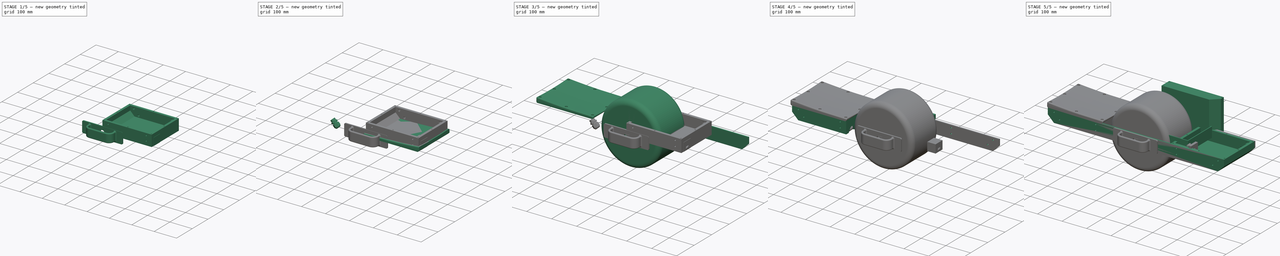
[diagram: build sequence overview — one tinted view per stage of 5, left to right]
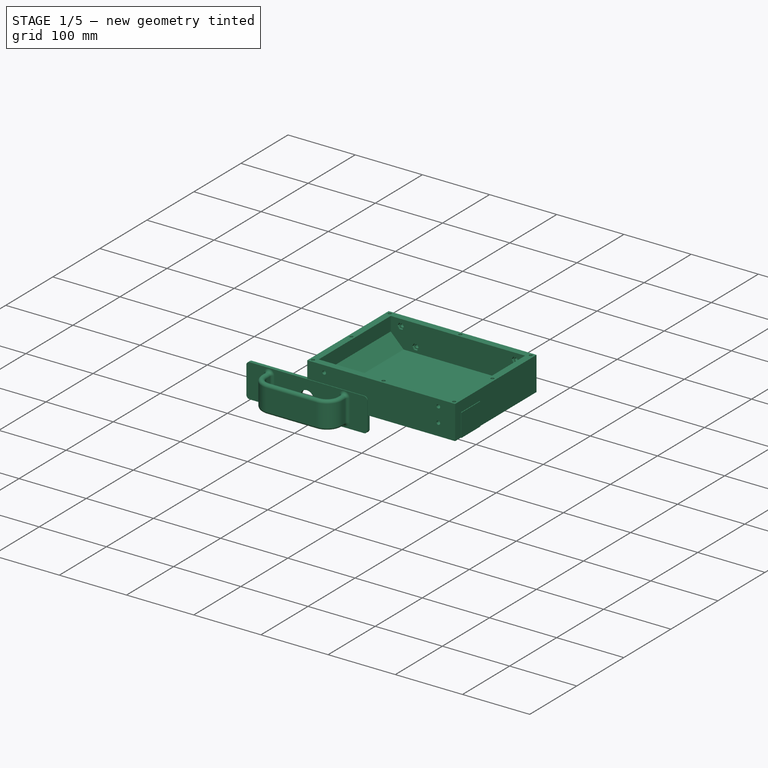
[diagram: stage 1 of 5 — iso view after this stage's code; geometry added in this stage tinted green]
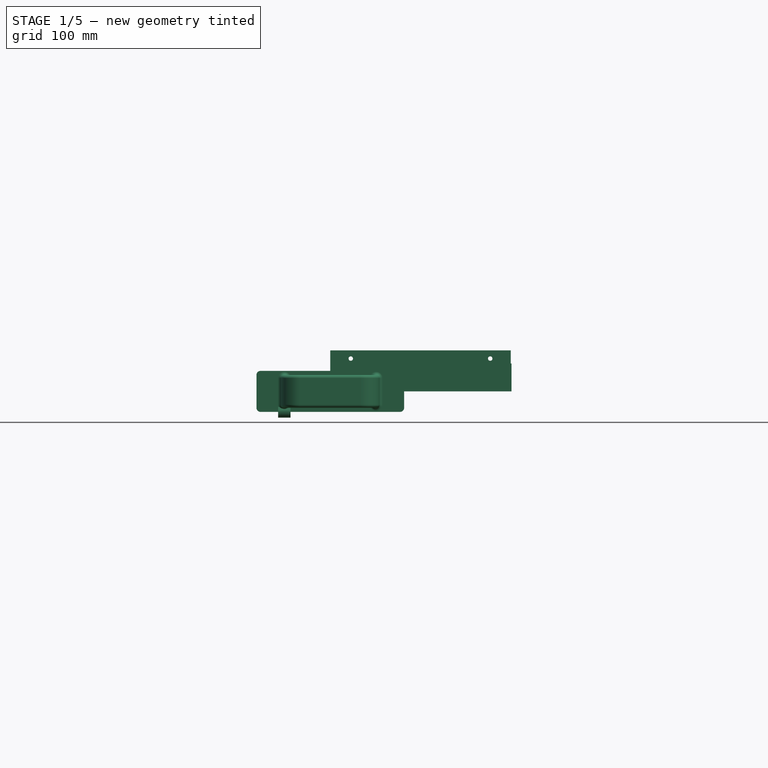
[diagram: stage 1 of 5 — front view after this stage's code; geometry added in this stage tinted green]
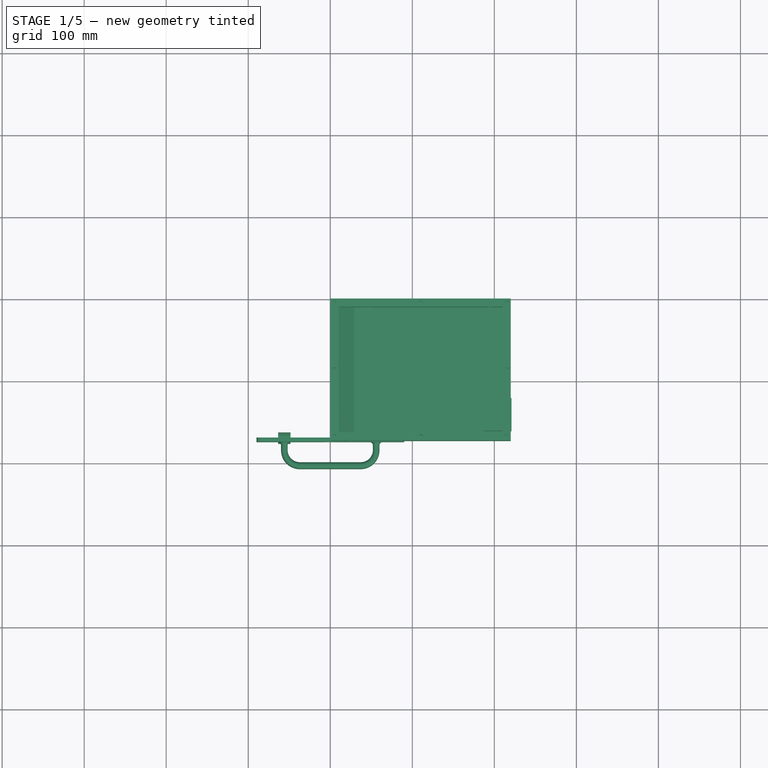
[diagram: stage 1 of 5 — top view after this stage's code; geometry added in this stage tinted green]
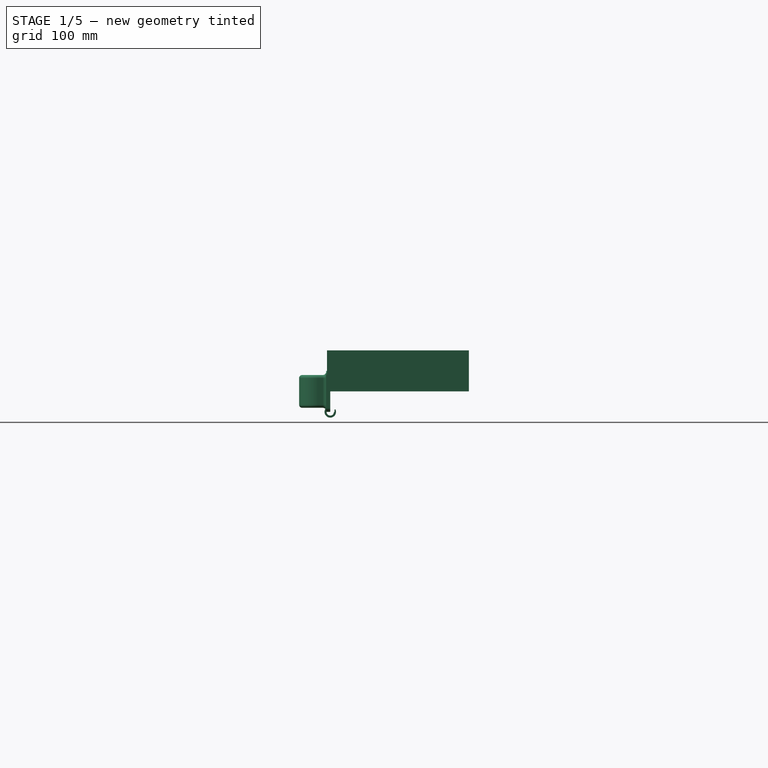
[diagram: stage 1 of 5 — right view after this stage's code; geometry added in this stage tinted green]
FCSTD DOCUMENT  (FreeCAD 0.17R13541 (Git))
Label: onewheel
License: All rights reserved
LicenseURL: http://en.wikipedia.org/wiki/All_rights_reserved
objects: Sketcher::SketchObject×61, PartDesign::Plane×22, PartDesign::Pad×20, PartDesign::Pocket×20, Part::FeaturePython×14, PartDesign::Body×13, Spreadsheet::Sheet×8, PartDesign::Fillet×8, Part::Feature×4, Part::MultiCommon×4, Part::Box×3, Part::Extrusion×3, App::DocumentObjectGroup×2, Part::Mirroring×2, PartDesign::AdditivePipe×1, PartDesign::Chamfer×1, PartDesign::Groove×1, PartDesign::Revolution×1, App::FeaturePython×1
note: 221 computed .brp shape members not serialized (recipe doc carries the construction recipe); baked Part::Feature solids carry a one-line shape summary decoded from their .brp

FEATURE [Sketcher::SketchObject] Sketch042  label="Dimensions"
  MapMode = 5
  Support = -> [XY_Plane010]
  expr: Constraints[10] = RearFrontBoxes.Depth
  expr: Constraints[9] = RearFrontBoxes.Length
  sketch-geometry (4):
    g0: LineSegment StartX=0 StartY=0 StartZ=0 EndX=220 EndY=0 EndZ=0
    g1: LineSegment StartX=220 StartY=0 StartZ=0 EndX=220 EndY=-173 EndZ=0
    g2: LineSegment StartX=220 StartY=-173 StartZ=0 EndX=0 EndY=-173 EndZ=0
    g3: LineSegment StartX=0 StartY=-173 StartZ=0 EndX=0 EndY=0 EndZ=0
  constraints (11):
    c: Coincident(g0,g1)
    c: Coincident(g1,g2)
    c: Coincident(g2,g3)
    c: Coincident(g3,g0)
    c: Horizontal(g0)
    c: Horizontal(g2)
    c: Vertical(g1)
    c: Vertical(g3)
    c: Coincident(g0,g-1)
    c: Distance(g2) = 220
    c: Distance(g1) = 173
FEATURE [Sketcher::SketchObject] Sketch043  label="VerticalDimensions"
  ExternalGeometry = -> [Sketch042]
  MapMode = 5
  Placement = pos=(0,0,0) rot=(1,0,0;1.5708rad)
  Support = -> [XZ_Plane010]
  expr: Constraints[9] = Profiles.ProfileWidth
  sketch-geometry (4):
    g0: LineSegment StartX=0 StartY=0 StartZ=0 EndX=220 EndY=0 EndZ=0
    g1: LineSegment StartX=220 StartY=0 StartZ=0 EndX=220 EndY=50 EndZ=0
    g2: LineSegment StartX=220 StartY=50 StartZ=0 EndX=0 EndY=50 EndZ=0
    g3: LineSegment StartX=0 StartY=50 StartZ=0 EndX=0 EndY=0 EndZ=0
  constraints (10):
    c: Coincident(g0,g1)
    c: Coincident(g1,g2)
    c: Coincident(g2,g3)
    c: Coincident(g3,g0)
    c: Horizontal(g2)
    c: Vertical(g1)
    c: Vertical(g3)
    c: Coincident(g0,g-1)
    c: Coincident(g0,g-3)
    c: Distance(g1) = 50
FEATURE [Sketcher::SketchObject] Sketch044
  ExternalGeometry = -> [Sketch043]
  MapMode = 5
  Placement = pos=(0,0,0) rot=(1,0,0;1.5708rad)
  Support = -> [XZ_Plane010]
  expr: Constraints[12] = RearFrontBoxes.BoxChamfer
  sketch-geometry (5):
    g0: LineSegment StartX=0 StartY=50 StartZ=0 EndX=220 EndY=50 EndZ=0
    g1: LineSegment StartX=220 StartY=50 StartZ=0 EndX=220 EndY=0 EndZ=0
    g2: LineSegment StartX=220 StartY=0 StartZ=0 EndX=25 EndY=0 EndZ=0
    g3: LineSegment StartX=0 StartY=25 StartZ=0 EndX=0 EndY=50 EndZ=0
    g4: LineSegment StartX=25 StartY=0 StartZ=0 EndX=0 EndY=25 EndZ=0
  constraints (14):
    c: Coincident(g0,g1)
    c: Coincident(g3,g0)
    c: Horizontal(g0)
    c: Horizontal(g2)
    c: Vertical(g1)
    c: Vertical(g3)
    c: Coincident(g0,g-3)
    c: Coincident(g0,g-4)
    c: Coincident(g2,g1)
    c: Angle(g4,g-1) = 0.785398
    c: Coincident(g2,g4)
    c: Coincident(g3,g4)
    c: Distance(g2,g3) = 25
    c: Coincident(g1,g-4)
FEATURE [PartDesign::Pad] Pad011
  Length = 173
  Length2 = 100
  Placement = pos=(0,0,0) rot=(1,0,0;1.5708rad)
  Profile = -> Sketch044
  Type = 0
  expr: Length = RearFrontBoxes.Depth
FEATURE [PartDesign::Plane] DatumPlane014
  AttachmentOffset = pos=(0,0,10) rot=(0,0,1;0rad)
  MapMode = 5
  Placement = pos=(0,-10,-1e-12) rot=(1,0,0;1.5708rad)
  Support = -> [XZ_Plane010]
  expr: AttachmentOffset.Base.z = RearFrontBoxes.SideThickness
FEATURE [Sketcher::SketchObject] Sketch045
  ExternalGeometry = -> [Sketch044,Sketch043]
  MapMode = 5
  Placement = pos=(0,-10,-1e-12) rot=(1,0,0;1.5708rad)
  Support = -> [DatumPlane014]
  expr: Constraints[13] = RearFrontBoxes.SideThickness
  expr: Constraints[12] = RearFrontBoxes.SideThickness
  expr: Constraints[11] = RearFrontBoxes.SideThickness
  expr: Constraints[10] = RearFrontBoxes.SideThickness
  sketch-geometry (5):
    g0: LineSegment StartX=210 StartY=50 StartZ=0 EndX=10 EndY=50 EndZ=0
    g1: LineSegment StartX=10 StartY=50 StartZ=0 EndX=10 EndY=29.1421 EndZ=0
    g2: LineSegment StartX=29.1421 StartY=10 StartZ=0 EndX=210 EndY=10 EndZ=0
    g3: LineSegment StartX=210 StartY=10 StartZ=0 EndX=210 EndY=50 EndZ=0
    g4: LineSegment StartX=29.1421 StartY=10 StartZ=0 EndX=10 EndY=29.1421 EndZ=0
  constraints (15):
    c: Coincident(g0,g1)
    c: Coincident(g2,g3)
    c: Coincident(g3,g0)
    c: Horizontal(g0)
    c: Horizontal(g2)
    c: Vertical(g1)
    c: Vertical(g3)
    c: Coincident(g2,g4)
    c: Coincident(g1,g4)
    c: Parallel(g4,g-3)
    c: Distance(g2,g-5) = 10
    c: Distance(g1,g-2) = 10
    c: Distance(g2,g-1) = 10
    c: Distance(g2,g-3) = 10
    c: PointOnObject(g0,g-4)
FEATURE [PartDesign::Pocket] Pocket014  label="Pocket015"
  BaseFeature = -> Pad011
  Length = 153
  Length2 = 100
  Placement = pos=(0,0,0) rot=(1,0,0;1.5708rad)
  Profile = -> Sketch045
  Reversed = true
  Type = 0
  expr: Length = RearFrontBoxes.Depth - 2 * RearFrontBoxes.SideThickness
FEATURE [PartDesign::Plane] DatumPlane015
  AttachmentOffset = pos=(0,0,10) rot=(0,0,1;0rad)
  MapMode = 5
  Placement = pos=(0,-10,-1e-12) rot=(1,0,0;1.5708rad)
  Support = -> [XZ_Plane010]
  expr: AttachmentOffset.Base.z = RearFrontBoxes.SideThickness
FEATURE [Sketcher::SketchObject] Sketch046
  ExternalGeometry = -> [Sketch043,Sketch044]
  MapMode = 5
  Placement = pos=(0,0,0) rot=(1,0,0;1.5708rad)
  Support = -> [XZ_Plane010]
  expr: Constraints[26] = RearFrontBoxes.NutInset
  expr: Constraints[28] = RearFrontBoxes.NutInsetSide
  expr: Constraints[25] = RearFrontBoxes.BoxChamfer
  expr: Constraints[24] = RearFrontBoxes.NutInset
  expr: Constraints[23] = RearFrontBoxes.NutInset
  expr: Constraints[19] = RearFrontBoxes.SideThickness
  expr: Constraints[18] = Profiles.ProfileWidth - RearFrontBoxes.BatteryHeightRoom
  expr: Constraints[0] = RearFrontBoxes.ScrewHoleDiameter / 2
  expr: Constraints[27] = RearFrontBoxes.NutInset
  expr: Constraints[22] = RearFrontBoxes.NutInsetSide
  expr: Constraints[17] = RearFrontBoxes.SideThickness
  sketch-geometry (10):
    g0: Circle CenterX=25 CenterY=40 CenterZ=0 NormalX=0 NormalY=0 NormalZ=1 AngleXU=0 Radius=2.7
    g1: Circle CenterX=47 CenterY=18 CenterZ=0 NormalX=0 NormalY=0 NormalZ=1 AngleXU=0 Radius=2.7
    g2: Circle CenterX=195 CenterY=18 CenterZ=0 NormalX=0 NormalY=0 NormalZ=1 AngleXU=0 Radius=2.7
    g3: Circle CenterX=195 CenterY=40 CenterZ=0 NormalX=0 NormalY=0 NormalZ=1 AngleXU=0 Radius=2.7
    g4: LineSegment [constr] StartX=25 StartY=40 StartZ=0 EndX=47 EndY=18 EndZ=0
    g5: LineSegment [constr] StartX=195 StartY=18 StartZ=0 EndX=195 EndY=40 EndZ=0
    g6: LineSegment [constr] StartX=10 StartY=50 StartZ=0 EndX=10 EndY=33 EndZ=0
    g7: LineSegment [constr] StartX=10 StartY=33 StartZ=0 EndX=35 EndY=8 EndZ=0
    g8: LineSegment [constr] StartX=35 StartY=8 StartZ=0 EndX=210 EndY=8 EndZ=0
    g9: LineSegment [constr] StartX=210 StartY=8 StartZ=0 EndX=210 EndY=50 EndZ=0
  constraints (29):
    c: Radius(g0) = 2.7
    c: Equal(g0,g1)
    c: Equal(g0,g2)
    c: Equal(g0,g3)
    c: Coincident(g4,g0)
    c: Coincident(g4,g1)
    c: Coincident(g5,g2)
    c: Coincident(g5,g3)
    c: Vertical(g5)
    c: PointOnObject(g6,g-4)
    c: Vertical(g6)
    c: Coincident(g6,g7)
    c: Coincident(g7,g8)
    c: Horizontal(g8)
    c: Coincident(g8,g9)
    c: PointOnObject(g9,g-4)
    c: Vertical(g9)
    c: Distance(g6,g-2) = 10
    c: Distance(g7,g-1) = 8
    c: Distance(g9,g-3) = 10
    c: Parallel(g-5,g7)
    c: Parallel(g-5,g4)
    c: Distance(g0,g6) = 15
    c: Distance(g0,g-4) = 10
    c: Distance(g1,g8) = 10
    c: DistanceX(g6,g7) = 25
    c: Distance(g3,g-4) = 10
    c: Distance(g2,g8) = 10
    c: Distance(g3,g9) = 15
FEATURE [PartDesign::Pocket] Pocket015  label="Pocket016"
  BaseFeature = -> Pocket014
  Length = 5
  Length2 = 100
  Placement = pos=(0,0,0) rot=(1,0,0;1.5708rad)
  Profile = -> Sketch046
  Reversed = true
  Type = 1
FEATURE [Sketcher::SketchObject] Sketch047
  ExternalGeometry = -> [Sketch046]
  MapMode = 5
  Placement = pos=(0,-10,-1e-12) rot=(1,0,0;1.5708rad)
  Support = -> [DatumPlane014]
  expr: Constraints[79] = RearFrontBoxes.NutSideMediumfit
  expr: Constraints[78] = RearFrontBoxes.NutSideMediumfit
  expr: Constraints[77] = RearFrontBoxes.NutSideMediumfit
  expr: Constraints[76] = RearFrontBoxes.NutSideMediumfit
  sketch-geometry (28):
    g0: LineSegment StartX=51.6765 StartY=18 StartZ=0 EndX=49.3383 EndY=22.05 EndZ=0
    g1: LineSegment StartX=49.3383 StartY=22.05 StartZ=0 EndX=44.6617 EndY=22.05 EndZ=0
    g2: LineSegment StartX=44.6617 StartY=22.05 StartZ=0 EndX=42.3235 EndY=18 EndZ=0
    g3: LineSegment StartX=42.3235 StartY=18 StartZ=0 EndX=44.6617 EndY=13.95 EndZ=0
    g4: LineSegment StartX=44.6617 StartY=13.95 StartZ=0 EndX=49.3383 EndY=13.95 EndZ=0
    g5: LineSegment StartX=49.3383 StartY=13.95 StartZ=0 EndX=51.6765 EndY=18 EndZ=0
    g6: Circle [constr] CenterX=47 CenterY=18 CenterZ=0 NormalX=0 NormalY=0 NormalZ=1 AngleXU=0 Radius=4.67654
    g7: LineSegment StartX=29.6765 StartY=40 StartZ=0 EndX=27.3383 EndY=44.05 EndZ=0
    g8: LineSegment StartX=27.3383 StartY=44.05 StartZ=0 EndX=22.6617 EndY=44.05 EndZ=0
    g9: LineSegment StartX=22.6617 StartY=44.05 StartZ=0 EndX=20.3235 EndY=40 EndZ=0
    g10: LineSegment StartX=20.3235 StartY=40 StartZ=0 EndX=22.6617 EndY=35.95 EndZ=0
    g11: LineSegment StartX=22.6617 StartY=35.95 StartZ=0 EndX=27.3383 EndY=35.95 EndZ=0
    g12: LineSegment StartX=27.3383 StartY=35.95 StartZ=0 EndX=29.6765 EndY=40 EndZ=0
    g13: Circle [constr] CenterX=25 CenterY=40 CenterZ=0 NormalX=0 NormalY=0 NormalZ=1 AngleXU=0 Radius=4.67654
    g14: LineSegment StartX=199.677 StartY=40 StartZ=0 EndX=197.338 EndY=44.05 EndZ=0
    g15: LineSegment StartX=197.338 StartY=44.05 StartZ=0 EndX=192.662 EndY=44.05 EndZ=0
    g16: LineSegment StartX=192.662 StartY=44.05 StartZ=0 EndX=190.323 EndY=40 EndZ=0
    g17: LineSegment StartX=190.323 StartY=40 StartZ=0 EndX=192.662 EndY=35.95 EndZ=0
    g18: LineSegment StartX=192.662 StartY=35.95 StartZ=0 EndX=197.338 EndY=35.95 EndZ=0
    g19: LineSegment StartX=197.338 StartY=35.95 StartZ=0 EndX=199.677 EndY=40 EndZ=0
    g20: Circle [constr] CenterX=195 CenterY=40 CenterZ=0 NormalX=0 NormalY=0 NormalZ=1 AngleXU=0 Radius=4.67654
    g21: LineSegment StartX=199.677 StartY=18 StartZ=0 EndX=197.338 EndY=22.05 EndZ=0
    g22: LineSegment StartX=197.338 StartY=22.05 StartZ=0 EndX=192.662 EndY=22.05 EndZ=0
    g23: LineSegment StartX=192.662 StartY=22.05 StartZ=0 EndX=190.323 EndY=18 EndZ=0
    g24: LineSegment StartX=190.323 StartY=18 StartZ=0 EndX=192.662 EndY=13.95 EndZ=0
    g25: LineSegment StartX=192.662 StartY=13.95 StartZ=0 EndX=197.338 EndY=13.95 EndZ=0
    g26: LineSegment StartX=197.338 StartY=13.95 StartZ=0 EndX=199.677 EndY=18 EndZ=0
    g27: Circle [constr] CenterX=195 CenterY=18 CenterZ=0 NormalX=0 NormalY=0 NormalZ=1 AngleXU=0 Radius=4.67654
  constraints (64):
    c: Coincident(g0,g1)
    c: Coincident(g1,g2)
    c: Coincident(g2,g3)
    c: Coincident(g3,g4)
    c: Coincident(g4,g5)
    c: Coincident(g5,g0)
    c: Equal(g0, g1-g5) x5
    c: PointOnObject(g0,g6)
    c: PointOnObject(g1,g6)
    c: PointOnObject(g2,g6)
    c: PointOnObject(g3,g6)
    c: PointOnObject(g4,g6)
    c: PointOnObject(g5,g6)
    c: Coincident(g6,g-3)
    c: Coincident(g7,g8)
    c: Coincident(g8,g9)
    c: Coincident(g9,g10)
    c: Coincident(g10,g11)
    c: Coincident(g11,g12)
    c: Coincident(g12,g7)
    c: Equal(g7, g8-g12) x5
    c: PointOnObject(g7,g13)
    c: PointOnObject(g8,g13)
    c: PointOnObject(g9,g13)
    c: PointOnObject(g10,g13)
    c: PointOnObject(g11,g13)
    c: PointOnObject(g12,g13)
    c: Coincident(g13,g-4)
    c: Coincident(g14,g15)
    c: Coincident(g15,g16)
    c: Coincident(g16,g17)
    c: Coincident(g17,g18)
    c: Coincident(g18,g19)
    c: Coincident(g19,g14)
    c: Equal(g14, g15-g19) x5
    c: PointOnObject(g14,g20)
    c: PointOnObject(g15,g20)
    c: PointOnObject(g16,g20)
    c: PointOnObject(g17,g20)
    c: PointOnObject(g18,g20)
    c: PointOnObject(g19,g20)
    c: Coincident(g20,g-5)
    c: Coincident(g21,g22)
    c: Coincident(g22,g23)
    c: Coincident(g23,g24)
    c: Coincident(g24,g25)
    c: Coincident(g25,g26)
    c: Coincident(g26,g21)
    c: Equal(g21, g22-g26) x5
    c: PointOnObject(g21,g27)
    c: PointOnObject(g22,g27)
    c: PointOnObject(g23,g27)
    c: PointOnObject(g24,g27)
    c: PointOnObject(g25,g27)
    c: PointOnObject(g26,g27)
    c: Coincident(g27,g-6)
    c: Horizontal(g4)
    c: Horizontal(g25)
    c: Horizontal(g18)
    c: Horizontal(g11)
    c: Distance(g11,g9) = 8.1
    c: Distance(g4,g2) = 8.1
    c: Distance(g18,g16) = 8.1
    c: Distance(g25,g23) = 8.1
FEATURE [PartDesign::Pocket] Pocket016  label="Pocket017"
  BaseFeature = -> Pocket015
  Length = 3
  Length2 = 156
  Placement = pos=(0,0,0) rot=(1,0,0;1.5708rad)
  Profile = -> Sketch047
  Type = 4
  expr: Length2 = RearFrontBoxes.Depth - 2 * RearFrontBoxes.SideThickness + RearFrontBoxes.SideNutInset
  expr: Length = RearFrontBoxes.SideNutInset
FEATURE [PartDesign::Plane] DatumPlane016
  AttachmentOffset = pos=(0,0,50) rot=(0,0,1;0rad)
  MapMode = 5
  Placement = pos=(0,0,50) rot=(0,0,1;0rad)
  Support = -> [XY_Plane010]
  expr: AttachmentOffset.Base.z = Profiles.ProfileWidth
FEATURE [Sketcher::SketchObject] Sketch048
  ExternalGeometry = -> [Sketch042]
  MapMode = 5
  Placement = pos=(0,0,50) rot=(0,0,1;0rad)
  Support = -> [DatumPlane016]
  expr: Constraints[54] = RearFrontBoxes.ScrewTight / 2
  expr: Constraints[11] = RearFrontBoxes.SideThickness
  expr: Constraints[10] = RearFrontBoxes.SideThickness
  expr: Constraints[9] = RearFrontBoxes.SideThickness
  expr: Constraints[8] = RearFrontBoxes.SideThickness
  sketch-geometry (24):
    g0: LineSegment [constr] StartX=10 StartY=-10 StartZ=0 EndX=210 EndY=-10 EndZ=0
    g1: LineSegment [constr] StartX=210 StartY=-10 StartZ=0 EndX=210 EndY=-163 EndZ=0
    g2: LineSegment [constr] StartX=210 StartY=-163 StartZ=0 EndX=10 EndY=-163 EndZ=0
    g3: LineSegment [constr] StartX=10 StartY=-163 StartZ=0 EndX=10 EndY=-10 EndZ=0
    g4: Circle [constr] CenterX=110 CenterY=-5 CenterZ=0 NormalX=0 NormalY=0 NormalZ=1 AngleXU=0 Radius=5
    g5: Circle [constr] CenterX=215 CenterY=-86.5 CenterZ=0 NormalX=0 NormalY=0 NormalZ=1 AngleXU=0 Radius=5
    g6: Circle [constr] CenterX=110 CenterY=-168 CenterZ=0 NormalX=0 NormalY=0 NormalZ=1 AngleXU=0 Radius=5
    g7: Circle [constr] CenterX=5 CenterY=-86.5 CenterZ=0 NormalX=0 NormalY=0 NormalZ=1 AngleXU=0 Radius=5
    g8: LineSegment [constr] StartX=5 StartY=-5 StartZ=0 EndX=110 EndY=-5 EndZ=0
    g9: LineSegment [constr] StartX=110 StartY=-5 StartZ=0 EndX=215 EndY=-5 EndZ=0
    g10: LineSegment [constr] StartX=215 StartY=-5 StartZ=0 EndX=215 EndY=-86.5 EndZ=0
    g11: LineSegment [constr] StartX=215 StartY=-86.5 StartZ=0 EndX=215 EndY=-168 EndZ=0
    g12: LineSegment [constr] StartX=215 StartY=-168 StartZ=0 EndX=110 EndY=-168 EndZ=0
    g13: LineSegment [constr] StartX=110 StartY=-168 StartZ=0 EndX=5 EndY=-168 EndZ=0
    g14: LineSegment [constr] StartX=5 StartY=-168 StartZ=0 EndX=5 EndY=-86.5 EndZ=0
    g15: LineSegment [constr] StartX=5 StartY=-86.5 StartZ=0 EndX=5 EndY=-5 EndZ=0
    g16: Circle CenterX=5 CenterY=-5 CenterZ=0 NormalX=0 NormalY=0 NormalZ=1 AngleXU=0 Radius=2.45
    g17: Circle CenterX=110 CenterY=-5 CenterZ=0 NormalX=0 NormalY=0 NormalZ=1 AngleXU=0 Radius=2.45
    g18: Circle CenterX=215 CenterY=-5 CenterZ=0 NormalX=0 NormalY=0 NormalZ=1 AngleXU=0 Radius=2.45
    g19: Circle CenterX=215 CenterY=-86.5 CenterZ=0 NormalX=0 NormalY=0 NormalZ=1 AngleXU=0 Radius=2.45
    g20: Circle CenterX=215 CenterY=-168 CenterZ=0 NormalX=0 NormalY=0 NormalZ=1 AngleXU=0 Radius=2.45
    g21: Circle CenterX=110 CenterY=-168 CenterZ=0 NormalX=0 NormalY=0 NormalZ=1 AngleXU=0 Radius=2.45
    g22: Circle CenterX=5 CenterY=-168 CenterZ=0 NormalX=0 NormalY=0 NormalZ=1 AngleXU=0 Radius=2.45
    g23: Circle CenterX=5 CenterY=-86.5 CenterZ=0 NormalX=0 NormalY=0 NormalZ=1 AngleXU=0 Radius=2.45
  constraints (56):
    c: Coincident(g0,g1)
    c: Coincident(g1,g2)
    c: Coincident(g2,g3)
    c: Coincident(g3,g0)
    c: Horizontal(g0)
    c: Horizontal(g2)
    c: Vertical(g1)
    c: Vertical(g3)
    c: Distance(g1,g-5) = 10
    c: Distance(g1,g-4) = 10
    c: Distance(g0,g-3) = 10
    c: Distance(g0,g-6) = 10
    c: Tangent(g7,g3)
    c: Tangent(g7,g-6)
    c: Tangent(g4,g0)
    c: Tangent(g4,g-3)
    c: Tangent(g5,g1)
    c: Tangent(g5,g-4)
    c: Tangent(g6,g2)
    c: Tangent(g6,g-5)
    c: Coincident(g8,g4)
    c: Horizontal(g8)
    c: Coincident(g8,g9)
    c: Horizontal(g9)
    c: Coincident(g9,g10)
    c: Coincident(g10,g5)
    c: Vertical(g10)
    c: Coincident(g10,g11)
    c: Vertical(g11)
    c: Coincident(g11,g12)
    c: Coincident(g12,g6)
    c: Horizontal(g12)
    c: Coincident(g12,g13)
    c: Horizontal(g13)
    c: Coincident(g13,g14)
    c: Coincident(g14,g7)
    c: Vertical(g14)
    c: Coincident(g14,g15)
    c: Coincident(g15,g8)
    c: Vertical(g15)
    c: Equal(g15,g14)
    c: Equal(g14,g10)
    c: Equal(g10,g11)
    c: Equal(g12,g13)
    c: Equal(g13,g8)
    c: Equal(g8,g9)
    c: Coincident(g16,g8)
    c: Coincident(g17,g4)
    c: Coincident(g18,g9)
    c: Coincident(g19,g5)
    c: Coincident(g20,g11)
    c: Coincident(g21,g6)
    c: Coincident(g22,g13)
    c: Coincident(g23,g7)
    c: Radius(g16) = 2.45
    c: Equal(g16, g17-g23) x7
FEATURE [PartDesign::Pocket] Pocket017  label="Pocket018"
  BaseFeature = -> Pocket016
  Length = 22
  Length2 = 100
  Placement = pos=(0,0,0) rot=(1,0,0;1.5708rad)
  Profile = -> Sketch048
  Type = 0
  expr: Length = RearFrontBoxes.ScrewHoleLength
FEATURE [PartDesign::Plane] DatumPlane017
  MapMode = 6
  Placement = pos=(220,-173,0) rot=(0,0,1;3.14159rad)
  Support = -> [XY_Plane010,Sketch042]
FEATURE [Sketcher::SketchObject] Sketch050
  ExternalGeometry = -> [Sketch042]
  MapMode = 5
  Placement = pos=(220,-173,0) rot=(1,0,0;3.14159rad)
  Support = -> [DatumPlane017]
  expr: Constraints[7] = CableGland.Diameter
  expr: Constraints[6] = RearFrontBoxes.SideThickness
  sketch-geometry (5):
    g0: ArcOfCircle CenterX=0 CenterY=-31.8 CenterZ=0 NormalX=0 NormalY=0 NormalZ=1 AngleXU=0 Radius=18.3 StartAngle=1.5708 EndAngle=3.14159
    g1: LineSegment StartX=-2e-12 StartY=-13.5 StartZ=0 EndX=0 EndY=-31.8 EndZ=0
    g2: LineSegment [constr] StartX=0 StartY=-10 StartZ=0 EndX=-18.1243 EndY=-10 EndZ=0
    g3: ArcOfCircle CenterX=0 CenterY=-31.8 CenterZ=0 NormalX=0 NormalY=0 NormalZ=1 AngleXU=0 Radius=18.3 StartAngle=3.14159 EndAngle=4.71239
    g4: LineSegment StartX=0 StartY=-31.8 StartZ=0 EndX=6e-12 EndY=-50.1 EndZ=0
  constraints (16):
    c: PointOnObject(g1,g-4)
    c: PointOnObject(g0,g-4)
    c: PointOnObject(g0,g-4)
    c: Coincident(g1,g0)
    c: PointOnObject(g2,g-4)
    c: Horizontal(g2)
    c: Distance(g2,g-3) = 10
    c: Distance(g0,g1) = 18.3
    c: Coincident(g3,g0)
    c: Coincident(g3,g0)
    c: DistanceY(g0,g0) = 0
    c: Coincident(g1,g0)
    c: Coincident(g4,g0)
    c: Coincident(g4,g3)
    c: PointOnObject(g3,g-4)
    c: Distance(g0,g-3) = 13.5
FEATURE [PartDesign::Plane] DatumPlane018
  AttachmentOffset = pos=(0,0,0) rot=(0,0,1;0.785398rad)
  MapMode = 7
  Placement = pos=(220,-141.2,0) rot=(0.281085,0.678598,0.678598;3.68962rad)
  Support = -> [Sketch042,Sketch050]
FEATURE [Sketcher::SketchObject] Sketch051
  MapMode = 5
  Placement = pos=(220,-141.2,0) rot=(0.281085,0.678598,0.678598;3.68962rad)
  Support = -> [DatumPlane018]
  expr: Constraints[14] = sqrt(2) * RearFrontBoxes.SideThickness + RearFrontBoxes.CableGlandMountDepth
  expr: Constraints[6] = RearFrontBoxes.CableGlandHoleDiameter / 2
  sketch-geometry (8):
    g0: LineSegment StartX=0 StartY=0 StartZ=0 EndX=0 EndY=17.1054 EndZ=0
    g1: LineSegment StartX=23.5414 StartY=9.6 StartZ=0 EndX=34.4605 EndY=9.6 EndZ=0
    g2: LineSegment StartX=34.4605 StartY=9.6 StartZ=0 EndX=34.4605 EndY=0 EndZ=0
    g3: LineSegment StartX=34.4605 StartY=0 StartZ=0 EndX=0 EndY=0 EndZ=0
    g4: LineSegment StartX=23.5414 StartY=9.6 StartZ=0 EndX=23.5414 EndY=13.0248 EndZ=0
    g5: LineSegment StartX=23.5414 StartY=13.0248 StartZ=0 EndX=5.99197 EndY=13.0248 EndZ=0
    g6: LineSegment StartX=5.99197 StartY=13.0248 StartZ=0 EndX=0 EndY=17.1054 EndZ=0
    g7: LineSegment [constr] StartX=30.1421 StartY=10.436 StartZ=0 EndX=30.1421 EndY=15.7983 EndZ=0
  constraints (19):
    c: Vertical(g0)
    c: Horizontal(g1)
    c: Coincident(g1,g2)
    c: PointOnObject(g2,g-1)
    c: Vertical(g2)
    c: Coincident(g2,g3)
    c: Distance(g2) = 9.6
    c: Coincident(g3,g-1)
    c: Coincident(g0,g-1)
    c: Coincident(g4,g1)
    c: Horizontal(g5)
    c: Coincident(g5,g4)
    c: Coincident(g5,g6)
    c: Vertical(g7)
    c: Distance(g7,g-2) = 30.1421
    c: Vertical(g4)
    c: Coincident(g6,g0)
    c: DistanceX(g5) = 5.99197
    c: DistanceY(g5) = 13.0248
FEATURE [PartDesign::Plane] DatumPlane019
  AttachmentOffset = pos=(10,0,10) rot=(0,1,0;0.785398rad)
  MapMode = 6
  Placement = pos=(210,-141.2,10) rot=(-0.382683,0,0.92388;3.14159rad)
  Support = -> [XY_Plane010,Sketch050]
  expr: AttachmentOffset.Base.z = RearFrontBoxes.SideThickness
  expr: AttachmentOffset.Base.x = RearFrontBoxes.SideThickness
FEATURE [Sketcher::SketchObject] Sketch052
  MapMode = 5
  Placement = pos=(210,-141.2,10) rot=(-0.382683,0,0.92388;3.14159rad)
  Support = -> [DatumPlane019]
  sketch-geometry (4):
    g0: LineSegment StartX=12.5 StartY=15 StartZ=0 EndX=-12.5 EndY=15 EndZ=0
    g1: LineSegment StartX=-12.5 StartY=15 StartZ=0 EndX=-12.5 EndY=-15 EndZ=0
    g2: LineSegment StartX=-12.5 StartY=-15 StartZ=0 EndX=12.5 EndY=-15 EndZ=0
    g3: LineSegment StartX=12.5 StartY=-15 StartZ=0 EndX=12.5 EndY=15 EndZ=0
  constraints (11):
    c: Coincident(g0,g1)
    c: Coincident(g1,g2)
    c: Coincident(g2,g3)
    c: Coincident(g3,g0)
    c: Horizontal(g0)
    c: Horizontal(g2)
    c: Vertical(g1)
    c: Vertical(g3)
    c: Distance(g3) = 30
    c: Symmetric(g0,g1,g-1)
    c: Distance(g2) = 25
FEATURE [PartDesign::Pad] Pad012
  BaseFeature = -> Pocket017
  Length = 16
  Length2 = 100
  Placement = pos=(0,0,0) rot=(1,0,0;1.5708rad)
  Profile = -> Sketch052
  Type = 0
  expr: Length = RearFrontBoxes.CableGlandMountDepth
FEATURE [PartDesign::Groove] Groove001
  Angle = 360
  Axis = (-0.707107,0,0.707107)
  Base = (220,-141.2,0)
  BaseFeature = -> Pad012
  Placement = pos=(0,0,0) rot=(1,0,0;1.5708rad)
  Profile = -> Sketch051
  ReferenceAxis = -> Sketch051 [H_Axis]
  Reversed = true
FEATURE [Part::Box] Box002  label="Cube002"
  AttacherType = Attacher::AttachEngine3D
  Height = 34
  Length = 34
  Placement = pos=(187,-161,0) rot=(0,0,1;0rad)
  Width = 40
FEATURE [PartDesign::Pocket] Pocket020  label="Pocket022"
  BaseFeature = -> Groove001
  Length = 5
  Length2 = 100
  Placement = pos=(0,0,0) rot=(1,0,0;1.5708rad)
  Profile = -> Sketch060
  Type = 1
FEATURE [App::FeaturePython] circularEdgeConstraint01  # a2plus constraint (typed FeaturePython)
  Object1 = Pocket020
  Object2 = mirror001
  SubElement1 = Edge269
  SubElement2 = Edge14
  Type = circularEdge
  directionConstraint = 0
  lockRotation = false
  offset = 0
FEATURE [Sketcher::SketchObject] Sketch061  label="Base001"
  MapMode = 5
  Placement = pos=(0,0,0) rot=(1,0,0;1.5708rad)
  Support = -> [XZ_Plane012]
  expr: Constraints[10] = Handle.BaseWidth
  expr: Constraints[9] = Profiles.ProfileWidth
  sketch-geometry (4):
    g0: LineSegment StartX=-90 StartY=-25 StartZ=0 EndX=90 EndY=-25 EndZ=0
    g1: LineSegment StartX=90 StartY=-25 StartZ=0 EndX=90 EndY=25 EndZ=0
    g2: LineSegment StartX=90 StartY=25 StartZ=0 EndX=-90 EndY=25 EndZ=0
    g3: LineSegment StartX=-90 StartY=25 StartZ=0 EndX=-90 EndY=-25 EndZ=0
  constraints (11):
    c: Coincident(g0,g1)
    c: Coincident(g1,g2)
    c: Coincident(g2,g3)
    c: Coincident(g3,g0)
    c: Horizontal(g0)
    c: Horizontal(g2)
    c: Vertical(g1)
    c: Vertical(g3)
    c: Symmetric(g0,g1,g-1)
    c: Distance(g1) = 50
    c: Distance(g2) = 180
FEATURE [Spreadsheet::Sheet] Spreadsheet008  label="Handle"
  cells = A1=#BaseWidth; B1(BaseWidth)=180; A2=#BaseDepth; B2(BaseDepth)=5; A3=#HandleRadius; B3(HandleRadius)=15; A4=#HandleLength; B4(HandleLength)=120; A5=#HandleThickness; B5(HandleThickness)=8; A6=#HandleGap; B6(HandleGap)=25; A7=#HandleWidth; B7(HandleWidth)=40
FEATURE [Sketcher::SketchObject] Sketch062
  ExternalGeometry = -> [Sketch061]
  MapMode = 5
  Placement = pos=(0,0,0) rot=(1,0,0;1.5708rad)
  Support = -> [XZ_Plane012]
  sketch-geometry (9):
    g0: LineSegment StartX=-90 StartY=-20 StartZ=0 EndX=-90 EndY=20 EndZ=0
    g1: LineSegment StartX=-85 StartY=25 StartZ=0 EndX=85 EndY=25 EndZ=0
    g2: LineSegment StartX=90 StartY=20 StartZ=0 EndX=90 EndY=-20 EndZ=0
    g3: LineSegment StartX=85 StartY=-25 StartZ=0 EndX=-85 EndY=-25 EndZ=0
    g4: ArcOfCircle CenterX=-85 CenterY=20 CenterZ=0 NormalX=0 NormalY=0 NormalZ=1 AngleXU=0 Radius=5 StartAngle=1.5708 EndAngle=3.14159
    g5: ArcOfCircle CenterX=85 CenterY=20 CenterZ=0 NormalX=0 NormalY=0 NormalZ=1 AngleXU=0 Radius=5 StartAngle=0 EndAngle=1.5708
    g6: ArcOfCircle CenterX=85 CenterY=-20 CenterZ=0 NormalX=0 NormalY=0 NormalZ=1 AngleXU=0 Radius=5 StartAngle=4.71239 EndAngle=6.28319
    g7: ArcOfCircle CenterX=-85 CenterY=-20 CenterZ=0 NormalX=0 NormalY=0 NormalZ=1 AngleXU=0 Radius=5 StartAngle=3.14159 EndAngle=4.71239
    g8: Circle CenterX=0 CenterY=0 CenterZ=0 NormalX=0 NormalY=0 NormalZ=1 AngleXU=0 Radius=10
  constraints (22):
    c: Vertical(g0)
    c: Horizontal(g1)
    c: Vertical(g2)
    c: Horizontal(g3)
    c: Tangent(g0,g4) = 1.5708
    c: Tangent(g1,g4) = 1.5708
    c: Tangent(g1,g5) = 1.5708
    c: Tangent(g2,g5) = 1.5708
    c: Tangent(g2,g6) = 1.5708
    c: Tangent(g3,g6) = 1.5708
    c: Tangent(g3,g7) = 1.5708
    c: Tangent(g0,g7) = 1.5708
    c: PointOnObject(g0,g-4)
    c: PointOnObject(g1,g-3)
    c: PointOnObject(g2,g-5)
    c: PointOnObject(g3,g-6)
    c: Radius(g6) = 5
    c: Equal(g6,g5)
    c: Equal(g6,g4)
    c: Equal(g6,g7)
    c: Coincident(g8,g-1)
    c: Radius(g8) = 10
FEATURE [PartDesign::Pad] Pad017
  Length = 5
  Length2 = 100
  Placement = pos=(0,0,0) rot=(1,0,0;1.5708rad)
  Profile = -> Sketch062
  Type = 0
  expr: Length = Handle.BaseDepth
FEATURE [Sketcher::SketchObject] Sketch063
  MapMode = 5
  Support = -> [XY_Plane012]
  expr: Constraints[26] = Handle.HandleGap
  expr: Constraints[31] = Handle.HandleLength
  expr: Constraints[25] = Handle.BaseDepth
  expr: Constraints[18] = Handle.HandleThickness
  expr: Constraints[17] = Handle.HandleRadius
  sketch-geometry (13):
    g0: LineSegment StartX=-52 StartY=-5 StartZ=0 EndX=-52 EndY=-15 EndZ=0
    g1: LineSegment StartX=-37 StartY=-30 StartZ=0 EndX=37 EndY=-30 EndZ=0
    g2: LineSegment StartX=52 StartY=-15 StartZ=0 EndX=52 EndY=-5 EndZ=0
    g3: LineSegment StartX=60 StartY=-5 StartZ=0 EndX=60 EndY=-15 EndZ=0
    g4: LineSegment StartX=37 StartY=-38 StartZ=0 EndX=-37 EndY=-38 EndZ=0
    g5: LineSegment StartX=-60 StartY=-15 StartZ=0 EndX=-60 EndY=-5 EndZ=0
    g6: ArcOfCircle CenterX=-37 CenterY=-15 CenterZ=0 NormalX=0 NormalY=0 NormalZ=1 AngleXU=0 Radius=23 StartAngle=3.14159 EndAngle=4.71239
    g7: ArcOfCircle CenterX=-37 CenterY=-15 CenterZ=0 NormalX=0 NormalY=0 NormalZ=1 AngleXU=0 Radius=15 StartAngle=3.14159 EndAngle=4.71239
    g8: ArcOfCircle CenterX=37 CenterY=-15 CenterZ=0 NormalX=0 NormalY=0 NormalZ=1 AngleXU=0 Radius=15 StartAngle=4.71239 EndAngle=6.28319
    g9: ArcOfCircle CenterX=37 CenterY=-15 CenterZ=0 NormalX=0 NormalY=0 NormalZ=1 AngleXU=0 Radius=23 StartAngle=4.71239 EndAngle=6.28319
    g10: LineSegment [constr] StartX=-60 StartY=-15 StartZ=0 EndX=60 EndY=-15 EndZ=0
    g11: LineSegment StartX=-60 StartY=-5 StartZ=0 EndX=-52 EndY=-5 EndZ=0
    g12: LineSegment StartX=52 StartY=-5 StartZ=0 EndX=60 EndY=-5 EndZ=0
  constraints (32):
    c: Vertical(g0)
    c: Vertical(g2)
    c: Tangent(g5,g6) = 1.5708
    c: Tangent(g4,g6) = 1.5708
    c: Tangent(g0,g7) = -1.5708
    c: Tangent(g1,g7) = -1.5708
    c: Tangent(g1,g8) = -1.5708
    c: Tangent(g2,g8) = -1.5708
    c: Tangent(g3,g9) = 1.5708
    c: Tangent(g4,g9) = 1.5708
    c: Vertical(g5)
    c: Vertical(g3)
    c: Equal(g4,g1)
    c: Coincident(g9,g8)
    c: Coincident(g6,g7)
    c: Horizontal(g4)
    c: Symmetric(g1,g1,g-2)
    c: Radius(g7) = 15
    c: DistanceY(g4,g1) = 8
    c: Coincident(g10,g5)
    c: Coincident(g10,g3)
    c: Horizontal(g10)
    c: Equal(g0,g2)
    c: Equal(g2,g3)
    c: Equal(g3,g5)
    c: Distance(g5,g-1) = 5
    c: Distance(g0,g1) = 25
    c: Coincident(g11,g5)
    c: Coincident(g11,g0)
    c: Coincident(g12,g2)
    c: Coincident(g12,g3)
    c: Distance(g5,g3) = 120
FEATURE [PartDesign::Pad] Pad018
  BaseFeature = -> Pad017
  Length = 40
  Length2 = 100
  Midplane = true
  Placement = pos=(0,0,0) rot=(1,0,0;1.5708rad)
  Profile = -> Sketch063
  Type = 0
  expr: Length = Handle.HandleWidth
FEATURE [PartDesign::Fillet] Fillet009
  Base = -> Pad018 [Edge47,Edge41,Edge57,Edge52]
  BaseFeature = -> Pad018
  Placement = pos=(0,0,0) rot=(1,0,0;1.5708rad)
  Radius = 3.9
  expr: Radius = Handle.HandleThickness / 2 - 0.10000000000000001
FEATURE [PartDesign::Fillet] Fillet010
  Base = -> Fillet009 [Edge18,Edge1]
  BaseFeature = -> Fillet009
  Placement = pos=(0,0,0) rot=(1,0,0;1.5708rad)
  Radius = 4
FEATURE [PartDesign::Plane] DatumPlane024
  AttachmentOffset = pos=(0,0,-56) rot=(0,0,1;0rad)
  MapMode = 5
  Placement = pos=(-56,0,0) rot=(0.57735,0.57735,0.57735;2.0944rad)
  Support = -> [YZ_Plane012]
FEATURE [Sketcher::SketchObject] Sketch064
  ExternalGeometry = -> [Sketch061]
  MapMode = 5
  Placement = pos=(-56,0,0) rot=(0.57735,0.57735,0.57735;2.0944rad)
  Support = -> [DatumPlane024]
  expr: Constraints[18] = Profiles.ProfileThickness + 0.10000000000000001
  expr: Constraints[7] = 4.5
  expr: Constraints[6] = Handle.BaseDepth + 2
  sketch-geometry (8):
    g0: ArcOfCircle CenterX=0 CenterY=-25 CenterZ=0 NormalX=0 NormalY=0 NormalZ=1 AngleXU=0 Radius=4.5 StartAngle=3.14159 EndAngle=6.28319
    g1: ArcOfCircle CenterX=0 CenterY=-25 CenterZ=0 NormalX=0 NormalY=0 NormalZ=1 AngleXU=0 Radius=7 StartAngle=2.76111 EndAngle=6.66829
    g2: LineSegment [constr] StartX=-7 StartY=-25 StartZ=0 EndX=7 EndY=-25 EndZ=0
    g3: LineSegment StartX=-4.5 StartY=-25 StartZ=0 EndX=-4.5 EndY=-17.4016 EndZ=0
    g4: LineSegment StartX=-4.5 StartY=-17.4016 StartZ=0 EndX=-6.4994 EndY=-22.4004 EndZ=0
    g5: ArcOfCircle CenterX=5.82003 CenterY=-22.6409 CenterZ=0 NormalX=0 NormalY=0 NormalZ=1 AngleXU=0 Radius=0.720026 StartAngle=0.385104 EndAngle=3.14159
    g6: LineSegment StartX=5.1 StartY=-22.6409 StartZ=0 EndX=5.1 EndY=-25 EndZ=0
    g7: LineSegment StartX=5.1 StartY=-25 StartZ=0 EndX=4.5 EndY=-25 EndZ=0
  constraints (21):
    c: Coincident(g0,g-3)
    c: Horizontal(g2)
    c: PointOnObject(g0,g2)
    c: PointOnObject(g0,g2)
    c: Coincident(g1,g0)
    c: PointOnObject(g0,g2)
    c: Radius(g1) = 7
    c: Radius(g0) = 4.5
    c: Coincident(g3,g0)
    c: Vertical(g3)
    c: Coincident(g4,g3)
    c: Coincident(g4,g1)
    c: Tangent(g1,g4)
    c: Coincident(g5,g1)
    c: Tangent(g5,g6) = -1.5708
    c: Coincident(g6,g7)
    c: Coincident(g7,g0)
    c: PointOnObject(g6,g2)
    c: Distance(g6,g-3) = 5.1
    c: Vertical(g6)
    c: Tangent(g1,g5)
FEATURE [PartDesign::Pad] Pad019
  BaseFeature = -> Fillet010
  Length = 15
  Length2 = 100
  Midplane = true
  Placement = pos=(0,0,0) rot=(1,0,0;1.5708rad)
  Profile = -> Sketch064
  Reversed = true
  Type = 0
FEATURE [PartDesign::Body] Body012  label="HandlePart"
  Group = -> [Sketch061,Sketch062,Pad017,Sketch063,Pad018,Fillet009,Fillet010,DatumPlane024,Sketch064,Pad019]
  Origin = -> Origin012
  Placement = pos=(0,-169,0) rot=(0,0,1;0rad)
  Tip = -> Pad019
  expr: Placement.Base.y = -(Pyörä.B2 + Profiles.WheelGap + Profiles.ProfileThickness)
FEATURE [Part::FeaturePython] Clone020  label="Pad020"  # Draft clone (typed FeaturePython)
  AttacherType = Attacher::AttachEngine3D
  Fuse = false
  Objects = -> [Pad019]
  Placement = pos=(0,-169,0) rot=(1,0,0;1.5708rad)
  Scale = (1,1,1)
FEATURE [App::DocumentObjectGroup] Group  label="Assembly"
  Group = -> [Clone013,Clone012,Clone,Clone014,Clone010,Clone016,mirror,Clone018,Clone020]
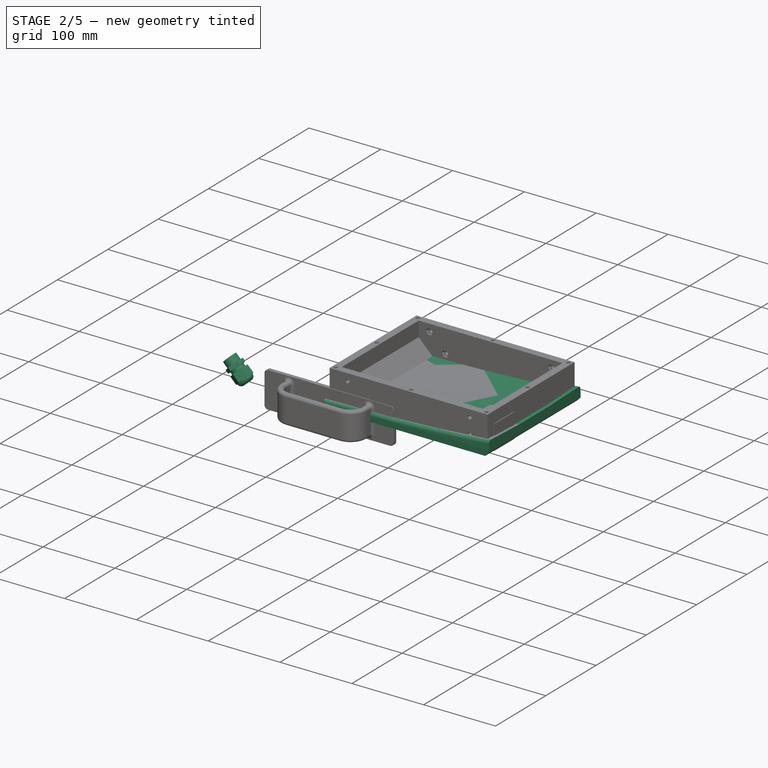
[diagram: stage 2 of 5 — iso view after this stage's code; geometry added in this stage tinted green]
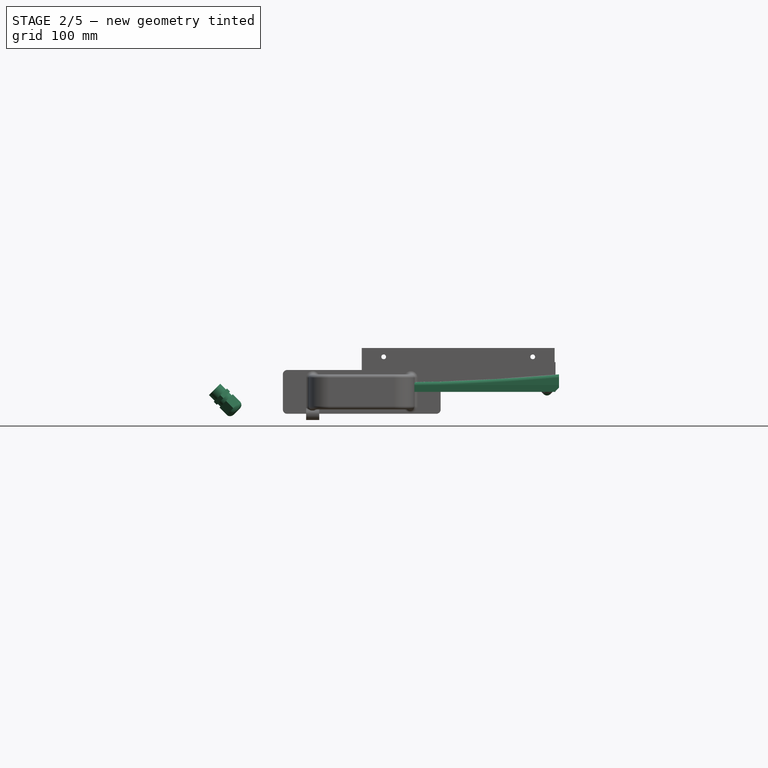
[diagram: stage 2 of 5 — front view after this stage's code; geometry added in this stage tinted green]
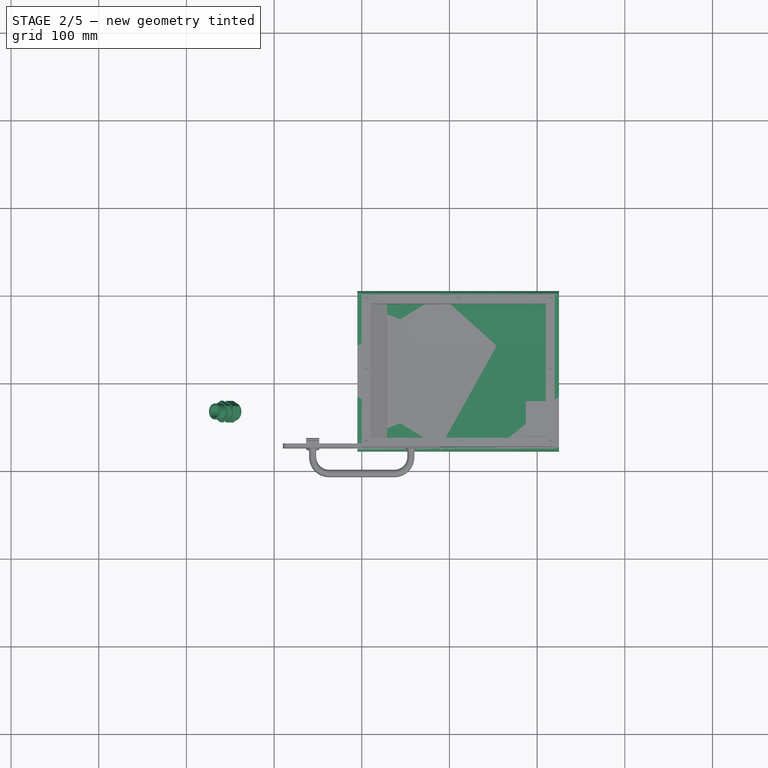
[diagram: stage 2 of 5 — top view after this stage's code; geometry added in this stage tinted green]
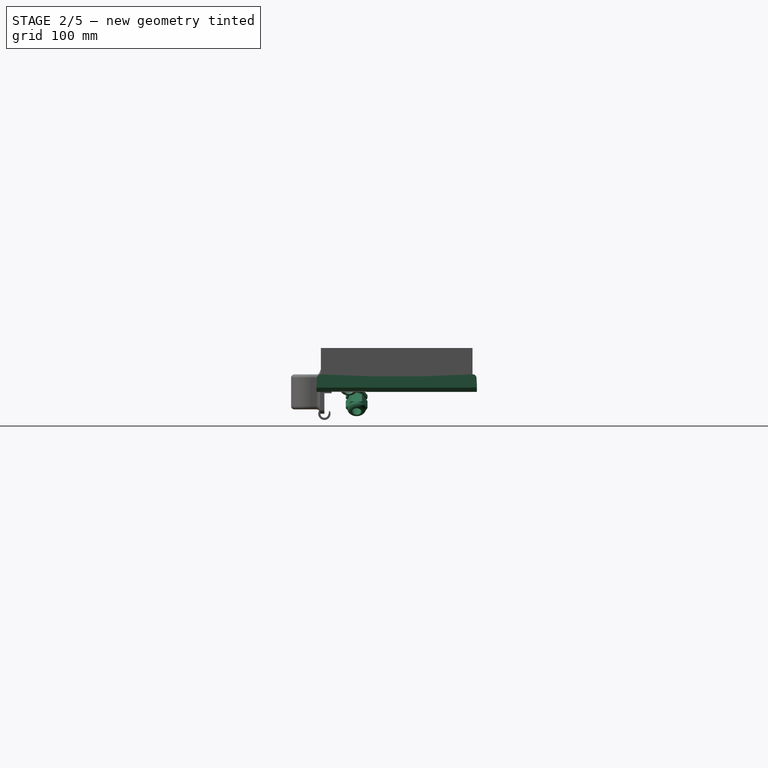
[diagram: stage 2 of 5 — right view after this stage's code; geometry added in this stage tinted green]
FEATURE [Sketcher::SketchObject] Sketch027  label="Base"
  MapMode = 5
  Support = -> [XY_Plane007]
  expr: Constraints[8] = RearFrontBoxes.Length
  expr: Constraints[7] = RearFrontBoxes.Depth
  sketch-geometry (4):
    g0: LineSegment StartX=0 StartY=-173 StartZ=0 EndX=220 EndY=-173 EndZ=0
    g1: LineSegment StartX=220 StartY=-173 StartZ=0 EndX=220 EndY=0 EndZ=0
    g2: LineSegment StartX=220 StartY=0 StartZ=0 EndX=0 EndY=0 EndZ=0
    g3: LineSegment StartX=0 StartY=0 StartZ=0 EndX=0 EndY=-173 EndZ=0
  constraints (11):
    c: Coincident(g0,g1)
    c: Coincident(g1,g2)
    c: Coincident(g2,g3)
    c: Horizontal(g0)
    c: Horizontal(g2)
    c: Vertical(g1)
    c: Vertical(g3)
    c: Distance(g3) = 173
    c: Distance(g2) = 220
    c: Coincident(g0,g3)
    c: Coincident(g2,g-1)
FEATURE [Sketcher::SketchObject] Sketch028
  ExternalGeometry = -> [Sketch027]
  MapMode = 5
  Placement = pos=(0,0,0) rot=(0.57735,0.57735,0.57735;2.0944rad)
  Support = -> [YZ_Plane007]
  expr: Constraints[15] = FootPad.r1
  expr: Constraints[14] = FootPad.LowestThickness
  expr: Constraints[8] = Profiles.ProfileThickness
  expr: Constraints[7] = Profiles.ProfileThickness
  sketch-geometry (5):
    g0: ArcOfCircle CenterX=-86.5 CenterY=1505 CenterZ=0 NormalX=0 NormalY=0 NormalZ=1 AngleXU=0 Radius=1500 StartAngle=4.65135 EndAngle=4.77343
    g1: LineSegment [constr] StartX=-178 StartY=0 StartZ=0 EndX=-178 EndY=7.79335 EndZ=0
    g2: LineSegment [constr] StartX=5 StartY=7.79335 StartZ=0 EndX=5 EndY=0 EndZ=0
    g3: GeomPoint X=-86.5 Y=5 Z=0
    g4: LineSegment [constr] StartX=-86.5 StartY=5 StartZ=0 EndX=-86.5 EndY=-3.5e-11 EndZ=0
  constraints (16):
    c: Coincident(g1,g0)
    c: Coincident(g2,g0)
    c: Vertical(g1)
    c: Equal(g1,g2)
    c: Vertical(g2)
    c: PointOnObject(g1,g-1)
    c: PointOnObject(g2,g-1)
    c: Distance(g2,g-1) = 5
    c: Distance(g1,g-3) = 5
    c: PointOnObject(g3,g0)
    c: Coincident(g4,g3)
    c: PointOnObject(g4,g-3)
    c: Vertical(g4)
    c: Symmetric(g1,g2,g4)
    c: Distance(g4) = 5
    c: Radius(g0) = 1500
FEATURE [PartDesign::Plane] DatumPlane008
  AttachmentOffset = pos=(0,0,86.5) rot=(0,0,1;0rad)
  MapMode = 5
  Placement = pos=(0,-86.5,-9e-12) rot=(1,0,0;1.5708rad)
  Support = -> [XZ_Plane007]
  expr: AttachmentOffset.Base.z = RearFrontBoxes.Depth / 2
FEATURE [Sketcher::SketchObject] Sketch029
  ExternalGeometry = -> [Sketch028,Sketch027]
  MapMode = 5
  Placement = pos=(0,-86.5,-9e-12) rot=(1,0,0;1.5708rad)
  Support = -> [DatumPlane008]
  expr: Constraints[17] = FootPad.OverHang
  expr: Constraints[16] = FootPad.OverHang
  sketch-geometry (9):
    g0: Circle [constr] CenterX=-5 CenterY=7.79335 CenterZ=0 NormalX=0 NormalY=0 NormalZ=1 AngleXU=0 Radius=20
    g1: Circle [constr] CenterX=113.165 CenterY=7.52575 CenterZ=0 NormalX=0 NormalY=0 NormalZ=1 AngleXU=0 Radius=20
    g2: Circle [constr] CenterX=225 CenterY=17.4635 CenterZ=0 NormalX=0 NormalY=0 NormalZ=1 AngleXU=0 Radius=20
    g3: BSplineCurve PolesCount=3 KnotsCount=2 Degree=2 IsPeriodic=0
    g4: GeomPoint [constr] X=-5 Y=7.79335 Z=0
    g5: GeomPoint [constr] X=225 Y=17.4635 Z=0
    g6: LineSegment StartX=225 StartY=-43.9821 StartZ=0 EndX=225 EndY=17.4635 EndZ=0
    g7: LineSegment StartX=-5 StartY=7.79335 StartZ=0 EndX=-5 EndY=-43.9821 EndZ=0
    g8: LineSegment StartX=-5 StartY=-43.9821 StartZ=0 EndX=225 EndY=-43.9821 EndZ=0
  constraints (18):
    c: Radius(g0) = 20
    c: Equal(g0,g1)
    c: Equal(g0,g2)
    c: InternalAlignment(g0,g3)
    c: InternalAlignment(g1,g3)
    c: InternalAlignment(g2,g3)
    c: InternalAlignment(g4,g3)
    c: InternalAlignment(g5,g3)
    c: Coincident(g6,g2)
    c: Vertical(g6)
    c: Coincident(g7,g0)
    c: Vertical(g7)
    c: Coincident(g7,g8)
    c: Horizontal(g8)
    c: Coincident(g8,g6)
    c: DistanceY(g-3,g0) = 0
    c: Distance(g-3,g0) = 5
    c: DistanceX(g-5,g2) = 5
FEATURE [PartDesign::AdditivePipe] AdditivePipe
  AuxilleryCurvelinear = true
  AuxillerySpineTangent = false
  Binormal = (0,0,0)
  Mode = 0
  Placement = pos=(0,-86.5,-9e-12) rot=(1,0,0;1.5708rad)
  Profile = -> Sketch029
  Spine = -> Sketch028
  SpineTangent = false
  Transformation = 0
  Transition = 0
FEATURE [Sketcher::SketchObject] Sketch030
  MapMode = 5
  Placement = pos=(0,0,0) rot=(1,0,0;1.5708rad)
  Support = -> [XZ_Plane007]
  sketch-geometry (4):
    g0: LineSegment StartX=-79.0405 StartY=0 StartZ=0 EndX=334.747 EndY=0 EndZ=0
    g1: LineSegment StartX=334.747 StartY=0 StartZ=0 EndX=334.747 EndY=-145.884 EndZ=0
    g2: LineSegment StartX=334.747 StartY=-145.884 StartZ=0 EndX=-79.0405 EndY=-145.884 EndZ=0
    g3: LineSegment StartX=-79.0405 StartY=-145.884 StartZ=0 EndX=-79.0405 EndY=0 EndZ=0
  constraints (9):
    c: Coincident(g0,g1)
    c: Coincident(g1,g2)
    c: Coincident(g2,g3)
    c: Coincident(g3,g0)
    c: Horizontal(g0)
    c: Horizontal(g2)
    c: Vertical(g1)
    c: Vertical(g3)
    c: PointOnObject(g0,g-1)
FEATURE [PartDesign::Pocket] Pocket006
  BaseFeature = -> AdditivePipe
  Length = 5
  Length2 = 100
  Midplane = true
  Placement = pos=(0,-86.5,-9e-12) rot=(1,0,0;1.5708rad)
  Profile = -> Sketch030
  Type = 1
FEATURE [Sketcher::SketchObject] Sketch036
  ExternalGeometry = -> [Sketch027]
  MapMode = 5
  Support = -> [XY_Plane007]
  expr: Constraints[19] = FootPad.OverHang
  expr: Constraints[18] = FootPad.OverHang
  expr: Constraints[9] = Profiles.ProfileThickness
  expr: Constraints[8] = Profiles.ProfileThickness
  sketch-geometry (8):
    g0: LineSegment StartX=-5 StartY=5 StartZ=0 EndX=225 EndY=5 EndZ=0
    g1: LineSegment StartX=225 StartY=5 StartZ=0 EndX=225 EndY=-178 EndZ=0
    g2: LineSegment StartX=225 StartY=-178 StartZ=0 EndX=-5 EndY=-178 EndZ=0
    g3: LineSegment StartX=-5 StartY=-178 StartZ=0 EndX=-5 EndY=5 EndZ=0
    g4: LineSegment StartX=-16.4861 StartY=19.2831 StartZ=0 EndX=235.719 EndY=19.2831 EndZ=0
    g5: LineSegment StartX=235.719 StartY=19.2831 StartZ=0 EndX=235.719 EndY=-192.474 EndZ=0
    g6: LineSegment StartX=235.719 StartY=-192.474 StartZ=0 EndX=-16.4861 EndY=-192.474 EndZ=0
    g7: LineSegment StartX=-16.4861 StartY=-192.474 StartZ=0 EndX=-16.4861 EndY=19.2831 EndZ=0
  constraints (20):
    c: Coincident(g0,g1)
    c: Coincident(g1,g2)
    c: Coincident(g2,g3)
    c: Coincident(g3,g0)
    c: Horizontal(g0)
    c: Horizontal(g2)
    c: Vertical(g1)
    c: Vertical(g3)
    c: Distance(g2,g-6) = 5
    c: Distance(g-1,g0) = 5
    c: Coincident(g4,g5)
    c: Coincident(g5,g6)
    c: Coincident(g6,g7)
    c: Coincident(g7,g4)
    c: Horizontal(g4)
    c: Horizontal(g6)
    c: Vertical(g5)
    c: Vertical(g7)
    c: Distance(g-1,g3) = 5
    c: Distance(g-4,g1) = 5
FEATURE [PartDesign::Pocket] Pocket012
  BaseFeature = -> Pocket006
  Length = 5
  Length2 = 100
  Midplane = true
  Placement = pos=(0,-86.5,-9e-12) rot=(1,0,0;1.5708rad)
  Profile = -> Sketch036
  Reversed = true
  Type = 1
FEATURE [PartDesign::Fillet] Fillet005
  Base = -> Pocket012 [Edge4,Edge16]
  BaseFeature = -> Pocket012
  Placement = pos=(0,-86.5,-9e-12) rot=(1,0,0;1.5708rad)
  Radius = 4
FEATURE [PartDesign::Chamfer] Chamfer
  Base = -> Fillet005 [Edge15,Edge21]
  BaseFeature = -> Fillet005
  Placement = pos=(0,-86.5,-9e-12) rot=(1,0,0;1.5708rad)
  Size = 4.9
FEATURE [Part::Box] Box001  label="Cube001"
  AttacherType = Attacher::AttachEngine3D
  Height = 12
  Length = 17
  Placement = pos=(-2.96521,-174.691,-1.54803) rot=(0,0,1;0rad)
  Width = 14
FEATURE [Sketcher::SketchObject] Sketch053
  MapMode = 5
  Support = -> [XY_Plane011]
  expr: Constraints[1] = CableGland.Diameter / 2
  sketch-geometry (1):
    g0: Circle CenterX=0 CenterY=0 CenterZ=0 NormalX=0 NormalY=0 NormalZ=1 AngleXU=0 Radius=9.15
  constraints (2):
    c: Coincident(g0,g-1)
    c: Radius(g0) = 9.15
FEATURE [Spreadsheet::Sheet] Spreadsheet007  label="CableGland"
  cells = A1=#Diameter; B1(Diameter)=18.300000000000001; A2=#LowerHeight; B2(LowerHeight)=9.1999999999999993; A3=#InnerDiameter; B3(InnerDiameter)=14.4; A4=#MidNutHeight; B4(MidNutHeight)=5; A5=#MidNutWidth; B5(MidNutWidth)=21.399999999999999; A6=#UpperHeight; B6(UpperHeight)=18.399999999999999; A7=#RestrictorHeight; B7(RestrictorHeight)=7; A8=#CapNutHeight; B8(CapNutHeight)=11.6; A9=#CapDomeHeight; B9(CapDomeHeight)==16.5 - B8; A10=#CapDomeHoleDiameter; B10(CapDomeHoleDiameter)=10.5; A11=#Thickness; B11(Thickness)=2
FEATURE [PartDesign::Pad] Pad013
  Length = 9.2
  Length2 = 100
  Profile = -> Sketch053
  Type = 0
  expr: Length = CableGland.LowerHeight
FEATURE [Sketcher::SketchObject] Sketch054
  MapMode = 5
  Placement = pos=(0,0,9.2) rot=(0,0,1;0rad)
  Support = -> [Pad013]
  expr: Constraints[18] = CableGland.MidNutWidth
  sketch-geometry (7):
    g0: LineSegment StartX=6.17765 StartY=-10.7 StartZ=0 EndX=12.3553 EndY=3e-12 EndZ=0
    g1: LineSegment StartX=12.3553 StartY=3e-12 StartZ=0 EndX=6.17765 EndY=10.7 EndZ=0
    g2: LineSegment StartX=6.17765 StartY=10.7 StartZ=0 EndX=-6.17765 EndY=10.7 EndZ=0
    g3: LineSegment StartX=-6.17765 StartY=10.7 StartZ=0 EndX=-12.3553 EndY=-1.3e-11 EndZ=0
    g4: LineSegment StartX=-12.3553 StartY=-1.3e-11 StartZ=0 EndX=-6.17765 EndY=-10.7 EndZ=0
    g5: LineSegment StartX=-6.17765 StartY=-10.7 StartZ=0 EndX=6.17765 EndY=-10.7 EndZ=0
    g6: Circle [constr] CenterX=0 CenterY=0 CenterZ=0 NormalX=0 NormalY=0 NormalZ=1 AngleXU=0 Radius=12.3553
  constraints (16):
    c: Coincident(g0,g1)
    c: Coincident(g1,g2)
    c: Coincident(g2,g3)
    c: Coincident(g3,g4)
    c: Coincident(g4,g5)
    c: Coincident(g5,g0)
    c: Equal(g0, g1-g5) x5
    c: PointOnObject(g0,g6)
    c: PointOnObject(g1,g6)
    c: PointOnObject(g2,g6)
    c: PointOnObject(g3,g6)
    c: PointOnObject(g4,g6)
    c: PointOnObject(g5,g6)
    c: Coincident(g6,g-1)
    c: Distance(g0,g3) = 21.4
    c: Horizontal(g5)
FEATURE [PartDesign::Pad] Pad014
  BaseFeature = -> Pad013
  Length = 5
  Length2 = 100
  Profile = -> Sketch054
  Type = 0
  expr: Length = CableGland.MidNutHeight
FEATURE [Sketcher::SketchObject] Sketch055
  MapMode = 5
  Placement = pos=(0,0,14.2) rot=(0,0,1;0rad)
  Support = -> [Pad014]
  expr: Constraints[1] = CableGland.Diameter / 2
  sketch-geometry (1):
    g0: Circle CenterX=0 CenterY=0 CenterZ=0 NormalX=0 NormalY=0 NormalZ=1 AngleXU=0 Radius=9.15
  constraints (2):
    c: Coincident(g0,g-1)
    c: Radius(g0) = 9.15
FEATURE [PartDesign::Pad] Pad015
  BaseFeature = -> Pad014
  Length = 18.4
  Length2 = 100
  Profile = -> Sketch055
  Type = 0
  expr: Length = CableGland.UpperHeight
FEATURE [PartDesign::Plane] DatumPlane020
  AttachmentOffset = pos=(0,0,-14) rot=(0,0,1;0rad)
  MapMode = 5
  Placement = pos=(0,0,18.6) rot=(0,0,1;0rad)
  Support = -> [Pad015]
FEATURE [Sketcher::SketchObject] Sketch056
  MapMode = 5
  Placement = pos=(0,0,18.6) rot=(0,0,1;0rad)
  Support = -> [DatumPlane020]
  expr: Constraints[21] = (CableGland.Diameter - CableGland.Thickness) / 2
  expr: Constraints[20] = CableGland.MidNutWidth
  sketch-geometry (8):
    g0: Circle CenterX=0 CenterY=0 CenterZ=0 NormalX=0 NormalY=0 NormalZ=1 AngleXU=0 Radius=8.15
    g1: LineSegment StartX=6.17765 StartY=-10.7 StartZ=0 EndX=12.3553 EndY=0 EndZ=0
    g2: LineSegment StartX=12.3553 StartY=0 StartZ=0 EndX=6.17765 EndY=10.7 EndZ=0
    g3: LineSegment StartX=6.17765 StartY=10.7 StartZ=0 EndX=-6.17765 EndY=10.7 EndZ=0
    g4: LineSegment StartX=-6.17765 StartY=10.7 StartZ=0 EndX=-12.3553 EndY=0 EndZ=0
    g5: LineSegment StartX=-12.3553 StartY=0 StartZ=0 EndX=-6.17765 EndY=-10.7 EndZ=0
    g6: LineSegment StartX=-6.17765 StartY=-10.7 StartZ=0 EndX=6.17765 EndY=-10.7 EndZ=0
    g7: Circle [constr] CenterX=0 CenterY=0 CenterZ=0 NormalX=0 NormalY=0 NormalZ=1 AngleXU=0 Radius=12.3553
  constraints (18):
    c: Coincident(g0,g-1)
    c: Coincident(g1,g2)
    c: Coincident(g2,g3)
    c: Coincident(g3,g4)
    c: Coincident(g4,g5)
    c: Coincident(g5,g6)
    c: Coincident(g6,g1)
    c: Equal(g1, g2-g6) x5
    c: PointOnObject(g1,g7)
    c: PointOnObject(g2,g7)
    c: PointOnObject(g3,g7)
    c: PointOnObject(g4,g7)
    c: PointOnObject(g5,g7)
    c: PointOnObject(g6,g7)
    c: Coincident(g7,g-1)
    c: Horizontal(g6)
    c: Distance(g1,g4) = 21.4
    c: Radius(g0) = 8.15
FEATURE [PartDesign::Plane] DatumPlane021
  AttachmentOffset = pos=(0,30.2,0) rot=(0,0,1;0rad)
  MapMode = 5
  Placement = pos=(0,-3e-12,30.2) rot=(1,0,0;1.5708rad)
  Support = -> [XZ_Plane011]
  expr: AttachmentOffset.Base.y = DatumPlane022.Placement.Base.z
FEATURE [Sketcher::SketchObject] Sketch057
  MapMode = 5
  Placement = pos=(0,-3e-12,30.2) rot=(1,0,0;1.5708rad)
  Support = -> [DatumPlane021]
  expr: Constraints[14] = CableGland.MidNutWidth / 2
  expr: Constraints[11] = CableGland.Thickness
  expr: Constraints[10] = CableGland.CapDomeHoleDiameter / 2
  sketch-geometry (5):
    g0: LineSegment [constr] StartX=0 StartY=0 StartZ=0 EndX=5.25 EndY=0 EndZ=0
    g1: ArcOfCircle CenterX=5.25 CenterY=0 CenterZ=0 NormalX=0 NormalY=0 NormalZ=1 AngleXU=0 Radius=5.45 StartAngle=0 EndAngle=1.5708
    g2: ArcOfCircle CenterX=5.25 CenterY=0 CenterZ=0 NormalX=0 NormalY=0 NormalZ=1 AngleXU=0 Radius=3.45 StartAngle=-4e-12 EndAngle=1.5708
    g3: LineSegment StartX=5.25 StartY=3.45 StartZ=0 EndX=5.25 EndY=5.45 EndZ=0
    g4: LineSegment StartX=8.7 StartY=-1.2e-11 StartZ=0 EndX=10.7 EndY=0 EndZ=0
  constraints (15):
    c: Coincident(g0,g-1)
    c: Horizontal(g0)
    c: Coincident(g1,g0)
    c: Coincident(g2,g0)
    c: PointOnObject(g2,g-1)
    c: Coincident(g3,g2)
    c: Coincident(g3,g1)
    c: Vertical(g3)
    c: Coincident(g4,g2)
    c: Coincident(g4,g1)
    c: Distance(g0) = 5.25
    c: Distance(g3) = 2
    c: PointOnObject(g0,g3)
    c: PointOnObject(g1,g-1)
    c: Distance(g1,g-2) = 10.7
FEATURE [Sketcher::SketchObject] Sketch058
  MapMode = 5
  Support = -> [XY_Plane011]
  expr: Constraints[1] = CableGland.InnerDiameter / 2
  sketch-geometry (1):
    g0: Circle CenterX=0 CenterY=0 CenterZ=0 NormalX=0 NormalY=0 NormalZ=1 AngleXU=0 Radius=7.2
  constraints (2):
    c: Coincident(g0,g-1)
    c: Radius(g0) = 7.2
FEATURE [PartDesign::Pocket] Pocket019  label="Pocket021"
  BaseFeature = -> Pad015
  Length = 5
  Length2 = 100
  Midplane = true
  Profile = -> Sketch058
  Type = 1
FEATURE [PartDesign::Pad] Pad016
  BaseFeature = -> Pocket019
  Length = 11.6
  Length2 = 100
  Profile = -> Sketch056
  Type = 0
  expr: Length = CableGland.CapNutHeight
FEATURE [PartDesign::Revolution] Revolution
  Angle = 360
  Axis = (0,0,1)
  Base = (0,-3e-12,30.2)
  BaseFeature = -> Pad016
  Profile = -> Sketch057
  ReferenceAxis = -> Sketch057 [V_Axis]
  Reversed = true
FEATURE [PartDesign::Plane] DatumPlane022
  AttachmentOffset = pos=(0,0,11.6) rot=(0,0,1;0rad)
  MapMode = 5
  Placement = pos=(0,0,30.2) rot=(0,0,1;0rad)
  Support = -> [DatumPlane020]
  expr: AttachmentOffset.Base.z = CableGland.CapNutHeight
FEATURE [PartDesign::Body] Body011  label="CableGland18"
  Group = -> [Sketch053,Pad013,Sketch054,Pad014,Sketch055,Pad015,Sketch058,DatumPlane020,Sketch056,Pocket019,DatumPlane022,Pad016,DatumPlane021,Sketch057,Revolution]
  Origin = -> Origin011
  Tip = -> Revolution
FEATURE [Part::FeaturePython] Clone018  label="CableGland019"  # Draft clone (typed FeaturePython)
  AttacherType = Attacher::AttachEngine3D
  Fuse = false
  Objects = -> [Body011]
  Placement = pos=(-167.819,-132.2,2.81909) rot=(0.257344,0.960422,0.106596;2.38434rad)
  Scale = (1,1,1)
FEATURE [Part::FeaturePython] Clone019  label="CableGland020"  # Draft clone (typed FeaturePython)
  AttacherType = Attacher::AttachEngine3D
  Fuse = false
  Objects = -> [Body011]
  Placement = pos=(211.556,-143.682,8.44437) rot=(0,0,1;0.523599rad)
  Scale = (1,1,1)
FEATURE [PartDesign::Plane] DatumPlane023
  AttachmentOffset = pos=(0,0,14) rot=(0,0,1;0rad)
  MapMode = 5
  Placement = pos=(200.101,-141.2,19.8995) rot=(-0.382683,0,0.92388;3.14159rad)
  Support = -> [DatumPlane019]
  expr: AttachmentOffset.Base.z = RearFrontBoxes.CableGlandMountDepth - RearFrontBoxes.CableGlandGap
FEATURE [Sketcher::SketchObject] Sketch060
  MapMode = 5
  Placement = pos=(200.101,-141.2,19.8995) rot=(-0.382683,0,0.92388;3.14159rad)
  Support = -> [DatumPlane023]
  expr: Constraints[19] = CableGland.MidNutWidth + 1
  sketch-geometry (7):
    g0: LineSegment StartX=11.2 StartY=-6.46632 StartZ=0 EndX=11.2 EndY=6.46632 EndZ=0
    g1: LineSegment StartX=11.2 StartY=6.46632 StartZ=0 EndX=0 EndY=12.9326 EndZ=0
    g2: LineSegment StartX=0 StartY=12.9326 StartZ=0 EndX=-11.2 EndY=6.46632 EndZ=0
    g3: LineSegment StartX=-11.2 StartY=6.46632 StartZ=0 EndX=-11.2 EndY=-6.46632 EndZ=0
    g4: LineSegment StartX=-11.2 StartY=-6.46632 StartZ=0 EndX=0 EndY=-12.9326 EndZ=0
    g5: LineSegment StartX=0 StartY=-12.9326 StartZ=0 EndX=11.2 EndY=-6.46632 EndZ=0
    g6: Circle [constr] CenterX=0 CenterY=0 CenterZ=0 NormalX=0 NormalY=0 NormalZ=1 AngleXU=0 Radius=12.9326
  constraints (16):
    c: Coincident(g0,g1)
    c: Coincident(g1,g2)
    c: Coincident(g2,g3)
    c: Coincident(g3,g4)
    c: Coincident(g4,g5)
    c: Coincident(g5,g0)
    c: Equal(g0, g1-g5) x5
    c: PointOnObject(g0,g6)
    c: PointOnObject(g1,g6)
    c: PointOnObject(g2,g6)
    c: PointOnObject(g3,g6)
    c: PointOnObject(g4,g6)
    c: PointOnObject(g5,g6)
    c: Coincident(g6,g-1)
    c: Vertical(g0)
    c: Distance(g2,g5) = 22.4
FEATURE [Part::Mirroring] mirror001  label="Mirror of CableGland020"
  Base = (0,0,0)
  Normal = (0,0,-1)
  Placement = pos=(38.0314,2.482,-117.217) rot=(0,-1,0;0.785398rad)
  Source = -> Clone019
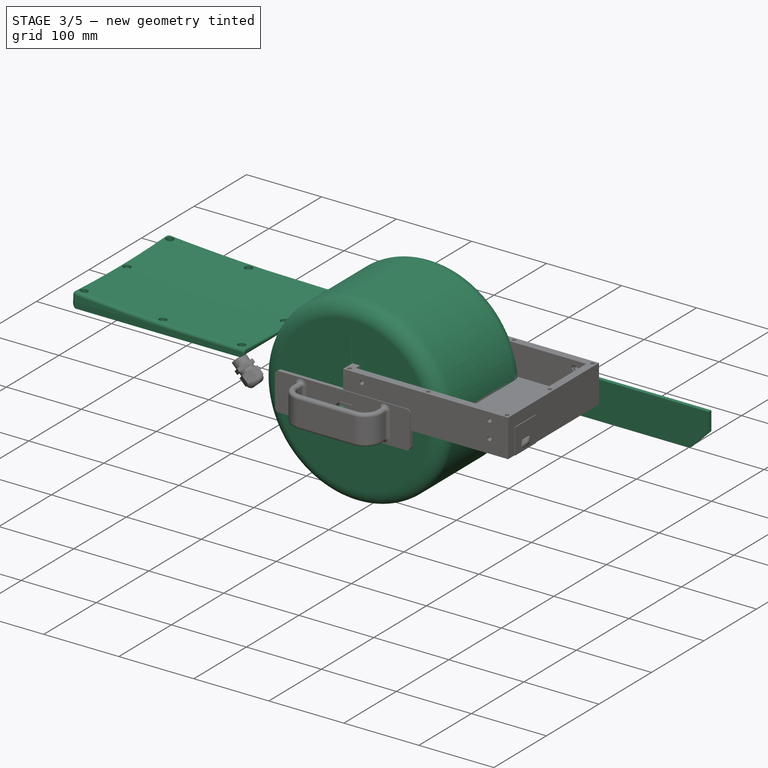
[diagram: stage 3 of 5 — iso view after this stage's code; geometry added in this stage tinted green]
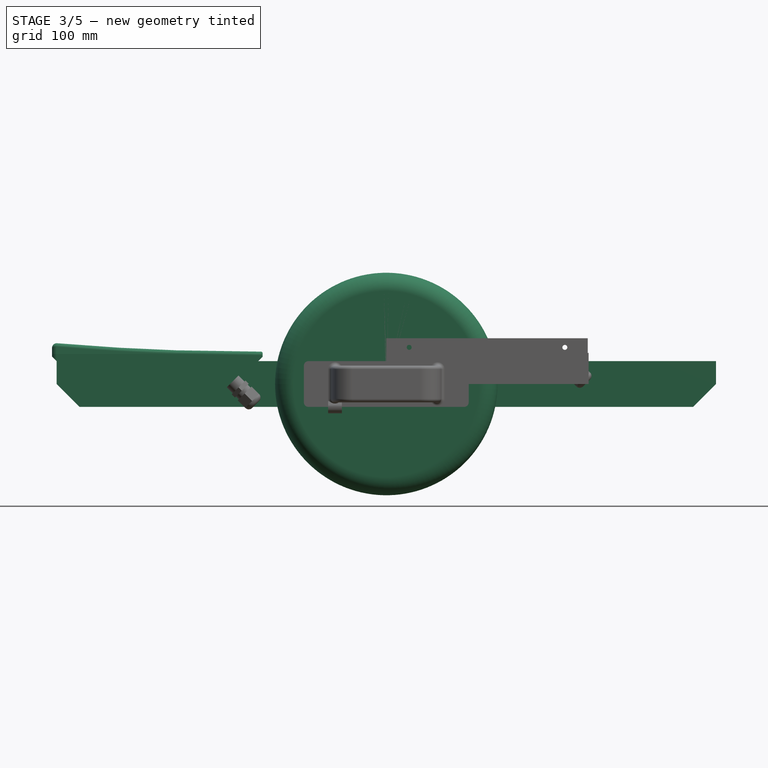
[diagram: stage 3 of 5 — front view after this stage's code; geometry added in this stage tinted green]
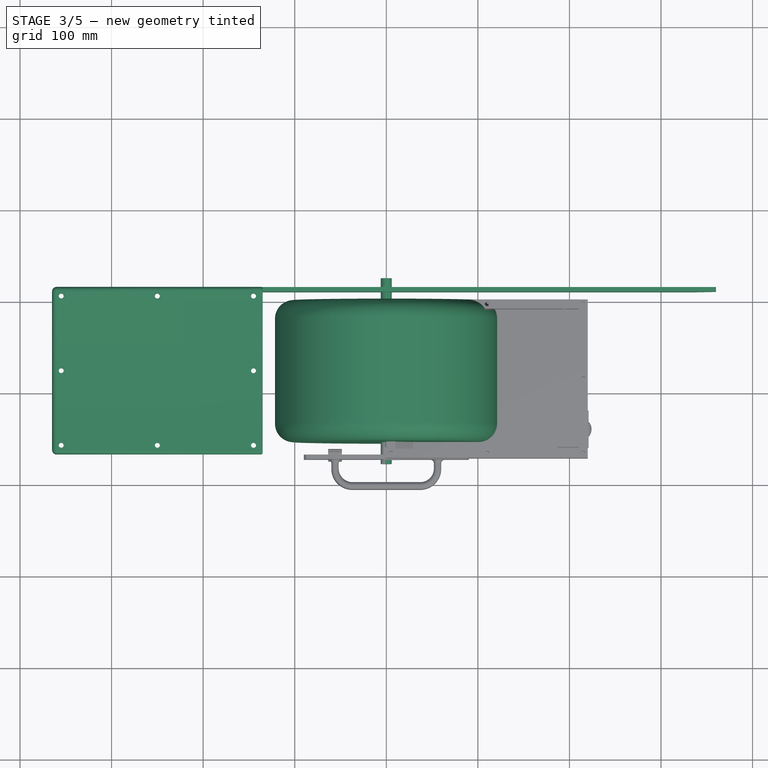
[diagram: stage 3 of 5 — top view after this stage's code; geometry added in this stage tinted green]
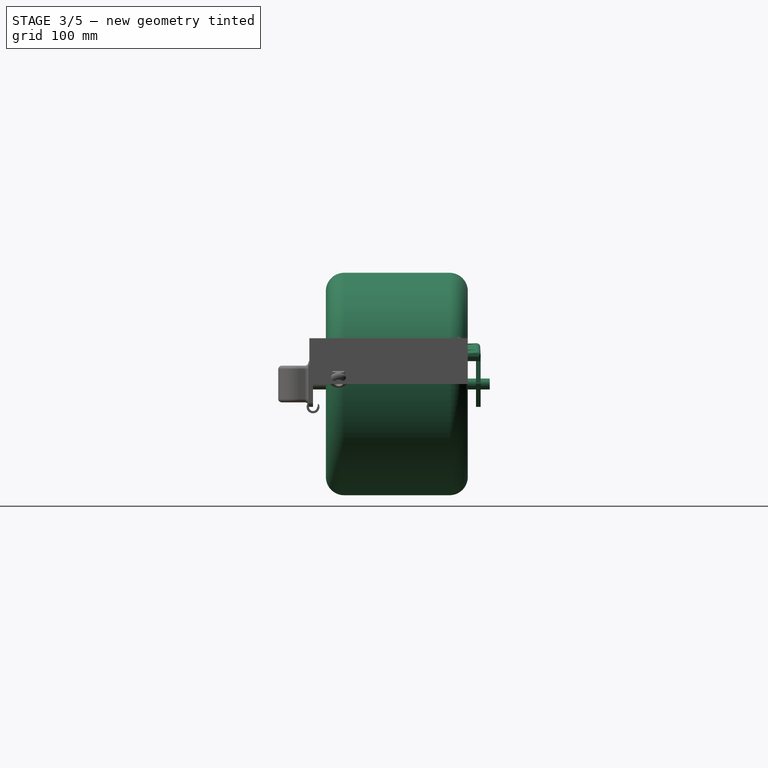
[diagram: stage 3 of 5 — right view after this stage's code; geometry added in this stage tinted green]
FEATURE [Sketcher::SketchObject] Sketch
  MapMode = 5
  Placement = pos=(0,0,0) rot=(1,0,0;1.5708rad)
  Support = -> [XZ_Plane]
  expr: Constraints[1] = Pyörä.B1 / 2
  sketch-geometry (1):
    g0: Circle CenterX=0 CenterY=0 CenterZ=0 NormalX=0 NormalY=0 NormalZ=1 AngleXU=0 Radius=121.5
  constraints (2):
    c: Coincident(g0,g-1)
    c: Radius(g0) = 121.5
FEATURE [Spreadsheet::Sheet] Spreadsheet  label="Pyörä"
  cells = A1=Halkaisija; B1=243; A2=Leveys; B2=155; A3=AkseliD; B3=12; A4=AkseliUlos; B4=24
FEATURE [PartDesign::Pad] Pad
  Length = 155
  Length2 = 100
  Placement = pos=(0,0,0) rot=(1,0,0;1.5708rad)
  Profile = -> Sketch
  Type = 0
  expr: Length = Spreadsheet.B2
FEATURE [Sketcher::SketchObject] Sketch001
  MapMode = 5
  Placement = pos=(0,0,0) rot=(1,0,0;1.5708rad)
  Support = -> [XZ_Plane]
  expr: Constraints[1] = Spreadsheet.B3 / 2
  sketch-geometry (1):
    g0: Circle CenterX=0 CenterY=0 CenterZ=0 NormalX=0 NormalY=0 NormalZ=1 AngleXU=0 Radius=6
  constraints (2):
    c: Coincident(g0,g-1)
    c: Radius(g0) = 6
FEATURE [PartDesign::Pad] Pad001
  BaseFeature = -> Pad
  Length = 24
  Length2 = 100
  Placement = pos=(0,0,0) rot=(1,0,0;1.5708rad)
  Profile = -> Sketch001
  Reversed = true
  Type = 0
  expr: Length = Spreadsheet.B4
FEATURE [Sketcher::SketchObject] Sketch002
  MapMode = 5
  Placement = pos=(0,-155,-1.6e-11) rot=(1,0,0;1.5708rad)
  Support = -> [Pad001]
  expr: Constraints[1] = Spreadsheet.B3 / 2
  sketch-geometry (1):
    g0: Circle CenterX=0 CenterY=0 CenterZ=0 NormalX=0 NormalY=0 NormalZ=1 AngleXU=0 Radius=6
  constraints (2):
    c: Coincident(g0,g-1)
    c: Radius(g0) = 6
FEATURE [PartDesign::Pad] Pad002
  BaseFeature = -> Pad001
  Length = 24
  Length2 = 100
  Placement = pos=(0,0,0) rot=(1,0,0;1.5708rad)
  Profile = -> Sketch002
  Type = 0
  expr: Length = Spreadsheet.B4
FEATURE [PartDesign::Body] Body003  label="OuterBoxTest"
  Group = -> [Sketch006,Sketch007,Sketch008,Sketch009,Sketch010,Pad006,Sketch011,Pocket,Sketch012,Pocket001]
  Origin = -> Origin003
  Tip = -> Pocket001
FEATURE [Spreadsheet::Sheet] Spreadsheet004  label="Profiles"
  cells = A1=#WheelGap; B1(WheelGap)=9; A2=#ProfileThickness; B2(ProfileThickness)=5; A3=#ProfileWidth; B3(ProfileWidth)=50
FEATURE [PartDesign::Plane] DatumPlane
  AttachmentOffset = pos=(0,0,-9) rot=(0,0,1;0rad)
  MapMode = 5
  Placement = pos=(0,9,1e-12) rot=(1,0,0;1.5708rad)
  Support = -> [XZ_Plane004]
  expr: AttachmentOffset.Base.z = -Profiles.B1
FEATURE [Sketcher::SketchObject] Sketch013
  MapMode = 5
  Placement = pos=(0,9,1e-12) rot=(1,0,0;1.5708rad)
  Support = -> [DatumPlane]
  expr: Constraints[27] = RearFrontBoxes.BoxChamfer
  sketch-geometry (11):
    g0: LineSegment [constr] StartX=-360 StartY=25 StartZ=0 EndX=360 EndY=25 EndZ=0
    g1: LineSegment [constr] StartX=360 StartY=25 StartZ=0 EndX=360 EndY=-25 EndZ=0
    g2: LineSegment [constr] StartX=360 StartY=-25 StartZ=0 EndX=-360 EndY=-25 EndZ=0
    g3: LineSegment [constr] StartX=-360 StartY=-25 StartZ=0 EndX=-360 EndY=25 EndZ=0
    g4: LineSegment StartX=-360 StartY=25 StartZ=0 EndX=360 EndY=25 EndZ=0
    g5: LineSegment StartX=360 StartY=25 StartZ=0 EndX=360 EndY=0 EndZ=0
    g6: LineSegment StartX=335 StartY=-25 StartZ=0 EndX=-335 EndY=-25 EndZ=0
    g7: LineSegment StartX=-360 StartY=0 StartZ=0 EndX=-360 EndY=25 EndZ=0
    g8: LineSegment StartX=-335 StartY=-25 StartZ=0 EndX=-360 EndY=0 EndZ=0
    g9: LineSegment StartX=335 StartY=-25 StartZ=0 EndX=360 EndY=0 EndZ=0
    g10: Circle CenterX=0 CenterY=0 CenterZ=0 NormalX=0 NormalY=0 NormalZ=1 AngleXU=0 Radius=7
  constraints (29):
    c: Coincident(g0,g1)
    c: Coincident(g1,g2)
    c: Coincident(g2,g3)
    c: Coincident(g3,g0)
    c: Horizontal(g0)
    c: Horizontal(g2)
    c: Vertical(g1)
    c: Vertical(g3)
    c: Symmetric(g0,g1,g-1)
    c: Distance(g1) = 50
    c: Distance(g0) = 720
    c: Coincident(g4,g5)
    c: Coincident(g7,g4)
    c: Horizontal(g4)
    c: Horizontal(g6)
    c: Vertical(g5)
    c: Vertical(g7)
    c: Coincident(g4,g0)
    c: Angle(g9) = 0.785398
    c: Angle(g8) = 2.35619
    c: Coincident(g6,g8)
    c: Coincident(g7,g8)
    c: Coincident(g6,g9)
    c: Coincident(g5,g9)
    c: PointOnObject(g6,g2)
    c: Equal(g8,g9)
    c: Coincident(g4,g0)
    c: Distance(g6,g3) = 25
    c: Radius(g10) = 7
FEATURE [PartDesign::Pad] Pad007
  Length = 5
  Length2 = 100
  Placement = pos=(0,9,1e-12) rot=(1,0,0;1.5708rad)
  Profile = -> Sketch013
  Reversed = true
  Type = 0
  expr: Length = Profiles.B2
FEATURE [PartDesign::Fillet] Fillet006
  Base = -> Chamfer [Edge26]
  BaseFeature = -> Chamfer
  Placement = pos=(0,-86.5,-9e-12) rot=(1,0,0;1.5708rad)
  Radius = 2
FEATURE [PartDesign::Fillet] Fillet007
  Base = -> Fillet006 [Edge24]
  BaseFeature = -> Fillet006
  Placement = pos=(0,-86.5,-9e-12) rot=(1,0,0;1.5708rad)
  Radius = 5
FEATURE [PartDesign::Pocket] Pocket013
  BaseFeature = -> Fillet007
  Length = 5
  Length2 = 100
  Midplane = true
  Placement = pos=(0,-86.5,-9e-12) rot=(1,0,0;1.5708rad)
  Profile = -> Sketch031
  Type = 1
FEATURE [PartDesign::Pocket] Pocket008
  BaseFeature = -> Pocket013
  Length = 5
  Length2 = 100
  Placement = pos=(0,-86.5,-9e-12) rot=(1,0,0;1.5708rad)
  Profile = -> Sketch032
  Reversed = true
  Type = 1
FEATURE [PartDesign::Pocket] Pocket009
  BaseFeature = -> Pocket008
  Length = 5
  Length2 = 100
  Placement = pos=(0,-86.5,-9e-12) rot=(1,0,0;1.5708rad)
  Profile = -> Sketch033
  Reversed = true
  Type = 1
FEATURE [PartDesign::Pocket] Pocket010
  BaseFeature = -> Pocket009
  Length = 5
  Length2 = 100
  Placement = pos=(0,-86.5,-9e-12) rot=(1,0,0;1.5708rad)
  Profile = -> Sketch034
  Reversed = true
  Type = 1
FEATURE [PartDesign::Body] Body007  label="RearFootPlate"
  Group = -> [Sketch027,Sketch028,Sketch029,AdditivePipe,DatumPlane008,Sketch030,Pocket006,Sketch031,Sketch036,Pocket012,Fillet005,Chamfer,Fillet006,Fillet007,DatumPlane009,Sketch032,Pocket013,Pocket008,DatumPlane010,Sketch033,Pocket009,DatumPlane011,Sketch034,Pocket010]
  Origin = -> Origin007
  Tip = -> Pocket013
FEATURE [Part::FeaturePython] Clone014  label="Pocket014"  # Draft clone (typed FeaturePython)
  AttacherType = Attacher::AttachEngine3D
  Fuse = false
  Objects = -> [Pocket010]
  Placement = pos=(140,-77.5,25) rot=(1,0,0;1.5708rad)
  Scale = (1,1,1)
FEATURE [Part::Mirroring] mirror  label="Mirror of Pocket014"
  Base = (0,0,0)
  Normal = (1,0,0)
  Source = -> Clone014
FEATURE [PartDesign::Fillet] Fillet008
  Base = -> Pad002 [Edge3,Edge2]
  BaseFeature = -> Pad002
  Placement = pos=(0,0,0) rot=(1,0,0;1.5708rad)
  Radius = 20
FEATURE [Part::FeaturePython] Clone017  label="Pocket020"  # Draft clone (typed FeaturePython)
  AttacherType = Attacher::AttachEngine3D
  Fuse = false
  Objects = -> [Pocket010]
  Placement = pos=(0,-86.5,-9e-12) rot=(1,0,0;1.5708rad)
  Scale = (1,1,1)
FEATURE [Part::MultiCommon] Common002
  Shapes = -> [Box001,Clone017]
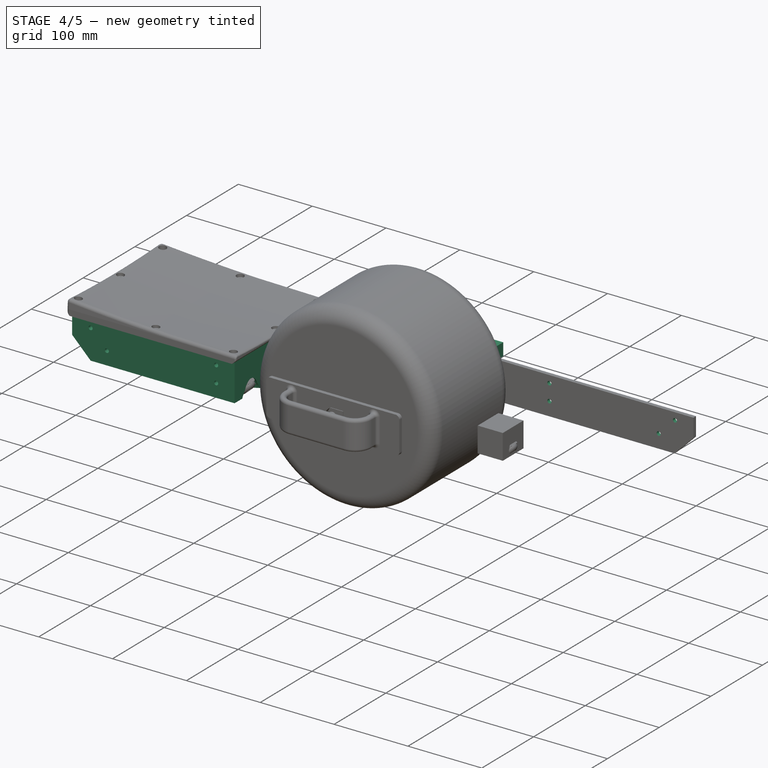
[diagram: stage 4 of 5 — iso view after this stage's code; geometry added in this stage tinted green]
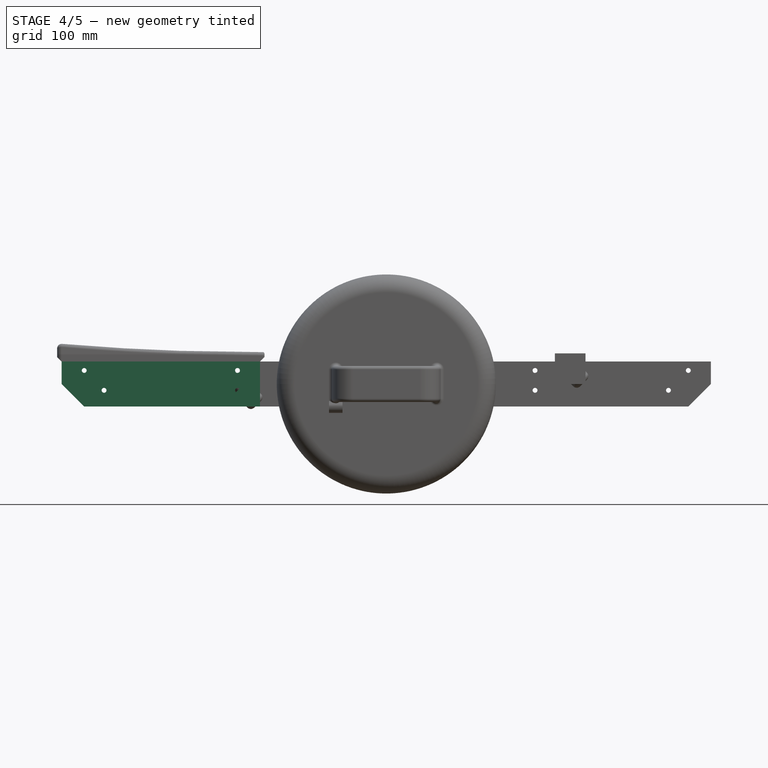
[diagram: stage 4 of 5 — front view after this stage's code; geometry added in this stage tinted green]
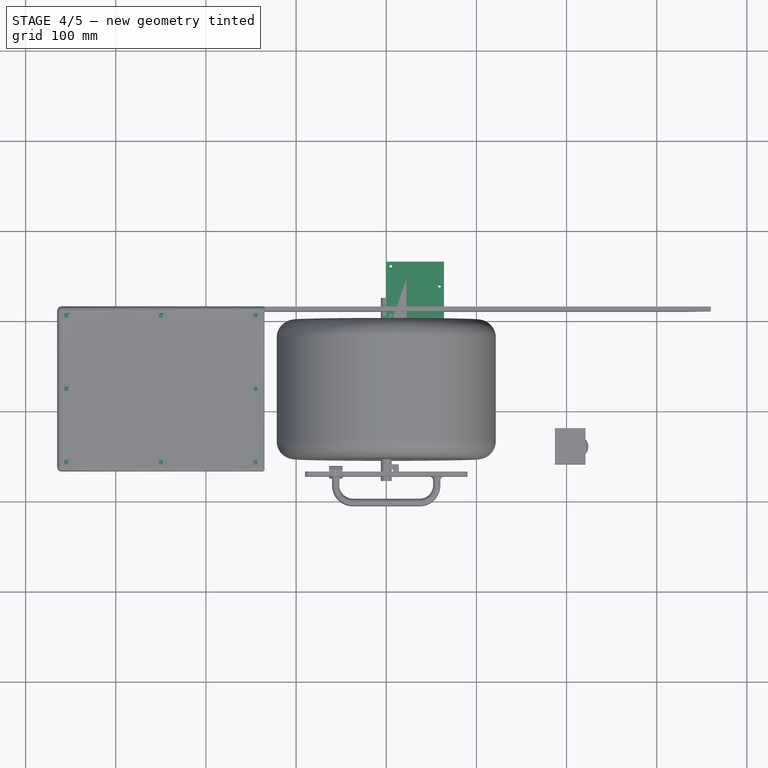
[diagram: stage 4 of 5 — top view after this stage's code; geometry added in this stage tinted green]
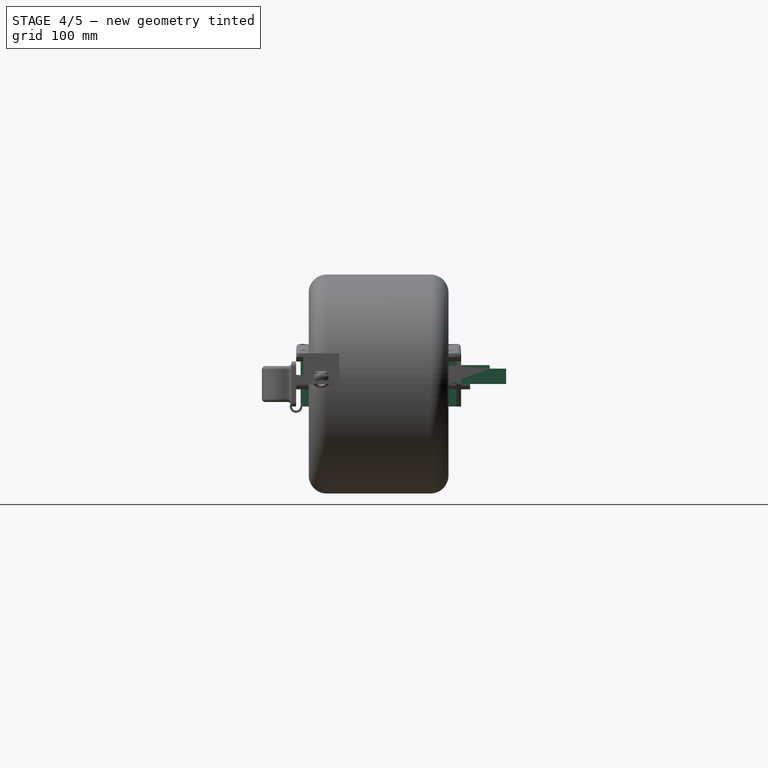
[diagram: stage 4 of 5 — right view after this stage's code; geometry added in this stage tinted green]
FEATURE [PartDesign::Body] Body005  label="BatteryBox"
  Group = -> [Sketch014,Sketch015,Sketch016,Sketch017,Pad008,DatumPlane003,DatumPlane004,Sketch018,Pocket002]
  Origin = -> Origin005
  Tip = -> Pocket002
FEATURE [Sketcher::SketchObject] Sketch019  label="Size"
  MapMode = 5
  Placement = pos=(0,0,0) rot=(1,0,0;1.5708rad)
  Support = -> [XZ_Plane006]
  expr: Constraints[10] = RearFrontBoxes.Length
  expr: Constraints[9] = Profiles.ProfileWidth
  sketch-geometry (4):
    g0: LineSegment StartX=0 StartY=0 StartZ=0 EndX=220 EndY=0 EndZ=0
    g1: LineSegment StartX=220 StartY=0 StartZ=0 EndX=220 EndY=50 EndZ=0
    g2: LineSegment StartX=220 StartY=50 StartZ=0 EndX=0 EndY=50 EndZ=0
    g3: LineSegment StartX=0 StartY=50 StartZ=0 EndX=0 EndY=0 EndZ=0
  constraints (11):
    c: Coincident(g0,g1)
    c: Coincident(g1,g2)
    c: Coincident(g2,g3)
    c: Coincident(g3,g0)
    c: Horizontal(g0)
    c: Horizontal(g2)
    c: Vertical(g1)
    c: Vertical(g3)
    c: Coincident(g0,g-1)
    c: Distance(g1) = 50
    c: Distance(g2) = 220
FEATURE [Spreadsheet::Sheet] Spreadsheet005  label="RearFrontBoxes"
  cells = A1=#Length; B1(Length)=220; D1=ProfileSpace; E1(ProfileSpace)=173; F1=Should be equal to Depth; A2=#Depth; B2(Depth)==Pyörä.B2 + 2 * Profiles.WheelGap; A3=#MountWallThickness; B3(MountWallThickness)=10; A4=#BatteryBoxHeight; B4(BatteryBoxHeight)=45; C4=No box; A5=#BatteryBoxWidth; B5(BatteryBoxWidth)=200; C5=No box; A6=#SideThickness; B6(SideThickness)=10; A7=#NutSide; B7(NutSide)=8.3000000000000007; C7=Actual is 7.85; A8=#NutHeight; B8(NutHeight)=5.5; C8=Actual is 5; A9=#NutInset; B9(NutInset)=10; A10=#NutInsetSide; B10(NutInsetSide)=15; A11=#ScrewHoleDiameter; B11(ScrewHoleDiameter)=5.4000000000000004; A12=#ScrewHoleLength; B12(ScrewHoleLength)=22; A13=#NutSideMediumfit; B13(NutSideMediumfit)=8.0999999999999996; A14=#SideNutInset; B14(SideNutInset)=3; A15=#ScrewTight; B15(ScrewTight)=4.9000000000000004; A16=#BatteryHeightRoom; B16(BatteryHeightRoom)=42; C16=Is used to calculate the thickness of both boxes; A17=#BatteryLengthRoom; B17(BatteryLengthRoom)=185; A18=#BatteryMidHeight; B18(BatteryMidHeight)=22; A19=#BoxChamfer; B19(BoxChamfer)=25; A20=#CableGlandHoleDiameter; B20(CableGlandHoleDiameter)=19.199999999999999; A21=#CableGlandMountDepth; B21(CableGlandMountDepth)=16; C21=Original 13; A22=#CableGlandNutHoleDepth; B22(CableGlandNutHoleDepth)=4; A23=#CableGlandGap; B23(CableGlandGap)=2; C23=Original 2
FEATURE [PartDesign::Plane] DatumPlane005
  AttachmentOffset = pos=(0,0,10) rot=(0,0,1;0rad)
  MapMode = 5
  Placement = pos=(0,-10,-1e-12) rot=(1,0,0;1.5708rad)
  Support = -> [XZ_Plane006]
  expr: AttachmentOffset.Base.z = RearFrontBoxes.SideThickness
FEATURE [Sketcher::SketchObject] Sketch021
  ExternalGeometry = -> [Sketch019]
  MapMode = 5
  Placement = pos=(0,-10,-1e-12) rot=(1,0,0;1.5708rad)
  Support = -> [DatumPlane005]
  expr: Constraints[20] = RearFrontBoxes.BatteryMidHeight
  expr: Constraints[15] = RearFrontBoxes.BatteryHeightRoom
  expr: Constraints[14] = RearFrontBoxes.BatteryLengthRoom
  expr: Constraints[11] = RearFrontBoxes.SideThickness
  expr: Constraints[8] = RearFrontBoxes.MountWallThickness
  sketch-geometry (8):
    g0: LineSegment StartX=10 StartY=50 StartZ=0 EndX=210 EndY=50 EndZ=0
    g1: LineSegment StartX=210 StartY=50 StartZ=0 EndX=210 EndY=30 EndZ=0
    g2: LineSegment [constr] StartX=195 StartY=8 StartZ=0 EndX=10 EndY=8 EndZ=0
    g3: LineSegment [constr] StartX=10 StartY=8 StartZ=0 EndX=10 EndY=50 EndZ=0
    g4: LineSegment StartX=195 StartY=8 StartZ=0 EndX=195 EndY=30 EndZ=0
    g5: LineSegment StartX=195 StartY=30 StartZ=0 EndX=210 EndY=30 EndZ=0
    g6: LineSegment StartX=10 StartY=50 StartZ=0 EndX=10 EndY=8 EndZ=0
    g7: LineSegment StartX=10 StartY=8 StartZ=0 EndX=195 EndY=8 EndZ=0
  constraints (22):
    c: Coincident(g0,g1)
    c: Coincident(g2,g3)
    c: Coincident(g3,g0)
    c: Horizontal(g0)
    c: Horizontal(g2)
    c: Vertical(g1)
    c: Vertical(g3)
    c: PointOnObject(g0,g-3)
    c: DistanceX(g-3,g0) = 10
    c: Vertical(g4)
    c: Horizontal(g5)
    c: Distance(g0,g-4) = 10
    c: Coincident(g2,g4)
    c: Coincident(g1,g5)
    c: Distance(g2) = 185
    c: Distance(g3) = 42
    c: Coincident(g6,g0)
    c: Coincident(g7,g6)
    c: Coincident(g6,g2)
    c: Coincident(g7,g2)
    c: DistanceY(g2,g5) = 22
    c: Coincident(g4,g5)
FEATURE [Sketcher::SketchObject] Sketch020
  ExternalGeometry = -> [Sketch019,Sketch021]
  MapMode = 5
  Placement = pos=(0,0,0) rot=(1,0,0;1.5708rad)
  Support = -> [XZ_Plane006]
  expr: Constraints[11] = RearFrontBoxes.BoxChamfer
  sketch-geometry (5):
    g0: LineSegment StartX=0 StartY=50 StartZ=0 EndX=0 EndY=0 EndZ=0
    g1: LineSegment StartX=0 StartY=0 StartZ=0 EndX=195 EndY=0 EndZ=0
    g2: LineSegment StartX=195 StartY=0 StartZ=0 EndX=220 EndY=25 EndZ=0
    g3: LineSegment StartX=220 StartY=25 StartZ=0 EndX=220 EndY=50 EndZ=0
    g4: LineSegment StartX=220 StartY=50 StartZ=0 EndX=0 EndY=50 EndZ=0
  constraints (12):
    c: Coincident(g-3,g0)
    c: Coincident(g0,g-1)
    c: Coincident(g0,g1)
    c: Coincident(g1,g2)
    c: PointOnObject(g2,g-4)
    c: Coincident(g2,g3)
    c: Coincident(g3,g-4)
    c: Coincident(g3,g4)
    c: PointOnObject(g1,g-5)
    c: Coincident(g4,g0)
    c: Angle(g2,g-1) = 2.35619
    c: Distance(g1,g-4) = 25
FEATURE [PartDesign::Pad] Pad009
  Length = 173
  Length2 = 100
  Placement = pos=(0,0,0) rot=(1,0,0;1.5708rad)
  Profile = -> Sketch020
  Type = 0
  expr: Length = RearFrontBoxes.Depth
FEATURE [PartDesign::Pocket] Pocket003
  BaseFeature = -> Pad009
  Length = 153
  Length2 = 100
  Placement = pos=(0,0,0) rot=(1,0,0;1.5708rad)
  Profile = -> Sketch021
  Reversed = true
  Type = 0
  expr: Length = RearFrontBoxes.Depth - 2 * RearFrontBoxes.SideThickness
FEATURE [Sketcher::SketchObject] Sketch025
  ExternalGeometry = -> [Sketch019]
  MapMode = 5
  Placement = pos=(0,0,0) rot=(0,0.707107,0.707107;3.14159rad)
  Support = -> [XZ_Plane006]
  expr: Constraints[29] = RearFrontBoxes.NutInsetSide
  expr: Constraints[27] = RearFrontBoxes.NutInset
  expr: Constraints[22] = RearFrontBoxes.NutInset + Profiles.ProfileWidth - RearFrontBoxes.BatteryHeightRoom
  expr: Constraints[21] = RearFrontBoxes.NutInset
  expr: Constraints[28] = RearFrontBoxes.NutInset + Profiles.ProfileWidth - RearFrontBoxes.BatteryHeightRoom
  expr: Constraints[20] = RearFrontBoxes.NutInsetSide
  expr: Constraints[19] = RearFrontBoxes.SideThickness
  expr: Constraints[18] = RearFrontBoxes.SideThickness
  expr: Constraints[0] = RearFrontBoxes.ScrewHoleDiameter / 2
  sketch-geometry (12):
    g0: Circle CenterX=-25 CenterY=40 CenterZ=0 NormalX=0 NormalY=0 NormalZ=1 AngleXU=0 Radius=2.7
    g1: Circle CenterX=-25 CenterY=18 CenterZ=0 NormalX=0 NormalY=0 NormalZ=1 AngleXU=0 Radius=2.7
    g2: LineSegment [constr] StartX=-25 StartY=40 StartZ=0 EndX=-25 EndY=18 EndZ=0
    g3: LineSegment [constr] StartX=0 StartY=0 StartZ=0 EndX=0 EndY=50 EndZ=0
    g4: LineSegment [constr] StartX=0 StartY=50 StartZ=0 EndX=-220 EndY=50 EndZ=0
    g5: LineSegment [constr] StartX=-220 StartY=50 StartZ=0 EndX=-220 EndY=0 EndZ=0
    g6: LineSegment [constr] StartX=-220 StartY=0 StartZ=0 EndX=0 EndY=0 EndZ=0
    g7: LineSegment [constr] StartX=-10 StartY=0 StartZ=0 EndX=-10 EndY=50 EndZ=0
    g8: LineSegment [constr] StartX=-210 StartY=50 StartZ=0 EndX=-210 EndY=0 EndZ=0
    g9: Circle CenterX=-195 CenterY=40 CenterZ=0 NormalX=0 NormalY=0 NormalZ=1 AngleXU=0 Radius=2.7
    g10: Circle CenterX=-173 CenterY=18 CenterZ=0 NormalX=0 NormalY=0 NormalZ=1 AngleXU=0 Radius=2.7
    g11: LineSegment [constr] StartX=-195 StartY=40 StartZ=0 EndX=-173 EndY=18 EndZ=0
  constraints (32):
    c: Radius(g0) = 2.7
    c: Equal(g0,g1)
    c: Coincident(g2,g0)
    c: Coincident(g2,g1)
    c: Coincident(g-1,g3)
    c: Coincident(g3,g-4)
    c: Coincident(g3,g4)
    c: Coincident(g4,g-4)
    c: Coincident(g4,g5)
    c: Coincident(g5,g-3)
    c: Coincident(g5,g6)
    c: Coincident(g6,g3)
    c: PointOnObject(g7,g6)
    c: PointOnObject(g7,g4)
    c: Vertical(g7)
    c: PointOnObject(g8,g4)
    c: PointOnObject(g8,g6)
    c: Vertical(g8)
    c: Distance(g7,g3) = 10
    c: Distance(g8,g5) = 10
    c: Distance(g0,g7) = 15
    c: Distance(g0,g4) = 10
    c: Distance(g1,g6) = 18
    c: Equal(g0,g9) = 2.5
    c: Equal(g9,g10)
    c: Coincident(g11,g9)
    c: Coincident(g11,g10)
    c: Distance(g9,g4) = 10
    c: Distance(g10,g6) = 18
    c: Distance(g9,g8) = 15
    c: Vertical(g2)
    c: Angle(g-1,g11) = 2.35619
FEATURE [PartDesign::Pocket] Pocket004
  BaseFeature = -> Pocket003
  Length = 5
  Length2 = 100
  Placement = pos=(0,0,0) rot=(1,0,0;1.5708rad)
  Profile = -> Sketch025
  Type = 1
FEATURE [PartDesign::Plane] DatumPlane007
  AttachmentOffset = pos=(0,0,10) rot=(0,0,1;0rad)
  MapMode = 5
  Placement = pos=(0,-10,-1e-12) rot=(1,0,0;1.5708rad)
  Support = -> [XZ_Plane006]
  expr: AttachmentOffset.Base.z = RearFrontBoxes.SideThickness
FEATURE [Sketcher::SketchObject] Sketch026
  ExternalGeometry = -> [Sketch025]
  MapMode = 5
  Placement = pos=(0,-10,-1e-12) rot=(1,0,0;1.5708rad)
  Support = -> [DatumPlane007]
  expr: Constraints[36] = RearFrontBoxes.NutSideMediumfit
  expr: Constraints[74] = RearFrontBoxes.NutSideMediumfit
  expr: Constraints[17] = RearFrontBoxes.NutSideMediumfit
  expr: Constraints[55] = RearFrontBoxes.NutSideMediumfit
  sketch-geometry (28):
    g0: LineSegment StartX=27.3383 StartY=35.95 StartZ=0 EndX=29.6765 EndY=40 EndZ=0
    g1: LineSegment StartX=29.6765 StartY=40 StartZ=0 EndX=27.3383 EndY=44.05 EndZ=0
    g2: LineSegment StartX=27.3383 StartY=44.05 StartZ=0 EndX=22.6617 EndY=44.05 EndZ=0
    g3: LineSegment StartX=22.6617 StartY=44.05 StartZ=0 EndX=20.3235 EndY=40 EndZ=0
    g4: LineSegment StartX=20.3235 StartY=40 StartZ=0 EndX=22.6617 EndY=35.95 EndZ=0
    g5: LineSegment StartX=22.6617 StartY=35.95 StartZ=0 EndX=27.3383 EndY=35.95 EndZ=0
    g6: Circle [constr] CenterX=25 CenterY=40 CenterZ=0 NormalX=0 NormalY=0 NormalZ=1 AngleXU=0 Radius=4.67654
    g7: LineSegment StartX=197.338 StartY=35.95 StartZ=0 EndX=199.677 EndY=40 EndZ=0
    g8: LineSegment StartX=199.677 StartY=40 StartZ=0 EndX=197.338 EndY=44.05 EndZ=0
    g9: LineSegment StartX=197.338 StartY=44.05 StartZ=0 EndX=192.662 EndY=44.05 EndZ=0
    g10: LineSegment StartX=192.662 StartY=44.05 StartZ=0 EndX=190.323 EndY=40 EndZ=0
    g11: LineSegment StartX=190.323 StartY=40 StartZ=0 EndX=192.662 EndY=35.95 EndZ=0
    g12: LineSegment StartX=192.662 StartY=35.95 StartZ=0 EndX=197.338 EndY=35.95 EndZ=0
    g13: Circle [constr] CenterX=195 CenterY=40 CenterZ=0 NormalX=0 NormalY=0 NormalZ=1 AngleXU=0 Radius=4.67654
    g14: LineSegment StartX=175.338 StartY=13.95 StartZ=0 EndX=177.677 EndY=18 EndZ=0
    g15: LineSegment StartX=177.677 StartY=18 StartZ=0 EndX=175.338 EndY=22.05 EndZ=0
    g16: LineSegment StartX=175.338 StartY=22.05 StartZ=0 EndX=170.662 EndY=22.05 EndZ=0
    g17: LineSegment StartX=170.662 StartY=22.05 StartZ=0 EndX=168.323 EndY=18 EndZ=0
    g18: LineSegment StartX=168.323 StartY=18 StartZ=0 EndX=170.662 EndY=13.95 EndZ=0
    g19: LineSegment StartX=170.662 StartY=13.95 StartZ=0 EndX=175.338 EndY=13.95 EndZ=0
    g20: Circle [constr] CenterX=173 CenterY=18 CenterZ=0 NormalX=0 NormalY=0 NormalZ=1 AngleXU=0 Radius=4.67654
    g21: LineSegment StartX=27.3383 StartY=13.95 StartZ=0 EndX=29.6765 EndY=18 EndZ=0
    g22: LineSegment StartX=29.6765 StartY=18 StartZ=0 EndX=27.3383 EndY=22.05 EndZ=0
    g23: LineSegment StartX=27.3383 StartY=22.05 StartZ=0 EndX=22.6617 EndY=22.05 EndZ=0
    g24: LineSegment StartX=22.6617 StartY=22.05 StartZ=0 EndX=20.3235 EndY=18 EndZ=0
    g25: LineSegment StartX=20.3235 StartY=18 StartZ=0 EndX=22.6617 EndY=13.95 EndZ=0
    g26: LineSegment StartX=22.6617 StartY=13.95 StartZ=0 EndX=27.3383 EndY=13.95 EndZ=0
    g27: Circle [constr] CenterX=25 CenterY=18 CenterZ=0 NormalX=0 NormalY=0 NormalZ=1 AngleXU=0 Radius=4.67654
  constraints (64):
    c: Coincident(g0,g1)
    c: Coincident(g1,g2)
    c: Coincident(g2,g3)
    c: Coincident(g3,g4)
    c: Coincident(g4,g5)
    c: Coincident(g5,g0)
    c: Equal(g0, g1-g5) x5
    c: PointOnObject(g0,g6)
    c: PointOnObject(g1,g6)
    c: PointOnObject(g2,g6)
    c: PointOnObject(g3,g6)
    c: PointOnObject(g4,g6)
    c: PointOnObject(g5,g6)
    c: Distance(g0,g3) = 8.1
    c: Coincident(g6,g-3)
    c: Coincident(g7,g8)
    c: Coincident(g8,g9)
    c: Coincident(g9,g10)
    c: Coincident(g10,g11)
    c: Coincident(g11,g12)
    c: Coincident(g12,g7)
    c: Equal(g7, g8-g12) x5
    c: PointOnObject(g7,g13)
    c: PointOnObject(g8,g13)
    c: PointOnObject(g9,g13)
    c: PointOnObject(g10,g13)
    c: PointOnObject(g11,g13)
    c: PointOnObject(g12,g13)
    c: Distance(g7,g10) = 8.1
    c: Coincident(g13,g-4)
    c: Coincident(g14,g15)
    c: Coincident(g15,g16)
    c: Coincident(g16,g17)
    c: Coincident(g17,g18)
    c: Coincident(g18,g19)
    c: Coincident(g19,g14)
    c: Equal(g14, g15-g19) x5
    c: PointOnObject(g14,g20)
    c: PointOnObject(g15,g20)
    c: PointOnObject(g16,g20)
    c: PointOnObject(g17,g20)
    c: PointOnObject(g18,g20)
    c: PointOnObject(g19,g20)
    c: Distance(g14,g17) = 8.1
    c: Coincident(g20,g-5)
    c: Coincident(g21,g22)
    c: Coincident(g22,g23)
    c: Coincident(g23,g24)
    c: Coincident(g24,g25)
    c: Coincident(g25,g26)
    c: Coincident(g26,g21)
    c: Equal(g21, g22-g26) x5
    c: PointOnObject(g21,g27)
    c: PointOnObject(g22,g27)
    c: PointOnObject(g23,g27)
    c: PointOnObject(g24,g27)
    c: PointOnObject(g25,g27)
    c: PointOnObject(g26,g27)
    c: Distance(g21,g24) = 8.1
    c: Coincident(g27,g-6)
    c: Horizontal(g5)
    c: Horizontal(g26)
    c: Horizontal(g19)
    c: Horizontal(g12)
FEATURE [PartDesign::Pocket] Pocket005
  BaseFeature = -> Pocket004
  Length = 3
  Length2 = 156
  Placement = pos=(0,0,0) rot=(1,0,0;1.5708rad)
  Profile = -> Sketch026
  Type = 4
  expr: Length2 = RearFrontBoxes.Depth - 2 * RearFrontBoxes.SideThickness + RearFrontBoxes.SideNutInset
  expr: Length = RearFrontBoxes.SideNutInset
FEATURE [Spreadsheet::Sheet] Spreadsheet006  label="FootPad"
  cells = A1=#r1; B1(r1)=1500; A2=#LowestThickness; B2(LowestThickness)=5; A3=#ScrewHole; B3(ScrewHole)=5.4000000000000004; A4=#ScrewTopHole; B4(ScrewTopHole)=10; C4=Actual 9.3; A5=#OverHang; B5(OverHang)=5
FEATURE [Sketcher::SketchObject] Sketch031
  ExternalGeometry = -> [Sketch027]
  MapMode = 5
  Placement = pos=(0,0,0) rot=(0,1,0;3.14159rad)
  Support = -> [XY_Plane007]
  expr: Constraints[15] = Profiles.ProfileThickness
  expr: Constraints[37] = RearFrontBoxes.SideThickness
  expr: Constraints[31] = RearFrontBoxes.SideThickness
  expr: Constraints[30] = RearFrontBoxes.SideThickness
  expr: Constraints[32] = FootPad.ScrewHole / 2
  expr: Constraints[29] = RearFrontBoxes.SideThickness
  sketch-geometry (34):
    g0: LineSegment [constr] StartX=-220 StartY=0 StartZ=0 EndX=0 EndY=0 EndZ=0
    g1: LineSegment [constr] StartX=0 StartY=0 StartZ=0 EndX=0 EndY=-173 EndZ=0
    g2: LineSegment [constr] StartX=0 StartY=-173 StartZ=0 EndX=-220 EndY=-173 EndZ=0
    g3: LineSegment [constr] StartX=-220 StartY=-173 StartZ=0 EndX=-220 EndY=0 EndZ=0
    g4: LineSegment [constr] StartX=0 StartY=0 StartZ=0 EndX=0 EndY=5 EndZ=0
    g5: LineSegment [constr] StartX=0 StartY=5 StartZ=0 EndX=-220 EndY=5 EndZ=0
    g6: LineSegment [constr] StartX=-220 StartY=5 StartZ=0 EndX=-220 EndY=0 EndZ=0
    g7: LineSegment [constr] StartX=-220 StartY=-173 StartZ=0 EndX=-220 EndY=-178 EndZ=0
    g8: LineSegment [constr] StartX=-220 StartY=-178 StartZ=0 EndX=0 EndY=-178 EndZ=0
    g9: LineSegment [constr] StartX=0 StartY=-178 StartZ=0 EndX=0 EndY=-173 EndZ=0
    g10: LineSegment [constr] StartX=-210 StartY=-10 StartZ=0 EndX=-10 EndY=-10 EndZ=0
    g11: LineSegment [constr] StartX=-10 StartY=-10 StartZ=0 EndX=-10 EndY=-163 EndZ=0
    g12: LineSegment [constr] StartX=-10 StartY=-163 StartZ=0 EndX=-210 EndY=-163 EndZ=0
    g13: Circle CenterX=-215 CenterY=-5 CenterZ=0 NormalX=0 NormalY=0 NormalZ=1 AngleXU=0 Radius=2.7
    g14: Circle CenterX=-110 CenterY=-5 CenterZ=0 NormalX=0 NormalY=0 NormalZ=1 AngleXU=0 Radius=2.7
    g15: Circle CenterX=-5 CenterY=-5 CenterZ=0 NormalX=0 NormalY=0 NormalZ=1 AngleXU=0 Radius=2.7
    g16: LineSegment [constr] StartX=-210 StartY=-163 StartZ=0 EndX=-210 EndY=-10 EndZ=0
    g17: LineSegment [constr] StartX=-215 StartY=-5 StartZ=0 EndX=-110 EndY=-5 EndZ=0
    g18: LineSegment [constr] StartX=-110 StartY=-5 StartZ=0 EndX=-5 EndY=-5 EndZ=0
    g19: Circle [constr] CenterX=-110 CenterY=-5 CenterZ=0 NormalX=0 NormalY=0 NormalZ=1 AngleXU=0 Radius=5
    g20: Circle CenterX=-215 CenterY=-168 CenterZ=0 NormalX=0 NormalY=0 NormalZ=1 AngleXU=0 Radius=2.7
    g21: Circle CenterX=-110 CenterY=-168 CenterZ=0 NormalX=0 NormalY=0 NormalZ=1 AngleXU=0 Radius=2.7
    g22: Circle CenterX=-5 CenterY=-168 CenterZ=0 NormalX=0 NormalY=0 NormalZ=1 AngleXU=0 Radius=2.7
    g23: LineSegment [constr] StartX=-215 StartY=-168 StartZ=0 EndX=-110 EndY=-168 EndZ=0
    g24: LineSegment [constr] StartX=-110 StartY=-168 StartZ=0 EndX=-5 EndY=-168 EndZ=0
    g25: Circle [constr] CenterX=-110 CenterY=-168 CenterZ=0 NormalX=0 NormalY=0 NormalZ=1 AngleXU=0 Radius=5
    g26: LineSegment [constr] StartX=-5 StartY=-168 StartZ=0 EndX=-5 EndY=-86.5 EndZ=0
    g27: LineSegment [constr] StartX=-5 StartY=-86.5 StartZ=0 EndX=-5 EndY=-5 EndZ=0
    g28: LineSegment [constr] StartX=-215 StartY=-168 StartZ=0 EndX=-215 EndY=-86.5 EndZ=0
    g29: LineSegment [constr] StartX=-215 StartY=-86.5 StartZ=0 EndX=-215 EndY=-5 EndZ=0
    g30: Circle CenterX=-215 CenterY=-86.5 CenterZ=0 NormalX=0 NormalY=0 NormalZ=1 AngleXU=0 Radius=2.7
    g31: Circle CenterX=-5 CenterY=-86.5 CenterZ=0 NormalX=0 NormalY=0 NormalZ=1 AngleXU=0 Radius=2.7
    g32: Circle [constr] CenterX=-215 CenterY=-86.5 CenterZ=0 NormalX=0 NormalY=0 NormalZ=1 AngleXU=0 Radius=5
    g33: Circle [constr] CenterX=-5 CenterY=-86.5 CenterZ=0 NormalX=0 NormalY=0 NormalZ=1 AngleXU=0 Radius=5
  constraints (85):
    c: Coincident(g0,g1)
    c: Coincident(g1,g2)
    c: Coincident(g2,g3)
    c: Coincident(g3,g0)
    c: Coincident(g0,g-3)
    c: Coincident(g2,g-3)
    c: Coincident(g0,g-1)
    c: Coincident(g-4,g1)
    c: Coincident(g-1,g4)
    c: PointOnObject(g4,g-2)
    c: Coincident(g4,g5)
    c: Horizontal(g5)
    c: Coincident(g5,g6)
    c: Coincident(g6,g0)
    c: Vertical(g6)
    c: Distance(g6) = 5
    c: Coincident(g2,g7)
    c: Vertical(g7)
    c: Coincident(g7,g8)
    c: Horizontal(g8)
    c: Coincident(g8,g9)
    c: Coincident(g9,g1)
    c: Vertical(g9)
    c: Equal(g7,g6)
    c: Horizontal(g10)
    c: Coincident(g10,g11)
    c: Vertical(g11)
    c: Coincident(g11,g12)
    c: Horizontal(g12)
    c: Distance(g11,g1) = 10
    c: Distance(g11,g2) = 10
    c: Distance(g10,g0) = 10
    c: Radius(g13) = 2.7
    c: Equal(g13,g14) = 2.575
    c: Vertical(g16)
    c: Coincident(g16,g10)
    c: Coincident(g12,g16)
    c: Distance(g12,g3) = 10
    c: Coincident(g17,g13)
    c: Coincident(g17,g14)
    c: Horizontal(g17)
    c: Coincident(g18,g14)
    c: Horizontal(g18)
    c: Coincident(g18,g15)
    c: Equal(g17,g18)
    c: Coincident(g19,g14)
    c: Tangent(g19,g10)
    c: Tangent(g19,g0)
    c: Equal(g15,g13)
    c: Equal(g13,g20) = 2.575
    c: Equal(g20,g21) = 2.575
    c: Coincident(g23,g20)
    c: Coincident(g23,g21)
    c: Horizontal(g23)
    c: Coincident(g24,g21)
    c: Horizontal(g24)
    c: Coincident(g24,g22)
    c: Equal(g23,g24)
    c: Coincident(g25,g21)
    c: Equal(g22,g20)
    c: Tangent(g25,g12)
    c: Tangent(g2,g25)
    c: Coincident(g26,g22)
    c: Vertical(g26)
    c: Coincident(g27,g26)
    c: Coincident(g27,g15)
    c: Vertical(g27)
    c: Coincident(g28,g20)
    c: Coincident(g29,g28)
    c: Coincident(g29,g13)
    c: Vertical(g29)
    c: Vertical(g28)
    c: Coincident(g30,g28)
    c: Coincident(g31,g26)
    c: Equal(g31,g30)
    c: Equal(g30,g13)
    c: Equal(g28,g29)
    c: Equal(g29,g27)
    c: Equal(g27,g26)
    c: Coincident(g32,g28)
    c: Tangent(g32,g16)
    c: Tangent(g32,g3)
    c: Coincident(g33,g26)
    c: Tangent(g33,g1)
    c: Tangent(g33,g11)
FEATURE [PartDesign::Plane] DatumPlane009
  AttachmentOffset = pos=(0,0,4.5) rot=(0,0,1;0rad)
  MapMode = 5
  Placement = pos=(0,0,4.5) rot=(0,0,1;0rad)
  Support = -> [XY_Plane007]
FEATURE [Sketcher::SketchObject] Sketch032
  ExternalGeometry = -> [Sketch031,Sketch027]
  MapMode = 5
  Placement = pos=(0,0,4.5) rot=(0,0,1;0rad)
  Support = -> [DatumPlane009]
  expr: Constraints[3] = FootPad.ScrewTopHole / 2
  sketch-geometry (3):
    g0: Circle CenterX=5 CenterY=-5 CenterZ=0 NormalX=0 NormalY=0 NormalZ=1 AngleXU=0 Radius=5
    g1: Circle CenterX=5 CenterY=-86.5 CenterZ=0 NormalX=0 NormalY=0 NormalZ=1 AngleXU=0 Radius=5
    g2: Circle CenterX=5 CenterY=-168 CenterZ=0 NormalX=0 NormalY=0 NormalZ=1 AngleXU=0 Radius=5
  constraints (6):
    c: Coincident(g0,g-3)
    c: Coincident(g1,g-4)
    c: Coincident(g2,g-5)
    c: Radius(g0) = 5
    c: Equal(g0,g1)
    c: Equal(g0,g2)
FEATURE [PartDesign::Plane] DatumPlane010
  AttachmentOffset = pos=(0,0,8.5) rot=(0,0,1;0rad)
  MapMode = 5
  Placement = pos=(0,0,8.5) rot=(0,0,1;0rad)
  Support = -> [XY_Plane007]
FEATURE [Sketcher::SketchObject] Sketch033
  ExternalGeometry = -> [Sketch031]
  MapMode = 5
  Placement = pos=(0,0,8.5) rot=(0,0,1;0rad)
  Support = -> [DatumPlane010]
  expr: Constraints[2] = FootPad.ScrewTopHole / 2
  sketch-geometry (2):
    g0: Circle CenterX=110 CenterY=-168 CenterZ=0 NormalX=0 NormalY=0 NormalZ=1 AngleXU=0 Radius=5
    g1: Circle CenterX=110 CenterY=-5 CenterZ=0 NormalX=0 NormalY=0 NormalZ=1 AngleXU=0 Radius=5
  constraints (4):
    c: Coincident(g0,g-4)
    c: Coincident(g1,g-3)
    c: Radius(g1) = 5
    c: Equal(g1,g0)
FEATURE [PartDesign::Plane] DatumPlane011
  AttachmentOffset = pos=(0,0,13) rot=(0,0,1;0rad)
  MapMode = 5
  Placement = pos=(0,0,13) rot=(0,0,1;0rad)
  Support = -> [XY_Plane007]
FEATURE [Sketcher::SketchObject] Sketch034
  ExternalGeometry = -> [Sketch031]
  MapMode = 5
  Placement = pos=(0,0,13) rot=(0,0,1;0rad)
  Support = -> [DatumPlane011]
  expr: Constraints[3] = FootPad.ScrewTopHole / 2
  sketch-geometry (3):
    g0: Circle CenterX=215 CenterY=-168 CenterZ=0 NormalX=0 NormalY=0 NormalZ=1 AngleXU=0 Radius=5
    g1: Circle CenterX=215 CenterY=-86.5 CenterZ=0 NormalX=0 NormalY=0 NormalZ=1 AngleXU=0 Radius=5
    g2: Circle CenterX=215 CenterY=-5 CenterZ=0 NormalX=0 NormalY=0 NormalZ=1 AngleXU=0 Radius=5
  constraints (6):
    c: Coincident(g1,g-4)
    c: Coincident(g2,g-5)
    c: Coincident(g0,g-3)
    c: Radius(g0) = 5
    c: Equal(g0,g1)
    c: Equal(g0,g2)
FEATURE [PartDesign::Plane] DatumPlane012
  AttachmentOffset = pos=(0,0,50) rot=(0,0,1;0rad)
  MapMode = 5
  Placement = pos=(0,0,50) rot=(0,0,1;0rad)
  Support = -> [XY_Plane006]
  expr: AttachmentOffset.Base.z = Profiles.ProfileWidth
FEATURE [Sketcher::SketchObject] Sketch035
  MapMode = 5
  Placement = pos=(0,0,50) rot=(0,0,1;0rad)
  Support = -> [DatumPlane012]
  expr: Constraints[9] = RearFrontBoxes.Depth
  expr: Constraints[22] = RearFrontBoxes.SideThickness
  expr: Constraints[10] = RearFrontBoxes.Length
  expr: Constraints[19] = RearFrontBoxes.SideThickness
  expr: Constraints[21] = RearFrontBoxes.SideThickness
  expr: Constraints[20] = RearFrontBoxes.SideThickness
  expr: Constraints[35] = RearFrontBoxes.ScrewTight / 2
  sketch-geometry (28):
    g0: LineSegment [constr] StartX=0 StartY=0 StartZ=0 EndX=220 EndY=0 EndZ=0
    g1: LineSegment [constr] StartX=220 StartY=0 StartZ=0 EndX=220 EndY=-173 EndZ=0
    g2: LineSegment [constr] StartX=220 StartY=-173 StartZ=0 EndX=0 EndY=-173 EndZ=0
    g3: LineSegment [constr] StartX=0 StartY=-173 StartZ=0 EndX=0 EndY=0 EndZ=0
    g4: LineSegment [constr] StartX=10 StartY=-10 StartZ=0 EndX=210 EndY=-10 EndZ=0
    g5: LineSegment [constr] StartX=210 StartY=-10 StartZ=0 EndX=210 EndY=-163 EndZ=0
    g6: LineSegment [constr] StartX=210 StartY=-163 StartZ=0 EndX=10 EndY=-163 EndZ=0
    g7: LineSegment [constr] StartX=10 StartY=-163 StartZ=0 EndX=10 EndY=-10 EndZ=0
    g8: Circle [constr] CenterX=110 CenterY=-5 CenterZ=0 NormalX=0 NormalY=0 NormalZ=1 AngleXU=0 Radius=5
    g9: Circle [constr] CenterX=110 CenterY=-168 CenterZ=0 NormalX=0 NormalY=0 NormalZ=1 AngleXU=0 Radius=5
    g10: Circle CenterX=5 CenterY=-5 CenterZ=0 NormalX=0 NormalY=0 NormalZ=1 AngleXU=0 Radius=2.45
    g11: Circle CenterX=110 CenterY=-5 CenterZ=0 NormalX=0 NormalY=0 NormalZ=1 AngleXU=0 Radius=2.45
    g12: Circle CenterX=215 CenterY=-5 CenterZ=0 NormalX=0 NormalY=0 NormalZ=1 AngleXU=0 Radius=2.45
    g13: Circle CenterX=215 CenterY=-86.5 CenterZ=0 NormalX=0 NormalY=0 NormalZ=1 AngleXU=0 Radius=2.45
    g14: Circle CenterX=215 CenterY=-168 CenterZ=0 NormalX=0 NormalY=0 NormalZ=1 AngleXU=0 Radius=2.45
    g15: Circle CenterX=110 CenterY=-168 CenterZ=0 NormalX=0 NormalY=0 NormalZ=1 AngleXU=0 Radius=2.45
    g16: Circle CenterX=5 CenterY=-168 CenterZ=0 NormalX=0 NormalY=0 NormalZ=1 AngleXU=0 Radius=2.45
    g17: Circle CenterX=5 CenterY=-86.5 CenterZ=0 NormalX=0 NormalY=0 NormalZ=1 AngleXU=0 Radius=2.45
    g18: Circle [constr] CenterX=5 CenterY=-86.5 CenterZ=0 NormalX=0 NormalY=0 NormalZ=1 AngleXU=0 Radius=5
    g19: Circle [constr] CenterX=215 CenterY=-86.5 CenterZ=0 NormalX=0 NormalY=0 NormalZ=1 AngleXU=0 Radius=5
    g20: LineSegment [constr] StartX=110 StartY=-168 StartZ=0 EndX=5 EndY=-168 EndZ=0
    g21: LineSegment [constr] StartX=5 StartY=-168 StartZ=0 EndX=5 EndY=-86.5 EndZ=0
    g22: LineSegment [constr] StartX=5 StartY=-86.5 StartZ=0 EndX=5 EndY=-5 EndZ=0
    g23: LineSegment [constr] StartX=5 StartY=-5 StartZ=0 EndX=110 EndY=-5 EndZ=0
    g24: LineSegment [constr] StartX=110 StartY=-5 StartZ=0 EndX=215 EndY=-5 EndZ=0
    g25: LineSegment [constr] StartX=215 StartY=-5 StartZ=0 EndX=215 EndY=-86.5 EndZ=0
    g26: LineSegment [constr] StartX=215 StartY=-86.5 StartZ=0 EndX=215 EndY=-168 EndZ=0
    g27: LineSegment [constr] StartX=215 StartY=-168 StartZ=0 EndX=110 EndY=-168 EndZ=0
  constraints (67):
    c: Coincident(g0,g1)
    c: Coincident(g1,g2)
    c: Coincident(g2,g3)
    c: Coincident(g3,g0)
    c: Horizontal(g0)
    c: Horizontal(g2)
    c: Vertical(g1)
    c: Vertical(g3)
    c: Coincident(g0,g-1)
    c: Distance(g3) = 173
    c: Distance(g0) = 220
    c: Coincident(g4,g5)
    c: Coincident(g5,g6)
    c: Coincident(g6,g7)
    c: Coincident(g7,g4)
    c: Horizontal(g4)
    c: Horizontal(g6)
    c: Vertical(g5)
    c: Vertical(g7)
    c: Distance(g4,g3) = 10
    c: Distance(g4,g0) = 10
    c: Distance(g5,g1) = 10
    c: Distance(g5,g2) = 10
    c: Tangent(g8,g4)
    c: Tangent(g9,g2)
    c: Tangent(g9,g6)
    c: Tangent(g8,g0)
    c: Coincident(g11,g8)
    c: Coincident(g15,g9)
    c: Coincident(g18,g17)
    c: Tangent(g18,g3)
    c: Tangent(g18,g7)
    c: Coincident(g19,g13)
    c: Tangent(g19,g1)
    c: Tangent(g19,g5)
    c: Radius(g10) = 2.45
    c: Equal(g10, g11-g17) x7
    c: Coincident(g20,g9)
    c: Horizontal(g20)
    c: Coincident(g20,g21)
    c: Coincident(g21,g17)
    c: Vertical(g21)
    c: Coincident(g21,g22)
    c: Coincident(g22,g10)
    c: Vertical(g22)
    c: Coincident(g22,g23)
    c: Coincident(g23,g8)
    c: Horizontal(g23)
    c: Coincident(g23,g24)
    c: Coincident(g24,g12)
    c: Horizontal(g24)
    c: Coincident(g24,g25)
    c: Coincident(g25,g13)
    c: Vertical(g25)
    c: Coincident(g25,g26)
    c: Coincident(g26,g14)
    c: Vertical(g26)
    c: Coincident(g26,g27)
    c: Coincident(g27,g9)
    c: Horizontal(g27)
    c: Coincident(g16,g20)
    c: Equal(g22,g21)
    c: Equal(g21,g25)
    c: Equal(g25,g26)
    c: Equal(g23,g24)
    c: Equal(g24,g20)
    c: Equal(g20,g27)
FEATURE [PartDesign::Pocket] Pocket011
  BaseFeature = -> Pocket005
  Length = 22
  Length2 = 100
  Placement = pos=(0,0,0) rot=(1,0,0;1.5708rad)
  Profile = -> Sketch035
  Type = 0
  expr: Length = RearFrontBoxes.ScrewHoleLength
FEATURE [Sketcher::SketchObject] Sketch037
  MapMode = 5
  Support = -> [XY_Plane008]
  expr: Constraints[2] = RearFrontBoxes.ScrewTight / 2
  sketch-geometry (3):
    g0: Circle CenterX=0 CenterY=0 CenterZ=0 NormalX=0 NormalY=0 NormalZ=1 AngleXU=0 Radius=4.05
    g1: Circle CenterX=0 CenterY=0 CenterZ=0 NormalX=0 NormalY=0 NormalZ=1 AngleXU=0 Radius=2.45
    g2: Circle [constr] CenterX=2.33181 CenterY=2.26389 CenterZ=0 NormalX=0 NormalY=0 NormalZ=1 AngleXU=0 Radius=0.8
  constraints (6):
    c: Coincident(g0,g-1)
    c: Coincident(g1,g-1)
    c: Radius(g1) = 2.45
    c: Tangent(g2,g0)
    c: Tangent(g1,g2)
    c: Radius(g2) = 0.8
FEATURE [PartDesign::Pad] Pad010
  Length = 10
  Length2 = 100
  Profile = -> Sketch037
  Type = 0
FEATURE [App::DocumentObjectGroup] Group001  label="Holders"
  Group = -> [Shell,Clone006]
FEATURE [Part::FeaturePython] Clone015  label="RearBox002"  # Draft clone (typed FeaturePython)
  AttacherType = Attacher::AttachEngine3D
  Fuse = false
  Objects = -> [Body006]
  Scale = (1,1,1)
FEATURE [Part::Box] Box  label="Cube"
  AttacherType = Attacher::AttachEngine3D
  Height = 13
  Length = 13
  Placement = pos=(18.3069,-10,32.9415) rot=(0,0,1;0rad)
  Width = 10
FEATURE [Part::MultiCommon] Common  label="NutTest"
  Shapes = -> [Box,Clone015]
FEATURE [Sketcher::SketchObject] Sketch039
  MapMode = 5
  Support = -> [XY_Plane009]
  sketch-geometry (9):
    g0: LineSegment StartX=0 StartY=0 StartZ=0 EndX=64 EndY=0 EndZ=0
    g1: LineSegment StartX=64 StartY=0 StartZ=0 EndX=64 EndY=64 EndZ=0
    g2: LineSegment StartX=64 StartY=64 StartZ=0 EndX=0 EndY=64 EndZ=0
    g3: LineSegment StartX=0 StartY=64 StartZ=0 EndX=0 EndY=0 EndZ=0
    g4: Circle CenterX=5 CenterY=5 CenterZ=0 NormalX=0 NormalY=0 NormalZ=1 AngleXU=0 Radius=1.5
    g5: Circle [constr] CenterX=5 CenterY=5 CenterZ=0 NormalX=0 NormalY=0 NormalZ=1 AngleXU=0 Radius=5
    g6: Circle [constr] CenterX=5 CenterY=59 CenterZ=0 NormalX=0 NormalY=0 NormalZ=1 AngleXU=0 Radius=5
    g7: Circle CenterX=5 CenterY=59 CenterZ=0 NormalX=0 NormalY=0 NormalZ=1 AngleXU=0 Radius=1.5
    g8: Circle CenterX=59 CenterY=36.5 CenterZ=0 NormalX=0 NormalY=0 NormalZ=1 AngleXU=0 Radius=1.5
  constraints (24):
    c: Coincident(g0,g1)
    c: Coincident(g1,g2)
    c: Coincident(g2,g3)
    c: Coincident(g3,g0)
    c: Horizontal(g0)
    c: Horizontal(g2)
    c: Vertical(g1)
    c: Vertical(g3)
    c: Coincident(g0,g-1)
    c: Distance(g1) = 64
    c: Equal(g2,g1)
    c: Radius(g4) = 1.5
    c: Coincident(g5,g4)
    c: Tangent(g5,g3)
    c: Tangent(g5,g0)
    c: Radius(g5) = 5
    c: Equal(g4,g7) = 1.5
    c: Coincident(g6,g7)
    c: Equal(g5,g6) = 5
    c: Tangent(g6,g2)
    c: Tangent(g3,g6)
    c: Distance(g8,g2) = 27.5
    c: Distance(g8,g1) = 5
    c: Equal(g8,g4)
FEATURE [Sketcher::SketchObject] Sketch040
  ExternalGeometry = -> [Sketch039]
  MapMode = 5
  Placement = pos=(0,0,0) rot=(1,0,0;1.5708rad)
  Support = -> [XZ_Plane009]
  sketch-geometry (12):
    g0: LineSegment StartX=64 StartY=-3e-12 StartZ=0 EndX=64 EndY=5 EndZ=0
    g1: LineSegment StartX=64 StartY=5 StartZ=0 EndX=64.45 EndY=5 EndZ=0
    g2: LineSegment StartX=64.45 StartY=5 StartZ=0 EndX=64.45 EndY=21 EndZ=0
    g3: LineSegment StartX=64.45 StartY=21 StartZ=0 EndX=22.45 EndY=21 EndZ=0
    g4: LineSegment StartX=22.45 StartY=21 StartZ=0 EndX=22.45 EndY=17.1 EndZ=0
    g5: LineSegment StartX=22.45 StartY=17.1 StartZ=0 EndX=6.95 EndY=17.1 EndZ=0
    g6: LineSegment StartX=6.95 StartY=17.1 StartZ=0 EndX=6.95 EndY=11.5 EndZ=0
    g7: LineSegment StartX=6.95 StartY=11.5 StartZ=0 EndX=-0.45 EndY=11.5 EndZ=0
    g8: LineSegment StartX=0 StartY=0 StartZ=0 EndX=64 EndY=-3e-12 EndZ=0
    g9: LineSegment StartX=-0.45 StartY=11.5 StartZ=0 EndX=-0.45 EndY=5 EndZ=0
    g10: LineSegment StartX=-0.45 StartY=5 StartZ=0 EndX=0 EndY=5 EndZ=0
    g11: LineSegment StartX=0 StartY=5 StartZ=0 EndX=0 EndY=0 EndZ=0
  constraints (34):
    c: Coincident(g0,g-3)
    c: Vertical(g0)
    c: Coincident(g0,g1)
    c: Horizontal(g1)
    c: Coincident(g1,g2)
    c: Vertical(g2)
    c: Coincident(g2,g3)
    c: Horizontal(g3)
    c: Coincident(g3,g4)
    c: Coincident(g4,g5)
    c: Horizontal(g5)
    c: Coincident(g5,g6)
    c: Vertical(g6)
    c: Coincident(g6,g7)
    c: Horizontal(g7)
    c: Coincident(g8,g0)
    c: Coincident(g7,g9)
    c: Coincident(g9,g10)
    c: Horizontal(g10)
    c: Coincident(g10,g11)
    c: Coincident(g11,g-1)
    c: Vertical(g9)
    c: Vertical(g11)
    c: Equal(g11,g0)
    c: Distance(g11) = 5
    c: Distance(g2) = 16
    c: Distance(g3) = 42
    c: Vertical(g4)
    c: Distance(g5,g2) = 57.5
    c: Equal(g1,g10)
    c: Distance(g4,g8) = 17.1
    c: Distance(g6,g8) = 11.5
    c: Coincident(g8,g-1)
    c: Distance(g7,g2) = 64.9
FEATURE [Sketcher::SketchObject] Sketch041
  ExternalGeometry = -> [Sketch039,Sketch040]
  MapMode = 5
  Placement = pos=(0,0,0) rot=(0.57735,0.57735,0.57735;2.0944rad)
  Support = -> [YZ_Plane009]
  sketch-geometry (10):
    g0: LineSegment StartX=0 StartY=0 StartZ=0 EndX=0 EndY=5 EndZ=0
    g1: LineSegment StartX=0 StartY=5 StartZ=0 EndX=-0.4 EndY=5 EndZ=0
    g2: LineSegment StartX=-0.4 StartY=5 StartZ=0 EndX=-0.4 EndY=21 EndZ=0
    g3: LineSegment StartX=-0.4 StartY=21 StartZ=0 EndX=45.6 EndY=21 EndZ=0
    g4: LineSegment StartX=45.6 StartY=21 StartZ=0 EndX=45.6 EndY=17.1 EndZ=0
    g5: LineSegment StartX=45.6 StartY=17.1 StartZ=0 EndX=64.4 EndY=17.1 EndZ=0
    g6: LineSegment StartX=64.4 StartY=17.1 StartZ=0 EndX=64.4 EndY=5 EndZ=0
    g7: LineSegment StartX=64.4 StartY=5 StartZ=0 EndX=64 EndY=5 EndZ=0
    g8: LineSegment StartX=64 StartY=5 StartZ=0 EndX=64 EndY=0 EndZ=0
    g9: LineSegment StartX=0 StartY=0 StartZ=0 EndX=64 EndY=0 EndZ=0
  constraints (28):
    c: Coincident(g-1,g0)
    c: Vertical(g0)
    c: Coincident(g0,g1)
    c: Coincident(g1,g2)
    c: Vertical(g2)
    c: Coincident(g2,g3)
    c: Horizontal(g3)
    c: Coincident(g3,g4)
    c: Vertical(g4)
    c: Coincident(g4,g5)
    c: Horizontal(g5)
    c: Coincident(g5,g6)
    c: Coincident(g6,g7)
    c: Horizontal(g7)
    c: Coincident(g7,g8)
    c: Coincident(g8,g-3)
    c: Vertical(g8)
    c: Vertical(g6)
    c: PointOnObject(g-4,g3)
    c: Distance(g3) = 46
    c: Distance(g5,g2) = 64.8
    c: Equal(g7,g1)
    c: Horizontal(g1)
    c: Equal(g0,g8)
    c: Coincident(g0,g-5)
    c: PointOnObject(g-6,g5)
    c: Coincident(g9,g8)
    c: Coincident(g9,g-1)
FEATURE [PartDesign::Body] Body009  label="FocBox"
  Group = -> [Sketch039,Sketch040,Sketch041]
  Origin = -> Origin009
FEATURE [Part::Extrusion] Extrude
  Base = -> Sketch039
  Dir = (0,0,1)
  DirMode = 2
  FaceMakerClass = Part::FaceMakerBullseye
  LengthFwd = 25
  LengthRev = 0
  Solid = true
  Symmetric = false
FEATURE [Part::Extrusion] Extrude001
  Base = -> Sketch040
  Dir = (0,-1,0)
  DirMode = 2
  FaceMakerClass = Part::FaceMakerBullseye
  LengthFwd = 100
  LengthRev = 0
  Reversed = true
  Solid = true
  Symmetric = false
FEATURE [Part::Extrusion] Extrude002
  Base = -> Sketch041
  Dir = (1,0,0)
  DirMode = 2
  FaceMakerClass = Part::FaceMakerBullseye
  LengthFwd = 100
  LengthRev = 0
  Solid = true
  Symmetric = false
FEATURE [Part::MultiCommon] Common001  label="FocBoxInt"
  Refine = true
  Shapes = -> [Extrude,Extrude001,Extrude002]
FEATURE [Sketcher::SketchObject] Sketch049
  ExternalGeometry = -> [Sketch013]
  MapMode = 5
  Placement = pos=(0,0,0) rot=(1,0,0;1.5708rad)
  Support = -> [XZ_Plane004]
  expr: Constraints[52] = RearFrontBoxes.SideThickness + RearFrontBoxes.NutInsetSide
  expr: Constraints[50] = RearFrontBoxes.BatteryHeightRoom - RearFrontBoxes.NutInset
  expr: Constraints[29] = RearFrontBoxes.SideThickness + RearFrontBoxes.NutInsetSide
  expr: Constraints[41] = RearFrontBoxes.Length
  expr: Constraints[22] = RearFrontBoxes.BatteryHeightRoom - RearFrontBoxes.NutInset
  expr: Constraints[51] = RearFrontBoxes.SideThickness + RearFrontBoxes.NutInsetSide
  expr: Constraints[30] = RearFrontBoxes.SideThickness + RearFrontBoxes.NutInsetSide
  expr: Constraints[21] = RearFrontBoxes.NutInset
  expr: Constraints[53] = RearFrontBoxes.NutInset
  expr: Constraints[11] = RearFrontBoxes.ScrewHoleDiameter / 2
  expr: Constraints[10] = RearFrontBoxes.Length
  sketch-geometry (24):
    g0: LineSegment [constr] StartX=360 StartY=25 StartZ=0 EndX=140 EndY=25 EndZ=0
    g1: LineSegment [constr] StartX=140 StartY=25 StartZ=0 EndX=140 EndY=-25 EndZ=0
    g2: LineSegment [constr] StartX=140 StartY=-25 StartZ=0 EndX=360 EndY=-25 EndZ=0
    g3: LineSegment [constr] StartX=360 StartY=-25 StartZ=0 EndX=360 EndY=25 EndZ=0
    g4: Circle CenterX=165 CenterY=15 CenterZ=0 NormalX=0 NormalY=0 NormalZ=1 AngleXU=0 Radius=2.7
    g5: Circle CenterX=165 CenterY=-7 CenterZ=0 NormalX=0 NormalY=0 NormalZ=1 AngleXU=0 Radius=2.7
    g6: Circle CenterX=313 CenterY=-7 CenterZ=0 NormalX=0 NormalY=0 NormalZ=1 AngleXU=0 Radius=2.7
    g7: Circle CenterX=335 CenterY=15 CenterZ=0 NormalX=0 NormalY=0 NormalZ=1 AngleXU=0 Radius=2.7
    g8: LineSegment [constr] StartX=165 StartY=-7 StartZ=0 EndX=165 EndY=15 EndZ=0
    g9: LineSegment [constr] StartX=313 StartY=-7 StartZ=0 EndX=335 EndY=15 EndZ=0
    g10: LineSegment [constr] StartX=165 StartY=-7 StartZ=0 EndX=313 EndY=-7 EndZ=0
    g11: LineSegment [constr] StartX=335 StartY=15 StartZ=0 EndX=165 EndY=15 EndZ=0
    g12: LineSegment [constr] StartX=-360 StartY=25 StartZ=0 EndX=-140 EndY=25 EndZ=0
    g13: LineSegment [constr] StartX=-140 StartY=25 StartZ=0 EndX=-140 EndY=-25 EndZ=0
    g14: LineSegment [constr] StartX=-140 StartY=-25 StartZ=0 EndX=-360 EndY=-25 EndZ=0
    g15: LineSegment [constr] StartX=-360 StartY=-25 StartZ=0 EndX=-360 EndY=25 EndZ=0
    g16: LineSegment [constr] StartX=-335 StartY=15 StartZ=0 EndX=-313 EndY=-7 EndZ=0
    g17: LineSegment [constr] StartX=-313 StartY=-7 StartZ=0 EndX=-165 EndY=-7 EndZ=0
    g18: LineSegment [constr] StartX=-165 StartY=-7 StartZ=0 EndX=-165 EndY=15 EndZ=0
    g19: LineSegment [constr] StartX=-165 StartY=15 StartZ=0 EndX=-335 EndY=15 EndZ=0
    g20: Circle CenterX=-165 CenterY=15 CenterZ=0 NormalX=0 NormalY=0 NormalZ=1 AngleXU=0 Radius=2.7
    g21: Circle CenterX=-165 CenterY=-7 CenterZ=0 NormalX=0 NormalY=0 NormalZ=1 AngleXU=0 Radius=2.7
    g22: Circle CenterX=-313 CenterY=-7 CenterZ=0 NormalX=0 NormalY=0 NormalZ=1 AngleXU=0 Radius=2.7
    g23: Circle CenterX=-335 CenterY=15 CenterZ=0 NormalX=0 NormalY=0 NormalZ=1 AngleXU=0 Radius=2.7
  constraints (62):
    c: Coincident(g0,g1)
    c: Coincident(g1,g2)
    c: Coincident(g2,g3)
    c: Coincident(g3,g0)
    c: Horizontal(g0)
    c: Horizontal(g2)
    c: Vertical(g1)
    c: Vertical(g3)
    c: Coincident(g0,g-3)
    c: PointOnObject(g1,g-4)
    c: Distance(g2) = 220
    c: Radius(g4) = 2.7
    c: Equal(g4,g5)
    c: Equal(g4,g6)
    c: Equal(g4,g7)
    c: Coincident(g8,g5)
    c: Coincident(g8,g4)
    c: Vertical(g8)
    c: Coincident(g9,g6)
    c: Coincident(g9,g7)
    c: Angle(g9) = 0.785398
    c: Distance(g4,g0) = 10
    c: Distance(g5,g0) = 32
    c: Coincident(g10,g5)
    c: Coincident(g10,g6)
    c: Horizontal(g10)
    c: Coincident(g11,g7)
    c: Coincident(g11,g4)
    c: Horizontal(g11)
    c: Distance(g4,g1) = 25
    c: Distance(g7,g3) = 25
    c: Coincident(g12,g13)
    c: Coincident(g13,g14)
    c: Coincident(g14,g15)
    c: Coincident(g15,g12)
    c: Horizontal(g12)
    c: Horizontal(g14)
    c: Vertical(g13)
    c: Vertical(g15)
    c: Coincident(g12,g-3)
    c: PointOnObject(g13,g-4)
    c: Distance(g14) = 220
    c: Coincident(g16,g17)
    c: Horizontal(g17)
    c: Coincident(g17,g18)
    c: Vertical(g18)
    c: Coincident(g18,g19)
    c: Coincident(g19,g16)
    c: Horizontal(g19)
    c: Angle(g16) = -0.785398
    c: Distance(g16,g12) = 32
    c: Distance(g16,g15) = 25
    c: Distance(g18,g13) = 25
    c: Distance(g18,g12) = 10
    c: Coincident(g20,g18)
    c: Coincident(g21,g17)
    c: Coincident(g22,g16)
    c: Coincident(g23,g16)
    c: Equal(g20,g21)
    c: Equal(g21,g22)
    c: Equal(g22,g23)
    c: Equal(g20,g4)
FEATURE [PartDesign::Pocket] Pocket018  label="Pocket019"
  BaseFeature = -> Pad007
  Length = 5
  Length2 = 100
  Midplane = true
  Placement = pos=(0,9,1e-12) rot=(1,0,0;1.5708rad)
  Profile = -> Sketch049
  Type = 1
FEATURE [PartDesign::Body] Body010  label="FrontBox"
  Group = -> [Sketch042,Sketch043,Sketch044,Pad011,DatumPlane014,Sketch045,Pocket014,DatumPlane015,Sketch046,Pocket015,Sketch047,Pocket016,DatumPlane016,Sketch048,Pocket017,Sketch050,DatumPlane017,DatumPlane018,Sketch051,DatumPlane019,Sketch052,Pad012,Groove001,DatumPlane023,Sketch060,Pocket020]
  Origin = -> Origin010
  Tip = -> Pocket020
FEATURE [Part::FeaturePython] Clone016  label="FrontBox001"  # Draft clone (typed FeaturePython)
  AttacherType = Attacher::AttachEngine3D
  Fuse = false
  Objects = -> [Body010]
  Placement = pos=(-360,9,-25) rot=(0,0,1;0rad)
  Scale = (1,1,1)
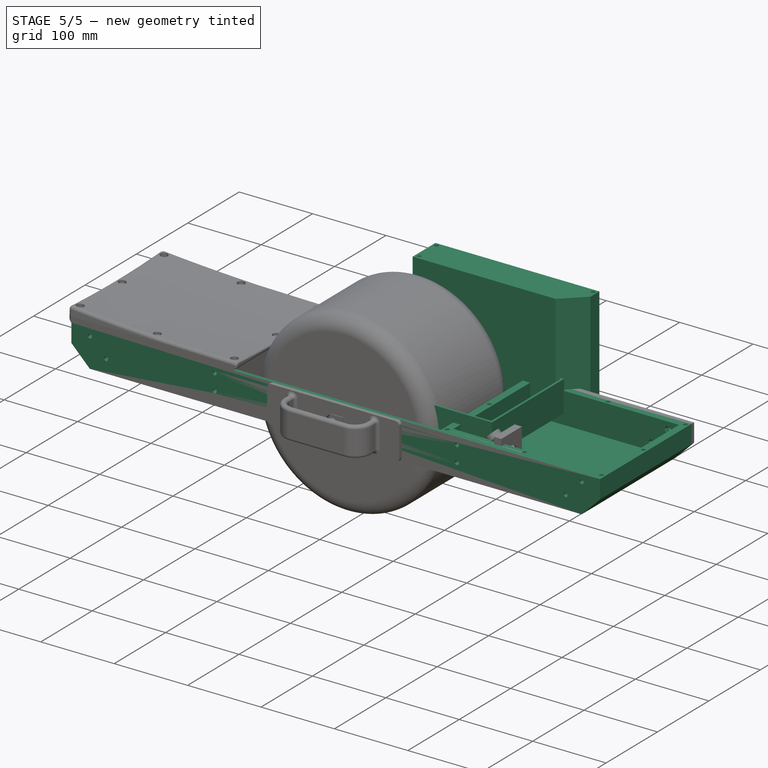
[diagram: stage 5 of 5 — iso view after this stage's code; geometry added in this stage tinted green]
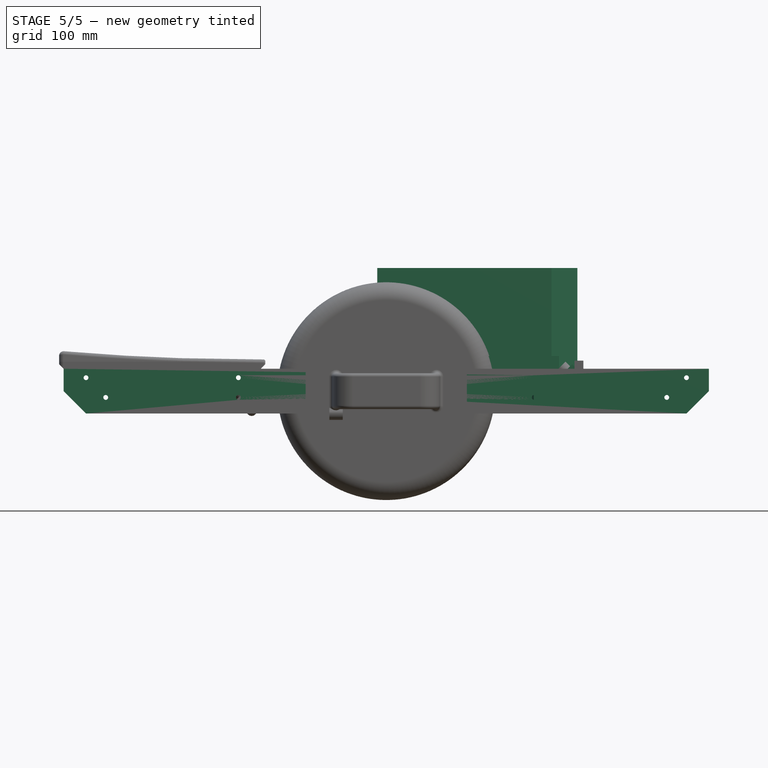
[diagram: stage 5 of 5 — front view after this stage's code; geometry added in this stage tinted green]
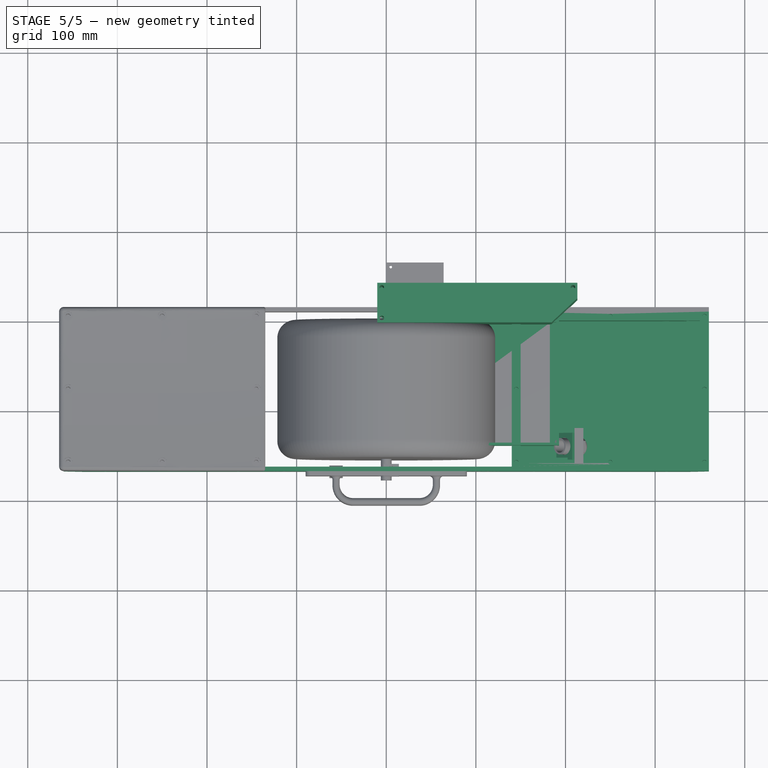
[diagram: stage 5 of 5 — top view after this stage's code; geometry added in this stage tinted green]
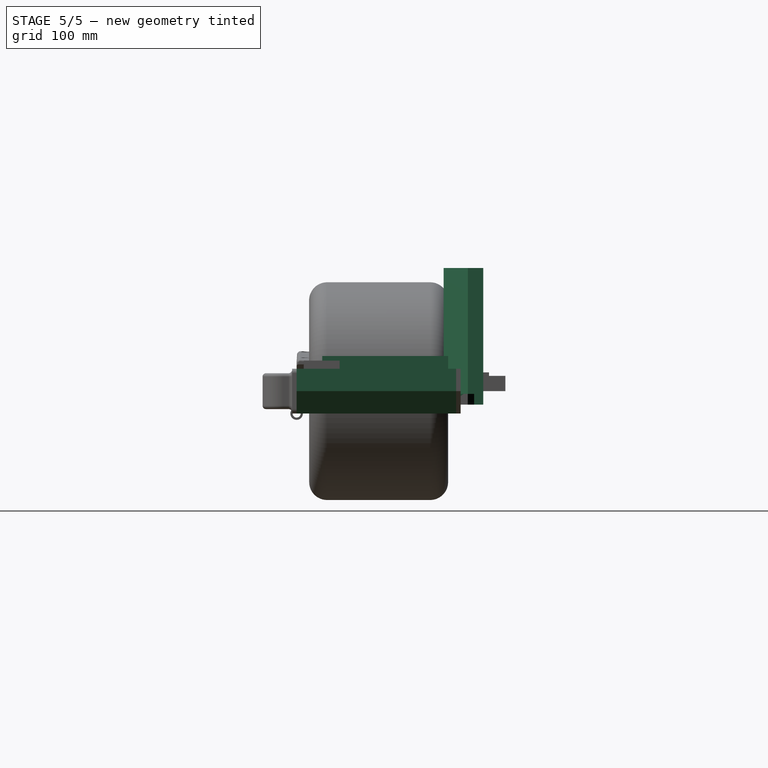
[diagram: stage 5 of 5 — right view after this stage's code; geometry added in this stage tinted green]
FEATURE [Sketcher::SketchObject] Sketch003
  MapMode = 5
  Support = -> [XY_Plane001]
  expr: Constraints[84] = Spreadsheet001.B2 / 2 + Spreadsheet001.B3
  expr: Constraints[212] = Spreadsheet001.B2 / 2 + Spreadsheet001.B3
  expr: Constraints[89] = Spreadsheet001.B2 / 2 + Spreadsheet001.B3
  expr: Constraints[83] = Spreadsheet001.B2 / 2 + Spreadsheet001.B3
  expr: Constraints[85] = Spreadsheet001.B2 / 2 + Spreadsheet001.B3
  expr: Constraints[18] = Spreadsheet001.B2 / 2 + Spreadsheet001.B3
  expr: Constraints[0] = Spreadsheet001.B2 / 2
  expr: Constraints[82] = Spreadsheet001.B2 + Spreadsheet001.B1
  expr: Constraints[19] = Spreadsheet001.B2 / 2 + Spreadsheet001.B3
  sketch-geometry (78):
    g0: Circle CenterX=10.975 CenterY=10.975 CenterZ=0 NormalX=0 NormalY=0 NormalZ=1 AngleXU=0 Radius=9.375
    g1: LineSegment [constr] StartX=0 StartY=0 StartZ=0 EndX=181.55 EndY=0 EndZ=0
    g2: LineSegment [constr] StartX=0 StartY=39.2272 StartZ=0 EndX=0 EndY=0 EndZ=0
    g3: Circle CenterX=20.95 CenterY=28.2522 CenterZ=0 NormalX=0 NormalY=0 NormalZ=1 AngleXU=0 Radius=9.375
    g4: Circle CenterX=30.925 CenterY=10.975 CenterZ=0 NormalX=0 NormalY=0 NormalZ=1 AngleXU=0 Radius=9.375
    g5: Circle CenterX=40.9 CenterY=28.2522 CenterZ=0 NormalX=0 NormalY=0 NormalZ=1 AngleXU=0 Radius=9.375
    g6: Circle CenterX=50.875 CenterY=10.975 CenterZ=0 NormalX=0 NormalY=0 NormalZ=1 AngleXU=0 Radius=9.375
    g7: Circle CenterX=60.85 CenterY=28.2522 CenterZ=0 NormalX=0 NormalY=0 NormalZ=1 AngleXU=0 Radius=9.375
    g8: Circle CenterX=70.825 CenterY=10.975 CenterZ=0 NormalX=0 NormalY=0 NormalZ=1 AngleXU=0 Radius=9.375
    g9: Circle CenterX=80.8 CenterY=28.2522 CenterZ=0 NormalX=0 NormalY=0 NormalZ=1 AngleXU=0 Radius=9.375
    g10: Circle CenterX=90.775 CenterY=10.975 CenterZ=0 NormalX=0 NormalY=0 NormalZ=1 AngleXU=0 Radius=9.375
    g11: Circle CenterX=100.75 CenterY=28.2522 CenterZ=0 NormalX=0 NormalY=0 NormalZ=1 AngleXU=0 Radius=9.375
    g12: Circle CenterX=110.725 CenterY=10.975 CenterZ=0 NormalX=0 NormalY=0 NormalZ=1 AngleXU=0 Radius=9.375
    g13: Circle CenterX=120.7 CenterY=28.2522 CenterZ=0 NormalX=0 NormalY=0 NormalZ=1 AngleXU=0 Radius=9.375
    g14: LineSegment [constr] StartX=131.675 StartY=39.2272 StartZ=0 EndX=131.675 EndY=21.95 EndZ=0
    g15: LineSegment [constr] StartX=131.675 StartY=21.95 StartZ=0 EndX=181.55 EndY=21.95 EndZ=0
    g16: LineSegment [constr] StartX=181.55 StartY=21.95 StartZ=0 EndX=181.55 EndY=0 EndZ=0
    g17: Circle CenterX=130.675 CenterY=10.975 CenterZ=0 NormalX=0 NormalY=0 NormalZ=1 AngleXU=0 Radius=9.375
    g18: Circle CenterX=150.625 CenterY=10.975 CenterZ=0 NormalX=0 NormalY=0 NormalZ=1 AngleXU=0 Radius=9.375
    g19: Circle CenterX=170.575 CenterY=10.975 CenterZ=0 NormalX=0 NormalY=0 NormalZ=1 AngleXU=0 Radius=9.375
    g20: LineSegment [constr] StartX=10.975 StartY=10.975 StartZ=0 EndX=20.95 EndY=28.2522 EndZ=0
    g21: LineSegment [constr] StartX=10.975 StartY=10.975 StartZ=0 EndX=30.925 EndY=10.975 EndZ=0
    g22: LineSegment [constr] StartX=30.925 StartY=10.975 StartZ=0 EndX=50.875 EndY=10.975 EndZ=0
    g23: LineSegment [constr] StartX=50.875 StartY=10.975 StartZ=0 EndX=70.825 EndY=10.975 EndZ=0
    g24: LineSegment [constr] StartX=70.825 StartY=10.975 StartZ=0 EndX=90.775 EndY=10.975 EndZ=0
    g25: LineSegment [constr] StartX=90.775 StartY=10.975 StartZ=0 EndX=110.725 EndY=10.975 EndZ=0
    g26: LineSegment [constr] StartX=110.725 StartY=10.975 StartZ=0 EndX=130.675 EndY=10.975 EndZ=0
    g27: LineSegment [constr] StartX=130.675 StartY=10.975 StartZ=0 EndX=150.625 EndY=10.975 EndZ=0
    g28: LineSegment [constr] StartX=150.625 StartY=10.975 StartZ=0 EndX=170.575 EndY=10.975 EndZ=0
    g29: LineSegment [constr] StartX=20.95 StartY=28.2522 StartZ=0 EndX=40.9 EndY=28.2522 EndZ=0
    g30: LineSegment [constr] StartX=40.9 StartY=28.2522 StartZ=0 EndX=60.85 EndY=28.2522 EndZ=0
    g31: LineSegment [constr] StartX=60.85 StartY=28.2522 StartZ=0 EndX=80.8 EndY=28.2522 EndZ=0
    g32: LineSegment [constr] StartX=80.8 StartY=28.2522 StartZ=0 EndX=100.75 EndY=28.2522 EndZ=0
    g33: LineSegment [constr] StartX=100.75 StartY=28.2522 StartZ=0 EndX=120.7 EndY=28.2522 EndZ=0
    g34: ArcOfCircle CenterX=50.875 CenterY=39.2272 CenterZ=0 NormalX=0 NormalY=0 NormalZ=1 AngleXU=0 Radius=4 StartAngle=3.14159 EndAngle=6.28319
    g35: ArcOfCircle CenterX=70.825 CenterY=39.2272 CenterZ=0 NormalX=0 NormalY=0 NormalZ=1 AngleXU=0 Radius=4 StartAngle=3.14159 EndAngle=6.28319
    g36: ArcOfCircle CenterX=90.775 CenterY=39.2272 CenterZ=0 NormalX=0 NormalY=0 NormalZ=1 AngleXU=0 Radius=4 StartAngle=3.14159 EndAngle=6.28319
    g37: ArcOfCircle CenterX=110.725 CenterY=39.2272 CenterZ=0 NormalX=0 NormalY=0 NormalZ=1 AngleXU=0 Radius=4 StartAngle=3.14159 EndAngle=6.28319
    g38: LineSegment [constr] StartX=0 StartY=39.2272 StartZ=0 EndX=131.675 EndY=39.2272 EndZ=0
    g39: LineSegment [constr] StartX=114.725 StartY=39.2272 StartZ=0 EndX=131.681 EndY=39.2284 EndZ=0
    g40: LineSegment [constr] StartX=30.925 StartY=39.2272 StartZ=0 EndX=30.925 EndY=10.975 EndZ=0
    g41: LineSegment [constr] StartX=50.875 StartY=39.2272 StartZ=0 EndX=50.875 EndY=10.975 EndZ=0
    g42: LineSegment [constr] StartX=70.825 StartY=39.2272 StartZ=0 EndX=70.825 EndY=10.975 EndZ=0
    g43: LineSegment [constr] StartX=90.775 StartY=39.2272 StartZ=0 EndX=90.775 EndY=10.975 EndZ=0
    g44: LineSegment [constr] StartX=110.725 StartY=39.2272 StartZ=0 EndX=110.725 EndY=10.975 EndZ=0
    g45: ArcOfCircle CenterX=30.925 CenterY=39.2272 CenterZ=0 NormalX=0 NormalY=0 NormalZ=1 AngleXU=0 Radius=4 StartAngle=3.14159 EndAngle=6.28319
    g46: ArcOfCircle CenterX=20.95 CenterY=0 CenterZ=0 NormalX=0 NormalY=0 NormalZ=1 AngleXU=0 Radius=4 StartAngle=0 EndAngle=3.14159
    g47: ArcOfCircle CenterX=40.9 CenterY=0 CenterZ=0 NormalX=0 NormalY=0 NormalZ=1 AngleXU=0 Radius=4 StartAngle=0 EndAngle=3.14159
    g48: ArcOfCircle CenterX=60.85 CenterY=0 CenterZ=0 NormalX=0 NormalY=0 NormalZ=1 AngleXU=0 Radius=4 StartAngle=0 EndAngle=3.14159
    g49: ArcOfCircle CenterX=80.8 CenterY=0 CenterZ=0 NormalX=0 NormalY=0 NormalZ=1 AngleXU=0 Radius=4 StartAngle=0 EndAngle=3.14159
    g50: ArcOfCircle CenterX=100.75 CenterY=0 CenterZ=0 NormalX=0 NormalY=0 NormalZ=1 AngleXU=0 Radius=4 StartAngle=0 EndAngle=3.14159
    g51: ArcOfCircle CenterX=120.7 CenterY=0 CenterZ=0 NormalX=0 NormalY=0 NormalZ=1 AngleXU=0 Radius=4 StartAngle=0 EndAngle=3.14159
    g52: ArcOfCircle CenterX=140.65 CenterY=0 CenterZ=0 NormalX=0 NormalY=0 NormalZ=1 AngleXU=0 Radius=4 StartAngle=0 EndAngle=3.14159
    g53: ArcOfCircle CenterX=160.6 CenterY=0 CenterZ=0 NormalX=0 NormalY=0 NormalZ=1 AngleXU=0 Radius=4 StartAngle=0 EndAngle=3.14159
    g54: LineSegment [constr] StartX=20.95 StartY=28.2522 StartZ=0 EndX=20.95 EndY=0 EndZ=0
    g55: LineSegment [constr] StartX=40.9 StartY=28.2522 StartZ=0 EndX=40.9 EndY=0 EndZ=0
    g56: LineSegment [constr] StartX=181.55 StartY=21.95 StartZ=0 EndX=181.55 EndY=0 EndZ=0
    g57: LineSegment StartX=181.55 StartY=0 StartZ=0 EndX=181.55 EndY=21.95 EndZ=0
    g58: LineSegment StartX=181.55 StartY=21.95 StartZ=0 EndX=138.831 EndY=21.95 EndZ=0
    g59: LineSegment StartX=131.675 StartY=29.1065 StartZ=0 EndX=131.675 EndY=39.2272 EndZ=0
    g60: LineSegment StartX=0 StartY=22.8232 StartZ=0 EndX=0 EndY=0 EndZ=0
    g61: LineSegment StartX=164.6 StartY=0 StartZ=0 EndX=181.55 EndY=0 EndZ=0
    g62: LineSegment StartX=156.6 StartY=-1e-12 StartZ=0 EndX=144.65 EndY=0 EndZ=0
    g63: LineSegment StartX=136.65 StartY=-1e-12 StartZ=0 EndX=124.7 EndY=0 EndZ=0
    g64: LineSegment StartX=116.7 StartY=-1e-12 StartZ=0 EndX=104.75 EndY=0 EndZ=0
    g65: LineSegment StartX=96.75 StartY=-1e-12 StartZ=0 EndX=84.8 EndY=0 EndZ=0
    g66: LineSegment StartX=76.8 StartY=-1e-12 StartZ=0 EndX=64.85 EndY=0 EndZ=0
    g67: LineSegment StartX=56.85 StartY=-1e-12 StartZ=0 EndX=44.9 EndY=0 EndZ=0
    g68: LineSegment StartX=16.95 StartY=-1e-12 StartZ=0 EndX=0 EndY=0 EndZ=0
    g69: LineSegment StartX=36.9 StartY=-1e-12 StartZ=0 EndX=24.95 EndY=0 EndZ=0
    g70: LineSegment StartX=16.404 StartY=39.2272 StartZ=0 EndX=26.925 EndY=39.2272 EndZ=0
    g71: LineSegment StartX=34.925 StartY=39.2272 StartZ=0 EndX=46.875 EndY=39.2272 EndZ=0
    g72: LineSegment StartX=54.875 StartY=39.2272 StartZ=0 EndX=66.825 EndY=39.2272 EndZ=0
    g73: LineSegment StartX=74.825 StartY=39.2272 StartZ=0 EndX=86.775 EndY=39.2272 EndZ=0
    g74: LineSegment StartX=94.775 StartY=39.2272 StartZ=0 EndX=106.725 EndY=39.2272 EndZ=0
    g75: LineSegment StartX=114.725 StartY=39.2272 StartZ=0 EndX=131.675 EndY=39.2272 EndZ=0
    g76: LineSegment StartX=131.675 StartY=29.1065 StartZ=0 EndX=138.831 EndY=21.95 EndZ=0
    g77: LineSegment StartX=0 StartY=22.8232 StartZ=0 EndX=16.404 EndY=39.2272 EndZ=0
  constraints (217):
    c: Radius(g0) = 9.375
    c: Coincident(g2,g1)
    c: Horizontal(g1)
    c: Vertical(g2)
    c: Coincident(g1,g-1)
    c: Equal(g0,g3) = 18.75
    c: Vertical(g14)
    c: Coincident(g14,g15)
    c: Horizontal(g15)
    c: Coincident(g15,g16)
    c: Vertical(g16)
    c: Coincident(g1,g16)
    c: Coincident(g20,g3)
    c: Coincident(g20,g0)
    c: Coincident(g21,g0)
    c: Coincident(g21,g4)
    c: Equal(g20,g21)
    c: Horizontal(g21)
    c: Distance(g0,g1) = 10.975
    c: Distance(g0,g2) = 10.975
    c: Coincident(g22,g4)
    c: Coincident(g22,g6)
    c: Horizontal(g22)
    c: Coincident(g22,g23)
    c: Coincident(g23,g8)
    c: Coincident(g23,g24)
    c: Coincident(g24,g10)
    c: Coincident(g24,g25)
    c: Horizontal(g25)
    c: Coincident(g25,g26)
    c: Coincident(g26,g17)
    c: Coincident(g26,g27)
    c: Coincident(g27,g28)
    c: Coincident(g28,g19)
    c: Coincident(g18,g27)
    c: Coincident(g25,g12)
    c: Horizontal(g23)
    c: Horizontal(g24)
    c: Horizontal(g26)
    c: Horizontal(g27)
    c: Horizontal(g28)
    c: Equal(g28,g27)
    c: Equal(g27,g26)
    c: Equal(g26,g25)
    c: Equal(g25,g24)
    c: Equal(g24,g23)
    c: Equal(g23,g22)
    c: Equal(g22,g21)
    c: Angle(g21,g20) = 1.0472
    c: Coincident(g29,g3)
    c: Coincident(g29,g5)
    c: Horizontal(g29)
    c: Coincident(g29,g30)
    c: Coincident(g30,g7)
    c: Coincident(g30,g31)
    c: Coincident(g31,g9)
    c: Coincident(g31,g32)
    c: Coincident(g32,g11)
    c: Coincident(g32,g33)
    c: Coincident(g33,g13)
    c: Horizontal(g33)
    c: Horizontal(g32)
    c: Horizontal(g31)
    c: Horizontal(g30)
    c: Equal(g29,g30)
    c: Equal(g30,g31)
    c: Equal(g31,g20)
    c: Equal(g20,g32)
    c: Equal(g32,g33)
    c: Equal(g3,g4)
    c: Equal(g4,g5)
    c: Equal(g5,g6)
    c: Equal(g6,g7)
    c: Equal(g7,g8)
    c: Equal(g8,g9)
    c: Equal(g9,g10)
    c: Equal(g10,g11)
    c: Equal(g11,g12)
    c: Equal(g12,g13)
    c: Equal(g13,g17)
    c: Equal(g17,g18)
    c: Equal(g18,g19)
    c: Distance(g21) = 19.95
    c: Distance(g13,g14) = 10.975
    c: Distance(g19,g15) = 10.975
    c: Distance(g19,g16) = 10.975
    c: Coincident(g38,g2)
    c: Coincident(g38,g14)
    c: Horizontal(g38)
    c: Distance(g3,g38) = 10.975
    c: PointOnObject(g45,g38)
    c: PointOnObject(g34,g38)
    c: PointOnObject(g34,g38)
    c: PointOnObject(g35,g38)
    c: PointOnObject(g35,g38)
    c: PointOnObject(g36,g38)
    c: PointOnObject(g36,g38)
    c: PointOnObject(g37,g38)
    c: PointOnObject(g37,g38)
    c: Coincident(g39,g37)
    c: PointOnObject(g34,g38)
    c: PointOnObject(g35,g38)
    c: PointOnObject(g36,g38)
    c: PointOnObject(g37,g38)
    c: Coincident(g40,g4)
    c: Vertical(g40)
    c: Vertical(g41)
    c: Vertical(g42)
    c: Coincident(g42,g35)
    c: Vertical(g43)
    c: Coincident(g43,g36)
    c: Vertical(g44)
    c: Coincident(g44,g37)
    c: Coincident(g44,g12)
    c: Coincident(g43,g10)
    c: Coincident(g8,g42)
    c: Coincident(g6,g41)
    c: Coincident(g41,g34)
    c: Coincident(g45,g40)
    c: PointOnObject(g45,g38)
    c: Equal(g45,g34)
    c: Radius(g45) = 4
    c: Equal(g34,g35)
    c: Equal(g35,g36)
    c: Equal(g36,g37)
    c: PointOnObject(g46,g1)
    c: PointOnObject(g46,g1)
    c: PointOnObject(g46,g1)
    c: Equal(g46,g45)
    c: PointOnObject(g47,g1)
    c: PointOnObject(g47,g1)
    c: PointOnObject(g47,g1)
    c: PointOnObject(g48,g1)
    c: PointOnObject(g48,g1)
    c: PointOnObject(g48,g1)
    c: PointOnObject(g49,g1)
    c: PointOnObject(g49,g1)
    c: PointOnObject(g49,g1)
    c: PointOnObject(g50,g1)
    c: PointOnObject(g50,g1)
    c: PointOnObject(g50,g1)
    c: PointOnObject(g51,g1)
    c: PointOnObject(g51,g1)
    c: PointOnObject(g51,g1)
    c: PointOnObject(g52,g1)
    c: PointOnObject(g52,g1)
    c: PointOnObject(g52,g1)
    c: PointOnObject(g53,g1)
    c: PointOnObject(g53,g1)
    c: PointOnObject(g53,g1)
    c: Equal(g46,g47)
    c: Equal(g47,g48)
    c: Equal(g48,g49)
    c: Equal(g49,g50)
    c: Equal(g50,g51)
    c: Equal(g51,g52)
    c: Equal(g52,g53)
    c: Coincident(g54,g3)
    c: Coincident(g54,g46)
    c: Vertical(g54)
    c: Coincident(g55,g5)
    c: Coincident(g55,g47)
    c: Vertical(g55)
    c: Coincident(g56,g1)
    c: Coincident(g56,g15)
    c: Coincident(g57,g58)
    c: Vertical(g60)
    c: Coincident(g57,g15)
    c: Coincident(g59,g14)
    c: Coincident(g61,g53)
    c: Coincident(g62,g53)
    c: Coincident(g62,g52)
    c: Coincident(g52,g63)
    c: Coincident(g64,g51)
    c: Coincident(g65,g50)
    c: Coincident(g66,g49)
    c: Coincident(g67,g48)
    c: Coincident(g67,g47)
    c: Coincident(g66,g48)
    c: Coincident(g65,g49)
    c: Coincident(g64,g50)
    c: Coincident(g68,g60)
    c: Coincident(g68,g46)
    c: Coincident(g51,g63)
    c: Coincident(g61,g1)
    c: Coincident(g69,g46)
    c: Coincident(g69,g47)
    c: Equal(g69,g67)
    c: Equal(g67,g66)
    c: Equal(g66,g65)
    c: Equal(g65,g64)
    c: Equal(g64,g63)
    c: Equal(g63,g62)
    c: Coincident(g60,g-1)
    c: Coincident(g75,g14)
    c: Coincident(g75,g37)
    c: Coincident(g37,g74)
    c: Coincident(g36,g74)
    c: Coincident(g36,g73)
    c: Coincident(g73,g35)
    c: Coincident(g35,g72)
    c: Coincident(g72,g34)
    c: Coincident(g34,g71)
    c: Coincident(g71,g45)
    c: Coincident(g45,g70)
    c: Coincident(g58,g76)
    c: Coincident(g59,g76)
    c: Angle(g76) = -0.785398
    c: PointOnObject(g58,g15)
    c: PointOnObject(g59,g14)
    c: Equal(g76,g59)
    c: Angle(g77) = 0.785398
    c: Distance(g3,g77) = 10.975
    c: Coincident(g60,g77)
    c: Coincident(g70,g77)
    c: PointOnObject(g70,g38)
    c: PointOnObject(g40,g38)
FEATURE [Spreadsheet::Sheet] Spreadsheet001  label="Akku"
  cells = A1=InnerPadding; B1=1.2; C1=LidDiameter; D1==B2 - 4; A2=ExtraDiameter; B2=18.75; A3=OuterPadding; B3=1.6000000000000001; A4=#BmsLength; B4(BmsLength)=50
FEATURE [PartDesign::Pad] Pad003
  Length = 15
  Length2 = 100
  Profile = -> Sketch003
  Reversed = true
  Type = 0
FEATURE [Sketcher::SketchObject] Sketch004
  ExternalGeometry = -> [Pad003]
  MapMode = 5
  Support = -> [XY_Plane001]
  expr: Constraints[14] = Spreadsheet001.D1 / 2
  sketch-geometry (23):
    g0: Circle CenterX=10.975 CenterY=10.975 CenterZ=0 NormalX=0 NormalY=0 NormalZ=1 AngleXU=0 Radius=7.375
    g1: Circle CenterX=20.95 CenterY=28.2522 CenterZ=0 NormalX=0 NormalY=0 NormalZ=1 AngleXU=0 Radius=7.375
    g2: Circle CenterX=30.925 CenterY=10.975 CenterZ=0 NormalX=0 NormalY=0 NormalZ=1 AngleXU=0 Radius=7.375
    g3: Circle CenterX=40.9 CenterY=28.2522 CenterZ=0 NormalX=0 NormalY=0 NormalZ=1 AngleXU=0 Radius=7.375
    g4: Circle CenterX=50.875 CenterY=10.975 CenterZ=0 NormalX=0 NormalY=0 NormalZ=1 AngleXU=0 Radius=7.375
    g5: Circle CenterX=60.85 CenterY=28.2522 CenterZ=0 NormalX=0 NormalY=0 NormalZ=1 AngleXU=0 Radius=7.375
    g6: Circle CenterX=70.825 CenterY=10.975 CenterZ=0 NormalX=0 NormalY=0 NormalZ=1 AngleXU=0 Radius=7.375
    g7: Circle CenterX=80.8 CenterY=28.2522 CenterZ=0 NormalX=0 NormalY=0 NormalZ=1 AngleXU=0 Radius=7.375
    g8: Circle CenterX=90.775 CenterY=10.975 CenterZ=0 NormalX=0 NormalY=0 NormalZ=1 AngleXU=0 Radius=7.375
    g9: Circle CenterX=100.75 CenterY=28.2522 CenterZ=0 NormalX=0 NormalY=0 NormalZ=1 AngleXU=0 Radius=7.375
    g10: Circle CenterX=110.725 CenterY=10.975 CenterZ=0 NormalX=0 NormalY=0 NormalZ=1 AngleXU=0 Radius=7.375
    g11: Circle CenterX=120.7 CenterY=28.2522 CenterZ=0 NormalX=0 NormalY=0 NormalZ=1 AngleXU=0 Radius=7.375
    g12: Circle CenterX=130.675 CenterY=10.975 CenterZ=0 NormalX=0 NormalY=0 NormalZ=1 AngleXU=0 Radius=7.375
    g13: Circle CenterX=150.625 CenterY=10.975 CenterZ=0 NormalX=0 NormalY=0 NormalZ=1 AngleXU=0 Radius=7.375
    g14: Circle CenterX=170.575 CenterY=10.975 CenterZ=0 NormalX=0 NormalY=0 NormalZ=1 AngleXU=0 Radius=7.375
    g15: LineSegment StartX=0 StartY=0 StartZ=0 EndX=0 EndY=22.8232 EndZ=0
    g16: LineSegment StartX=16.404 StartY=39.2272 StartZ=0 EndX=131.675 EndY=39.2272 EndZ=0
    g17: LineSegment StartX=131.675 StartY=39.2272 StartZ=0 EndX=131.675 EndY=29.1065 EndZ=0
    g18: LineSegment StartX=138.831 StartY=21.95 StartZ=0 EndX=181.55 EndY=21.95 EndZ=0
    g19: LineSegment StartX=181.55 StartY=21.95 StartZ=0 EndX=181.55 EndY=0 EndZ=0
    g20: LineSegment StartX=181.55 StartY=0 StartZ=0 EndX=0 EndY=0 EndZ=0
    g21: LineSegment StartX=0 StartY=22.8232 StartZ=0 EndX=16.404 EndY=39.2272 EndZ=0
    g22: LineSegment StartX=131.675 StartY=29.1065 StartZ=0 EndX=138.831 EndY=21.95 EndZ=0
  constraints (34):
    c: Equal(g0,g1)
    c: Equal(g1,g2)
    c: Equal(g2,g3)
    c: Equal(g3,g4)
    c: Equal(g4,g5)
    c: Equal(g5,g6)
    c: Equal(g6,g7)
    c: Equal(g7,g8)
    c: Equal(g8,g9)
    c: Equal(g9,g10)
    c: Equal(g10,g11)
    c: Equal(g11,g12)
    c: Equal(g12,g13)
    c: Equal(g13,g14)
    c: Radius(g0) = 7.375
    c: Coincident(g-1,g15)
    c: Coincident(g16,g17)
    c: Coincident(g18,g19)
    c: Vertical(g19)
    c: Coincident(g19,g20)
    c: Coincident(g20,g15)
    c: Horizontal(g20)
    c: Coincident(g15,g21)
    c: Coincident(g16,g21)
    c: Coincident(g15,g-3)
    c: Coincident(g16,g-3)
    c: Horizontal(g18)
    c: Vertical(g17)
    c: Coincident(g17,g22)
    c: Coincident(g18,g22)
    c: Horizontal(g16)
    c: DistanceX(g18) = 181.55
    c: Coincident(g17,g-4)
    c: Coincident(g-4,g18)
FEATURE [PartDesign::Pad] Pad004
  BaseFeature = -> Pad003
  Length = 0.6
  Length2 = 100
  Profile = -> Sketch004
  Type = 0
FEATURE [PartDesign::Body] Body001  label="Holder"
  Group = -> [Sketch003,Sketch004,Pad003,Pad004]
  Origin = -> Origin001
  Tip = -> Pad004
FEATURE [Sketcher::SketchObject] Sketch005
  MapMode = 5
  Support = -> [XY_Plane002]
  sketch-geometry (1):
    g0: Circle CenterX=0 CenterY=0 CenterZ=0 NormalX=0 NormalY=0 NormalZ=1 AngleXU=0 Radius=9.3
  constraints (2):
    c: Coincident(g0,g-1)
    c: Radius(g0) = 9.3
FEATURE [PartDesign::Pad] Pad005
  Length = 65
  Length2 = 100
  Profile = -> Sketch005
  Type = 0
FEATURE [Part::FeaturePython] Fillet01  # WARN: FeaturePython — macro-defined, semantics opaque (R4)
FEATURE [Part::FeaturePython] Fillet02  # WARN: FeaturePython — macro-defined, semantics opaque (R4)
FEATURE [Part::FeaturePython] Fillet03  # WARN: FeaturePython — macro-defined, semantics opaque (R4)
FEATURE [PartDesign::Fillet] Fillet
  Base = -> Pad005 [Edge3]
  BaseFeature = -> Pad005
  Radius = 1
FEATURE [PartDesign::Fillet] Fillet001
  Base = -> Fillet [Edge3]
  BaseFeature = -> Fillet
  Radius = 1
FEATURE [PartDesign::Body] Body002  label="18650"
  Group = -> [Sketch005,Pad005,Fillet,Fillet001]
  Origin = -> Origin002
  Tip = -> Fillet001
FEATURE [Part::Feature] Shell  label="Holder1"
  Placement = pos=(20.975,-17.6,18.975) rot=(1,0,0;1.5708rad)
  shape: bbox 181.6 x 66.2 x 39.23 mm, 209 faces, 0 solids (baked)
FEATURE [Part::Feature] Clone006  label="Holder2"
  Placement = pos=(20.975,-90.4,18.975) rot=(1,0,0;1.5708rad)
  shape: bbox 181.6 x 66.2 x 39.23 mm, 209 faces, 0 solids (baked)
FEATURE [Sketcher::SketchObject] Sketch006  label="Batteries"
  MapMode = 5
  Placement = pos=(0,0,0) rot=(1,0,0;1.5708rad)
  Support = -> [XZ_Plane003]
  expr: Constraints[10] = Spreadsheet003.HolderDepth
  expr: Constraints[22] = Spreadsheet003.HolderGap
  expr: Constraints[9] = Spreadsheet003.HolderLength
  sketch-geometry (8):
    g0: LineSegment StartX=0 StartY=66.2 StartZ=0 EndX=181.55 EndY=66.2 EndZ=0
    g1: LineSegment StartX=181.55 StartY=66.2 StartZ=0 EndX=181.55 EndY=0 EndZ=0
    g2: LineSegment StartX=181.55 StartY=0 StartZ=0 EndX=0 EndY=0 EndZ=0
    g3: LineSegment StartX=0 StartY=0 StartZ=0 EndX=0 EndY=66.2 EndZ=0
    g4: LineSegment StartX=0 StartY=134.4 StartZ=0 EndX=181.55 EndY=134.4 EndZ=0
    g5: LineSegment StartX=181.55 StartY=134.4 StartZ=0 EndX=181.55 EndY=68.2 EndZ=0
    g6: LineSegment StartX=181.55 StartY=68.2 StartZ=0 EndX=0 EndY=68.2 EndZ=0
    g7: LineSegment StartX=0 StartY=68.2 StartZ=0 EndX=0 EndY=134.4 EndZ=0
  constraints (23):
    c: Coincident(g0,g1)
    c: Coincident(g1,g2)
    c: Coincident(g2,g3)
    c: Coincident(g3,g0)
    c: Horizontal(g0)
    c: Horizontal(g2)
    c: Vertical(g1)
    c: Vertical(g3)
    c: Coincident(g2,g-1)
    c: Distance(g0) = 181.55
    c: Distance(g1) = 66.2
    c: Coincident(g4,g5)
    c: Coincident(g5,g6)
    c: Coincident(g6,g7)
    c: Coincident(g7,g4)
    c: Horizontal(g4)
    c: Horizontal(g6)
    c: Vertical(g5)
    c: Vertical(g7)
    c: PointOnObject(g4,g-2)
    c: Equal(g6,g0)
    c: Equal(g5,g1)
    c: DistanceY(g0,g5) = 2
FEATURE [Spreadsheet::Sheet] Spreadsheet003  label="Box"
  cells = A1=#HolderDepth; B1(HolderDepth)=66.200000000000003; A2=#HolderLength; B2(HolderLength)=181.55000000000001; A3=#HolderGap; B3(HolderGap)=2; A4=#HolderHeight; B4(HolderHeight)=40; C4=Dont use; A5=; B5=; A6=#OuterWallThickness; B6(OuterWallThickness)=3; A7=#XZPadding; B7(XZPadding)=1; A8=#ScrewDiameter; B8(ScrewDiameter)=5; A9=#BottomThickness; B9(BottomThickness)=8; A10=#BmsExtra; B10(BmsExtra)=1; A11=#TopRoom; B11(TopRoom)=0; A12=#XHolderGap; B12(XHolderGap)=1
FEATURE [Sketcher::SketchObject] Sketch007
  MapMode = 5
  Support = -> [XY_Plane003]
  expr: Constraints[9] = Spreadsheet003.HolderHeight
  expr: Constraints[8] = Spreadsheet003.HolderLength
  sketch-geometry (4):
    g0: LineSegment StartX=0 StartY=40 StartZ=0 EndX=181.55 EndY=40 EndZ=0
    g1: LineSegment StartX=181.55 StartY=40 StartZ=0 EndX=181.55 EndY=0 EndZ=0
    g2: LineSegment StartX=181.55 StartY=0 StartZ=0 EndX=0 EndY=0 EndZ=0
    g3: LineSegment StartX=0 StartY=0 StartZ=0 EndX=0 EndY=40 EndZ=0
  constraints (11):
    c: Coincident(g0,g1)
    c: Coincident(g1,g2)
    c: Coincident(g2,g3)
    c: Coincident(g3,g0)
    c: Horizontal(g0)
    c: Horizontal(g2)
    c: Vertical(g1)
    c: Vertical(g3)
    c: Distance(g2) = 181.55
    c: Distance(g1) = 40
    c: Coincident(g2,g-1)
FEATURE [Sketcher::SketchObject] Sketch008
  MapMode = 5
  Support = -> [XY_Plane003]
FEATURE [Sketcher::SketchObject] Sketch009  label="HolderTemplate"
  sketch-geometry (49):
    g0: Circle CenterX=10.975 CenterY=10.975 CenterZ=0 NormalX=0 NormalY=0 NormalZ=1 AngleXU=0 Radius=9.375
    g1: Circle CenterX=20.95 CenterY=28.2522 CenterZ=0 NormalX=0 NormalY=0 NormalZ=1 AngleXU=0 Radius=9.375
    g2: Circle CenterX=30.925 CenterY=10.975 CenterZ=0 NormalX=0 NormalY=0 NormalZ=1 AngleXU=0 Radius=9.375
    g3: Circle CenterX=40.9 CenterY=28.2522 CenterZ=0 NormalX=0 NormalY=0 NormalZ=1 AngleXU=0 Radius=9.375
    g4: Circle CenterX=50.875 CenterY=10.975 CenterZ=0 NormalX=0 NormalY=0 NormalZ=1 AngleXU=0 Radius=9.375
    g5: Circle CenterX=60.85 CenterY=28.2522 CenterZ=0 NormalX=0 NormalY=0 NormalZ=1 AngleXU=0 Radius=9.375
    g6: Circle CenterX=70.825 CenterY=10.975 CenterZ=0 NormalX=0 NormalY=0 NormalZ=1 AngleXU=0 Radius=9.375
    g7: Circle CenterX=80.8 CenterY=28.2522 CenterZ=0 NormalX=0 NormalY=0 NormalZ=1 AngleXU=0 Radius=9.375
    g8: Circle CenterX=90.775 CenterY=10.975 CenterZ=0 NormalX=0 NormalY=0 NormalZ=1 AngleXU=0 Radius=9.375
    g9: Circle CenterX=100.75 CenterY=28.2522 CenterZ=0 NormalX=0 NormalY=0 NormalZ=1 AngleXU=0 Radius=9.375
    g10: Circle CenterX=110.725 CenterY=10.975 CenterZ=0 NormalX=0 NormalY=0 NormalZ=1 AngleXU=0 Radius=9.375
    g11: Circle CenterX=120.7 CenterY=28.2522 CenterZ=0 NormalX=0 NormalY=0 NormalZ=1 AngleXU=0 Radius=9.375
    g12: Circle CenterX=130.675 CenterY=10.975 CenterZ=0 NormalX=0 NormalY=0 NormalZ=1 AngleXU=0 Radius=9.375
    g13: Circle CenterX=150.625 CenterY=10.975 CenterZ=0 NormalX=0 NormalY=0 NormalZ=1 AngleXU=0 Radius=9.375
    g14: Circle CenterX=170.575 CenterY=10.975 CenterZ=0 NormalX=0 NormalY=0 NormalZ=1 AngleXU=0 Radius=9.375
    g15: LineSegment StartX=0 StartY=22.8232 StartZ=0 EndX=16.404 EndY=39.2272 EndZ=0
    g16: LineSegment StartX=16.404 StartY=39.2272 StartZ=0 EndX=26.925 EndY=39.2272 EndZ=0
    g17: ArcOfCircle CenterX=30.925 CenterY=39.2272 CenterZ=0 NormalX=0 NormalY=0 NormalZ=1 AngleXU=0 Radius=4 StartAngle=3.14159 EndAngle=6.28319
    g18: LineSegment StartX=34.925 StartY=39.2272 StartZ=0 EndX=46.875 EndY=39.2272 EndZ=0
    g19: ArcOfCircle CenterX=50.875 CenterY=39.2272 CenterZ=0 NormalX=0 NormalY=0 NormalZ=1 AngleXU=0 Radius=4 StartAngle=3.14159 EndAngle=6.28319
    g20: LineSegment StartX=54.875 StartY=39.2272 StartZ=0 EndX=66.825 EndY=39.2272 EndZ=0
    g21: ArcOfCircle CenterX=70.825 CenterY=39.2272 CenterZ=0 NormalX=0 NormalY=0 NormalZ=1 AngleXU=0 Radius=4 StartAngle=3.14159 EndAngle=6.28319
    g22: LineSegment StartX=74.825 StartY=39.2272 StartZ=0 EndX=86.775 EndY=39.2272 EndZ=0
    g23: ArcOfCircle CenterX=90.775 CenterY=39.2272 CenterZ=0 NormalX=0 NormalY=0 NormalZ=1 AngleXU=0 Radius=4 StartAngle=3.14159 EndAngle=6.28319
    g24: LineSegment StartX=94.775 StartY=39.2272 StartZ=0 EndX=106.725 EndY=39.2272 EndZ=0
    g25: ArcOfCircle CenterX=110.725 CenterY=39.2272 CenterZ=0 NormalX=0 NormalY=0 NormalZ=1 AngleXU=0 Radius=4 StartAngle=3.14159 EndAngle=6.28319
    g26: LineSegment StartX=114.725 StartY=39.2272 StartZ=0 EndX=131.675 EndY=39.2272 EndZ=0
    g27: LineSegment StartX=131.675 StartY=29.1065 StartZ=0 EndX=131.675 EndY=39.2272 EndZ=0
    g28: LineSegment StartX=131.675 StartY=29.1065 StartZ=0 EndX=138.831 EndY=21.95 EndZ=0
    g29: LineSegment StartX=181.55 StartY=21.95 StartZ=0 EndX=138.831 EndY=21.95 EndZ=0
    g30: LineSegment StartX=181.55 StartY=0 StartZ=0 EndX=181.55 EndY=21.95 EndZ=0
    g31: LineSegment StartX=164.6 StartY=0 StartZ=0 EndX=181.55 EndY=0 EndZ=0
    g32: ArcOfCircle CenterX=160.6 CenterY=0 CenterZ=0 NormalX=0 NormalY=0 NormalZ=1 AngleXU=0 Radius=4 StartAngle=0 EndAngle=3.14159
    g33: LineSegment StartX=156.6 StartY=0 StartZ=0 EndX=144.65 EndY=0 EndZ=0
    g34: ArcOfCircle CenterX=140.65 CenterY=0 CenterZ=0 NormalX=0 NormalY=0 NormalZ=1 AngleXU=0 Radius=4 StartAngle=0 EndAngle=3.14159
    g35: LineSegment StartX=136.65 StartY=-1e-12 StartZ=0 EndX=124.7 EndY=-1e-12 EndZ=0
    g36: ArcOfCircle CenterX=120.7 CenterY=0 CenterZ=0 NormalX=0 NormalY=0 NormalZ=1 AngleXU=0 Radius=4 StartAngle=0 EndAngle=3.14159
    g37: LineSegment StartX=116.7 StartY=-1e-12 StartZ=0 EndX=104.75 EndY=-1e-12 EndZ=0
    g38: ArcOfCircle CenterX=100.75 CenterY=0 CenterZ=0 NormalX=0 NormalY=0 NormalZ=1 AngleXU=0 Radius=4 StartAngle=0 EndAngle=3.14159
    g39: LineSegment StartX=96.75 StartY=-1e-12 StartZ=0 EndX=84.8 EndY=-1e-12 EndZ=0
    g40: ArcOfCircle CenterX=80.8 CenterY=0 CenterZ=0 NormalX=0 NormalY=0 NormalZ=1 AngleXU=0 Radius=4 StartAngle=0 EndAngle=3.14159
    g41: LineSegment StartX=76.8 StartY=-1e-12 StartZ=0 EndX=64.85 EndY=-1e-12 EndZ=0
    g42: ArcOfCircle CenterX=60.85 CenterY=0 CenterZ=0 NormalX=0 NormalY=0 NormalZ=1 AngleXU=0 Radius=4 StartAngle=0 EndAngle=3.14159
    g43: LineSegment StartX=56.85 StartY=0 StartZ=0 EndX=44.9 EndY=0 EndZ=0
    g44: ArcOfCircle CenterX=40.9 CenterY=0 CenterZ=0 NormalX=0 NormalY=0 NormalZ=1 AngleXU=0 Radius=4 StartAngle=0 EndAngle=3.14159
    g45: LineSegment StartX=36.9 StartY=0 StartZ=0 EndX=24.95 EndY=0 EndZ=0
    g46: ArcOfCircle CenterX=20.95 CenterY=0 CenterZ=0 NormalX=0 NormalY=0 NormalZ=1 AngleXU=0 Radius=4 StartAngle=0 EndAngle=3.14159
    g47: LineSegment StartX=16.95 StartY=-1e-12 StartZ=0 EndX=0 EndY=-1e-12 EndZ=0
    g48: LineSegment StartX=0 StartY=22.8232 StartZ=0 EndX=0 EndY=-1e-12 EndZ=0
  constraints (48):
    c: Coincident(g15,g16)
    c: Coincident(g16,g17)
    c: Coincident(g17,g18)
    c: Coincident(g18,g19)
    c: Coincident(g19,g20)
    c: Coincident(g20,g21)
    c: Coincident(g21,g22)
    c: Coincident(g22,g23)
    c: Coincident(g23,g24)
    c: Coincident(g24,g25)
    c: Coincident(g25,g26)
    c: Horizontal(g26)
    c: Coincident(g26,g27)
    c: Vertical(g27)
    c: Coincident(g27,g28)
    c: Coincident(g28,g29)
    c: Horizontal(g29)
    c: Coincident(g29,g30)
    c: Vertical(g30)
    c: Coincident(g30,g31)
    c: Horizontal(g31)
    c: Coincident(g31,g32)
    c: Coincident(g32,g33)
    c: Horizontal(g33)
    c: Coincident(g33,g34)
    c: Coincident(g34,g35)
    c: Horizontal(g35)
    c: Coincident(g35,g36)
    c: Coincident(g36,g37)
    c: Horizontal(g37)
    c: Coincident(g37,g38)
    c: Coincident(g38,g39)
    c: Horizontal(g39)
    c: Coincident(g39,g40)
    c: Coincident(g40,g41)
    c: Horizontal(g41)
    c: Coincident(g41,g42)
    c: Coincident(g42,g43)
    c: Horizontal(g43)
    c: Coincident(g43,g44)
    c: Coincident(g44,g45)
    c: Horizontal(g45)
    c: Coincident(g45,g46)
    c: Coincident(g46,g47)
    c: Horizontal(g47)
    c: Coincident(g47,g48)
    c: Vertical(g48)
    c: Coincident(g48,g15)
FEATURE [Sketcher::SketchObject] Sketch010
  ExternalGeometry = -> [Sketch009]
  MapMode = 5
  Support = -> [XY_Plane003]
  expr: Constraints[10] = Box.MountWallThickness
  expr: Constraints[9] = Spreadsheet003.PrimaryWallThickness
  sketch-geometry (6):
    g0: LineSegment StartX=-10 StartY=39.2272 StartZ=0 EndX=213.295 EndY=39.2272 EndZ=0
    g1: LineSegment StartX=213.295 StartY=39.2272 StartZ=0 EndX=213.295 EndY=22.1437 EndZ=0
    g2: LineSegment StartX=213.295 StartY=22.1437 StartZ=0 EndX=184.437 EndY=-5 EndZ=0
    g3: LineSegment StartX=184.437 StartY=-5 StartZ=0 EndX=-10 EndY=-5 EndZ=0
    g4: LineSegment StartX=-10 StartY=-5 StartZ=0 EndX=-10 EndY=39.2272 EndZ=0
    g5: LineSegment [constr] StartX=181.55 StartY=0 StartZ=0 EndX=184.437 EndY=-5 EndZ=0
  constraints (15):
    c: Horizontal(g0)
    c: Coincident(g0,g1)
    c: Vertical(g1)
    c: Coincident(g1,g2)
    c: Coincident(g2,g3)
    c: Horizontal(g3)
    c: Coincident(g3,g4)
    c: Coincident(g4,g0)
    c: Vertical(g4)
    c: Distance(g-4,g3) = 5
    c: Distance(g-1,g4) = 10
    c: PointOnObject(g-3,g0)
    c: Coincident(g5,g-4)
    c: Coincident(g5,g2)
    c: Angle(g5) = -1.0472
FEATURE [PartDesign::Pad] Pad006
  Length = 137.4
  Length2 = 3
  Profile = -> Sketch010
  Reversed = true
  Type = 4
  expr: Length2 = Box.OuterWallThickness
  expr: Length = 2 * Box.HolderDepth + Box.HolderGap + Box.OuterWallThickness
FEATURE [Sketcher::SketchObject] Sketch011
  ExternalGeometry = -> [Sketch009,Sketch006,Sketch010]
  MapMode = 5
  Support = -> [XY_Plane003]
  expr: Constraints[15] = Box.MountWallThickness
  sketch-geometry (8):
    g0: LineSegment StartX=203.295 StartY=39.2272 StartZ=0 EndX=203.295 EndY=28.156 EndZ=0
    g1: LineSegment StartX=196.697 StartY=21.95 StartZ=0 EndX=182.55 EndY=21.95 EndZ=0
    g2: LineSegment StartX=182.55 StartY=21.95 StartZ=0 EndX=182.55 EndY=-1.4e-11 EndZ=0
    g3: LineSegment StartX=182.55 StartY=-1.4e-11 StartZ=0 EndX=0 EndY=-1.4e-11 EndZ=0
    g4: LineSegment StartX=0 StartY=-1.4e-11 StartZ=0 EndX=0 EndY=39.2272 EndZ=0
    g5: LineSegment StartX=196.697 StartY=21.95 StartZ=0 EndX=203.295 EndY=28.156 EndZ=0
    g6: LineSegment StartX=182.55 StartY=-1.4e-11 StartZ=0 EndX=0 EndY=0 EndZ=0
    g7: LineSegment StartX=0 StartY=39.2272 StartZ=0 EndX=203.295 EndY=39.2272 EndZ=0
  constraints (20):
    c: Horizontal(g1)
    c: Coincident(g1,g2)
    c: Coincident(g2,g3)
    c: Horizontal(g3)
    c: Coincident(g3,g4)
    c: Vertical(g0)
    c: Vertical(g2)
    c: PointOnObject(g2,g-5)
    c: PointOnObject(g4,g-2)
    c: DistanceX(g-5,g2) = 1
    c: PointOnObject(g-4,g1)
    c: PointOnObject(g0,g-3)
    c: Coincident(g1,g5)
    c: Coincident(g0,g5)
    c: Coincident(g3,g-1)
    c: Distance(g-6,g0) = 10
    c: Coincident(g6,g2)
    c: Coincident(g6,g-1)
    c: Coincident(g7,g4)
    c: Coincident(g7,g0)
FEATURE [PartDesign::Pocket] Pocket
  BaseFeature = -> Pad006
  Length = 134.4
  Length2 = 100
  Profile = -> Sketch011
  Reversed = true
  Type = 0
  expr: Length = 2 * Box.HolderDepth + Box.HolderGap
FEATURE [Sketcher::SketchObject] Sketch012
  ExternalGeometry = -> [Sketch010,Sketch011]
  MapMode = 5
  Support = -> [XY_Plane003]
  expr: Constraints[0] = Box.ScrewDiameter / 2
  sketch-geometry (9):
    g0: Circle CenterX=-5 CenterY=0 CenterZ=0 NormalX=0 NormalY=0 NormalZ=1 AngleXU=0 Radius=2.5
    g1: Circle CenterX=-5 CenterY=34.2272 CenterZ=0 NormalX=0 NormalY=0 NormalZ=1 AngleXU=0 Radius=2.5
    g2: LineSegment [constr] StartX=-10 StartY=39.2272 StartZ=0 EndX=0 EndY=-5 EndZ=0
    g3: LineSegment [constr] StartX=-10 StartY=-5 StartZ=0 EndX=0 EndY=39.2272 EndZ=0
    g4: GeomPoint X=-5 Y=17.1136 Z=0
    g5: LineSegment [constr] StartX=-5 StartY=34.2272 StartZ=0 EndX=-5 EndY=0 EndZ=0
    g6: Circle CenterX=208.295 CenterY=34.2272 CenterZ=0 NormalX=0 NormalY=0 NormalZ=1 AngleXU=0 Radius=2.5
    g7: LineSegment [constr] StartX=203.295 StartY=39.2272 StartZ=0 EndX=208.295 EndY=34.2272 EndZ=0
    g8: LineSegment [constr] StartX=208.295 StartY=34.2272 StartZ=0 EndX=213.295 EndY=39.2272 EndZ=0
  constraints (22):
    c: Radius(g1) = 2.5
    c: Equal(g1,g0)
    c: Coincident(g2,g-3)
    c: PointOnObject(g2,g-2)
    c: Coincident(g3,g-3)
    c: PointOnObject(g3,g-2)
    c: DistanceY(g3,g2) = 0
    c: DistanceY(g3,g2) = 0
    c: PointOnObject(g4,g2)
    c: PointOnObject(g4,g3)
    c: Symmetric(g0,g1,g4)
    c: Coincident(g5,g1)
    c: Coincident(g5,g0)
    c: Vertical(g5)
    c: DistanceY(g3,g0) = 5
    c: Equal(g1,g6)
    c: Coincident(g7,g-4)
    c: Coincident(g8,g-5)
    c: Coincident(g8,g6)
    c: Coincident(g7,g6)
    c: Equal(g8,g7)
    c: DistanceY(g6,g7) = 5
FEATURE [PartDesign::Pocket] Pocket001
  BaseFeature = -> Pocket
  Length = 5
  Length2 = 100
  Profile = -> Sketch012
  Reversed = true
  Type = 1
FEATURE [Part::Feature] Clone009  label="OuterBoxTest003"
  Placement = pos=(146.705,-10.3,-14.2272) rot=(1,0,0;1.5708rad)
  shape: bbox 223.3 x 140.4 x 44.23 mm, 21 faces (baked)
  expr: Placement.Base.y = 7 - 34.600000000000001 / 2
FEATURE [Part::Feature] Shell001  label="Shell003"
  Placement = pos=(158.25,-12.491,-3.252) rot=(1,0,0;1.5708rad)
  shape: bbox 181.6 x 66.2 x 39.23 mm, 209 faces, 0 solids (baked)
FEATURE [Sketcher::SketchObject] Sketch015  label="HolderTemplate001"
  MapMode = 5
  Placement = pos=(0,0,0) rot=(1,0,0;1.5708rad)
  Support = -> [XZ_Plane005]
  sketch-geometry (49):
    g0: Circle CenterX=10.975 CenterY=10.975 CenterZ=0 NormalX=0 NormalY=0 NormalZ=1 AngleXU=0 Radius=9.375
    g1: Circle CenterX=20.95 CenterY=28.2522 CenterZ=0 NormalX=0 NormalY=0 NormalZ=1 AngleXU=0 Radius=9.375
    g2: Circle CenterX=30.925 CenterY=10.975 CenterZ=0 NormalX=0 NormalY=0 NormalZ=1 AngleXU=0 Radius=9.375
    g3: Circle CenterX=40.9 CenterY=28.2522 CenterZ=0 NormalX=0 NormalY=0 NormalZ=1 AngleXU=0 Radius=9.375
    g4: Circle CenterX=50.875 CenterY=10.975 CenterZ=0 NormalX=0 NormalY=0 NormalZ=1 AngleXU=0 Radius=9.375
    g5: Circle CenterX=60.85 CenterY=28.2522 CenterZ=0 NormalX=0 NormalY=0 NormalZ=1 AngleXU=0 Radius=9.375
    g6: Circle CenterX=70.825 CenterY=10.975 CenterZ=0 NormalX=0 NormalY=0 NormalZ=1 AngleXU=0 Radius=9.375
    g7: Circle CenterX=80.8 CenterY=28.2522 CenterZ=0 NormalX=0 NormalY=0 NormalZ=1 AngleXU=0 Radius=9.375
    g8: Circle CenterX=90.775 CenterY=10.975 CenterZ=0 NormalX=0 NormalY=0 NormalZ=1 AngleXU=0 Radius=9.375
    g9: Circle CenterX=100.75 CenterY=28.2522 CenterZ=0 NormalX=0 NormalY=0 NormalZ=1 AngleXU=0 Radius=9.375
    g10: Circle CenterX=110.725 CenterY=10.975 CenterZ=0 NormalX=0 NormalY=0 NormalZ=1 AngleXU=0 Radius=9.375
    g11: Circle CenterX=120.7 CenterY=28.2522 CenterZ=0 NormalX=0 NormalY=0 NormalZ=1 AngleXU=0 Radius=9.375
    g12: Circle CenterX=130.675 CenterY=10.975 CenterZ=0 NormalX=0 NormalY=0 NormalZ=1 AngleXU=0 Radius=9.375
    g13: Circle CenterX=150.625 CenterY=10.975 CenterZ=0 NormalX=0 NormalY=0 NormalZ=1 AngleXU=0 Radius=9.375
    g14: Circle CenterX=170.575 CenterY=10.975 CenterZ=0 NormalX=0 NormalY=0 NormalZ=1 AngleXU=0 Radius=9.375
    g15: LineSegment StartX=0 StartY=22.8232 StartZ=0 EndX=16.404 EndY=39.2272 EndZ=0
    g16: LineSegment StartX=16.404 StartY=39.2272 StartZ=0 EndX=26.925 EndY=39.2272 EndZ=0
    g17: ArcOfCircle CenterX=30.925 CenterY=39.2272 CenterZ=0 NormalX=0 NormalY=0 NormalZ=1 AngleXU=0 Radius=4 StartAngle=3.14159 EndAngle=6.28319
    g18: LineSegment StartX=34.925 StartY=39.2272 StartZ=0 EndX=46.875 EndY=39.2272 EndZ=0
    g19: ArcOfCircle CenterX=50.875 CenterY=39.2272 CenterZ=0 NormalX=0 NormalY=0 NormalZ=1 AngleXU=0 Radius=4 StartAngle=3.14159 EndAngle=6.28319
    g20: LineSegment StartX=54.875 StartY=39.2272 StartZ=0 EndX=66.825 EndY=39.2272 EndZ=0
    g21: ArcOfCircle CenterX=70.825 CenterY=39.2272 CenterZ=0 NormalX=0 NormalY=0 NormalZ=1 AngleXU=0 Radius=4 StartAngle=3.14159 EndAngle=6.28319
    g22: LineSegment StartX=74.825 StartY=39.2272 StartZ=0 EndX=86.775 EndY=39.2272 EndZ=0
    g23: ArcOfCircle CenterX=90.775 CenterY=39.2272 CenterZ=0 NormalX=0 NormalY=0 NormalZ=1 AngleXU=0 Radius=4 StartAngle=3.14159 EndAngle=6.28319
    g24: LineSegment StartX=94.775 StartY=39.2272 StartZ=0 EndX=106.725 EndY=39.2272 EndZ=0
    g25: ArcOfCircle CenterX=110.725 CenterY=39.2272 CenterZ=0 NormalX=0 NormalY=0 NormalZ=1 AngleXU=0 Radius=4 StartAngle=3.14159 EndAngle=6.28319
    g26: LineSegment StartX=114.725 StartY=39.2272 StartZ=0 EndX=131.675 EndY=39.2272 EndZ=0
    g27: LineSegment StartX=131.675 StartY=29.1065 StartZ=0 EndX=131.675 EndY=39.2272 EndZ=0
    g28: LineSegment StartX=131.675 StartY=29.1065 StartZ=0 EndX=138.831 EndY=21.95 EndZ=0
    g29: LineSegment StartX=181.55 StartY=21.95 StartZ=0 EndX=138.831 EndY=21.95 EndZ=0
    g30: LineSegment StartX=181.55 StartY=0 StartZ=0 EndX=181.55 EndY=21.95 EndZ=0
    g31: LineSegment StartX=164.6 StartY=0 StartZ=0 EndX=181.55 EndY=0 EndZ=0
    g32: ArcOfCircle CenterX=160.6 CenterY=0 CenterZ=0 NormalX=0 NormalY=0 NormalZ=1 AngleXU=0 Radius=4 StartAngle=0 EndAngle=3.14159
    g33: LineSegment StartX=156.6 StartY=-1e-12 StartZ=0 EndX=144.65 EndY=-1e-12 EndZ=0
    g34: ArcOfCircle CenterX=140.65 CenterY=0 CenterZ=0 NormalX=0 NormalY=0 NormalZ=1 AngleXU=0 Radius=4 StartAngle=0 EndAngle=3.14159
    g35: LineSegment StartX=136.65 StartY=0 StartZ=0 EndX=124.7 EndY=0 EndZ=0
    g36: ArcOfCircle CenterX=120.7 CenterY=0 CenterZ=0 NormalX=0 NormalY=0 NormalZ=1 AngleXU=0 Radius=4 StartAngle=0 EndAngle=3.14159
    g37: LineSegment StartX=116.7 StartY=0 StartZ=0 EndX=104.75 EndY=0 EndZ=0
    g38: ArcOfCircle CenterX=100.75 CenterY=0 CenterZ=0 NormalX=0 NormalY=0 NormalZ=1 AngleXU=0 Radius=4 StartAngle=0 EndAngle=3.14159
    g39: LineSegment StartX=96.75 StartY=-1e-12 StartZ=0 EndX=84.8 EndY=-1e-12 EndZ=0
    g40: ArcOfCircle CenterX=80.8 CenterY=0 CenterZ=0 NormalX=0 NormalY=0 NormalZ=1 AngleXU=0 Radius=4 StartAngle=0 EndAngle=3.14159
    g41: LineSegment StartX=76.8 StartY=0 StartZ=0 EndX=64.85 EndY=0 EndZ=0
    g42: ArcOfCircle CenterX=60.85 CenterY=0 CenterZ=0 NormalX=0 NormalY=0 NormalZ=1 AngleXU=0 Radius=4 StartAngle=0 EndAngle=3.14159
    g43: LineSegment StartX=56.85 StartY=0 StartZ=0 EndX=44.9 EndY=0 EndZ=0
    g44: ArcOfCircle CenterX=40.9 CenterY=0 CenterZ=0 NormalX=0 NormalY=0 NormalZ=1 AngleXU=0 Radius=4 StartAngle=0 EndAngle=3.14159
    g45: LineSegment StartX=36.9 StartY=-1e-12 StartZ=0 EndX=24.95 EndY=-1e-12 EndZ=0
    g46: ArcOfCircle CenterX=20.95 CenterY=0 CenterZ=0 NormalX=0 NormalY=0 NormalZ=1 AngleXU=0 Radius=4 StartAngle=0 EndAngle=3.14159
    g47: LineSegment StartX=16.95 StartY=-1e-12 StartZ=0 EndX=0 EndY=-1e-12 EndZ=0
    g48: LineSegment StartX=0 StartY=22.8232 StartZ=0 EndX=0 EndY=-1e-12 EndZ=0
  constraints (48):
    c: Coincident(g15,g16)
    c: Coincident(g16,g17)
    c: Coincident(g17,g18)
    c: Coincident(g18,g19)
    c: Coincident(g19,g20)
    c: Coincident(g20,g21)
    c: Coincident(g21,g22)
    c: Coincident(g22,g23)
    c: Coincident(g23,g24)
    c: Coincident(g24,g25)
    c: Coincident(g25,g26)
    c: Horizontal(g26)
    c: Coincident(g26,g27)
    c: Vertical(g27)
    c: Coincident(g27,g28)
    c: Coincident(g28,g29)
    c: Horizontal(g29)
    c: Coincident(g29,g30)
    c: Vertical(g30)
    c: Coincident(g30,g31)
    c: Horizontal(g31)
    c: Coincident(g31,g32)
    c: Coincident(g32,g33)
    c: Horizontal(g33)
    c: Coincident(g33,g34)
    c: Coincident(g34,g35)
    c: Horizontal(g35)
    c: Coincident(g35,g36)
    c: Coincident(g36,g37)
    c: Horizontal(g37)
    c: Coincident(g37,g38)
    c: Coincident(g38,g39)
    c: Horizontal(g39)
    c: Coincident(g39,g40)
    c: Coincident(g40,g41)
    c: Horizontal(g41)
    c: Coincident(g41,g42)
    c: Coincident(g42,g43)
    c: Horizontal(g43)
    c: Coincident(g43,g44)
    c: Coincident(g44,g45)
    c: Horizontal(g45)
    c: Coincident(g45,g46)
    c: Coincident(g46,g47)
    c: Horizontal(g47)
    c: Coincident(g47,g48)
    c: Vertical(g48)
    c: Coincident(g48,g15)
FEATURE [Sketcher::SketchObject] Sketch014
  ExternalGeometry = -> [Sketch015]
  MapMode = 5
  Placement = pos=(0,0,0) rot=(1,0,0;1.5708rad)
  Support = -> [XZ_Plane005]
  expr: Constraints[25] = Akku.B2 / 2 + Akku.B3
  expr: Constraints[21] = Akku.B2 / 2 + Akku.B3
  expr: Constraints[22] = Akku.B2 / 2 + Akku.B3
  expr: Constraints[27] = Akku.B2 / 2 + Akku.B3
  expr: Constraints[20] = Akku.B2 / 2 + Akku.B3
  expr: Constraints[23] = Akku.B2 / 2 + Akku.B3
  expr: Constraints[0] = Akku.B2 / 2
  expr: Constraints[26] = Akku.B2 / 2 + Akku.B3
  expr: Constraints[24] = Akku.B2 / 2 + Akku.B3
  sketch-geometry (12):
    g0: Circle CenterX=10.975 CenterY=10.975 CenterZ=0 NormalX=0 NormalY=0 NormalZ=1 AngleXU=0 Radius=9.375
    g1: LineSegment StartX=0 StartY=0 StartZ=0 EndX=181.55 EndY=0 EndZ=0
    g2: LineSegment StartX=181.55 StartY=0 StartZ=0 EndX=181.55 EndY=21.95 EndZ=0
    g3: LineSegment StartX=181.55 StartY=21.95 StartZ=0 EndX=138.831 EndY=21.95 EndZ=0
    g4: LineSegment StartX=138.831 StartY=21.95 StartZ=0 EndX=131.675 EndY=29.1065 EndZ=0
    g5: LineSegment StartX=131.675 StartY=29.1065 StartZ=0 EndX=131.675 EndY=39.2272 EndZ=0
    g6: LineSegment StartX=131.675 StartY=39.2272 StartZ=0 EndX=16.404 EndY=39.2272 EndZ=0
    g7: LineSegment StartX=16.404 StartY=39.2272 StartZ=0 EndX=0 EndY=22.8232 EndZ=0
    g8: LineSegment StartX=0 StartY=22.8232 StartZ=0 EndX=0 EndY=0 EndZ=0
    g9: Circle CenterX=20.95 CenterY=28.2522 CenterZ=0 NormalX=0 NormalY=0 NormalZ=1 AngleXU=0 Radius=9.375
    g10: Circle CenterX=120.7 CenterY=28.2522 CenterZ=0 NormalX=0 NormalY=0 NormalZ=1 AngleXU=0 Radius=9.375
    g11: Circle CenterX=170.575 CenterY=10.975 CenterZ=0 NormalX=0 NormalY=0 NormalZ=1 AngleXU=0 Radius=9.375
  constraints (28):
    c: Radius(g0) = 9.375
    c: Coincident(g-1,g1)
    c: Coincident(g1,g2)
    c: Coincident(g2,g3)
    c: Coincident(g3,g4)
    c: Coincident(g4,g5)
    c: Coincident(g5,g6)
    c: Coincident(g6,g7)
    c: Coincident(g7,g8)
    c: Coincident(g8,g1)
    c: Coincident(g7,g-4)
    c: Coincident(g6,g-4)
    c: Coincident(g5,g-5)
    c: Coincident(g4,g-6)
    c: Coincident(g3,g-7)
    c: Coincident(g2,g-8)
    c: Coincident(g-8,g1)
    c: Equal(g0,g9) = 9.375
    c: Equal(g9,g10)
    c: Equal(g10,g11)
    c: Distance(g0,g8) = 10.975
    c: Distance(g0,g1) = 10.975
    c: Distance(g11,g2) = 10.975
    c: Distance(g11,g1) = 10.975
    c: Distance(g10,g6) = 10.975
    c: Distance(g10,g5) = 10.975
    c: Distance(g9,g6) = 10.975
    c: Distance(g9,g7) = 10.975
FEATURE [Sketcher::SketchObject] Sketch016
  ExternalGeometry = -> [Sketch014]
  MapMode = 5
  Placement = pos=(0,0,0) rot=(1,0,0;1.5708rad)
  Support = -> [XZ_Plane005]
  expr: Constraints[21] = Box.OuterWallThickness
  expr: Constraints[20] = Box.OuterWallThickness + Box.BmsExtra
  expr: Constraints[18] = Akku.BmsLength
  expr: Constraints[17] = Box.OuterWallThickness
  expr: Constraints[22] = Box.TopRoom
  sketch-geometry (8):
    g0: LineSegment StartX=-3 StartY=39.2272 StartZ=0 EndX=192.831 EndY=39.2272 EndZ=0
    g1: LineSegment StartX=192.831 StartY=39.2272 StartZ=0 EndX=192.831 EndY=-3 EndZ=0
    g2: LineSegment StartX=192.831 StartY=-3 StartZ=0 EndX=-3 EndY=-3 EndZ=0
    g3: LineSegment StartX=-3 StartY=-3 StartZ=0 EndX=-3 EndY=39.2272 EndZ=0
    g4: LineSegment StartX=138.831 StartY=21.95 StartZ=0 EndX=188.831 EndY=21.95 EndZ=0
    g5: LineSegment StartX=188.831 StartY=21.95 StartZ=0 EndX=188.831 EndY=27.95 EndZ=0
    g6: LineSegment StartX=188.831 StartY=27.95 StartZ=0 EndX=138.831 EndY=27.95 EndZ=0
    g7: LineSegment StartX=138.831 StartY=27.95 StartZ=0 EndX=138.831 EndY=21.95 EndZ=0
  constraints (23):
    c: Coincident(g0,g1)
    c: Coincident(g1,g2)
    c: Coincident(g2,g3)
    c: Coincident(g3,g0)
    c: Horizontal(g0)
    c: Horizontal(g2)
    c: Vertical(g1)
    c: Vertical(g3)
    c: Coincident(g4,g5)
    c: Coincident(g5,g6)
    c: Coincident(g6,g7)
    c: Coincident(g7,g4)
    c: Horizontal(g4)
    c: Horizontal(g6)
    c: Vertical(g5)
    c: Vertical(g7)
    c: Coincident(g4,g-7)
    c: Distance(g-3,g3) = 3
    c: Distance(g6) = 50
    c: Distance(g7) = 6
    c: Distance(g5,g1) = 4
    c: Distance(g-1,g2) = 3
    c: Distance(g-5,g0) = 0
FEATURE [Sketcher::SketchObject] Sketch017
  ExternalGeometry = -> [Sketch016,Sketch014]
  MapMode = 5
  Placement = pos=(0,0,0) rot=(1,0,0;1.5708rad)
  Support = -> [XZ_Plane005]
  sketch-geometry (4):
    g0: LineSegment StartX=-3 StartY=39.2272 StartZ=0 EndX=192.831 EndY=39.2272 EndZ=0
    g1: LineSegment StartX=192.831 StartY=39.2272 StartZ=0 EndX=192.831 EndY=-3 EndZ=0
    g2: LineSegment StartX=192.831 StartY=-3 StartZ=0 EndX=-3 EndY=-3 EndZ=0
    g3: LineSegment StartX=-3 StartY=-3 StartZ=0 EndX=-3 EndY=39.2272 EndZ=0
  constraints (8):
    c: Coincident(g0,g1)
    c: Coincident(g2,g3)
    c: Coincident(g3,g0)
    c: Coincident(g0,g-6)
    c: Coincident(g2,g-5)
    c: Coincident(g0,g-7)
    c: Coincident(g2,g1)
    c: Coincident(g-7,g1)
FEATURE [PartDesign::Pad] Pad008
  Length = 140.4
  Length2 = 100
  Placement = pos=(0,0,0) rot=(1,0,0;1.5708rad)
  Profile = -> Sketch017
  Type = 0
  expr: Length = 2 * Box.OuterWallThickness + 2 * Box.HolderDepth + Box.HolderGap
FEATURE [PartDesign::Plane] DatumPlane003
  AttachmentOffset = pos=(0,0,3) rot=(0,0,1;0rad)
  MapMode = 5
  Placement = pos=(0,-3,0) rot=(1,0,0;1.5708rad)
  Support = -> [XZ_Plane005]
  expr: AttachmentOffset.Base.z = Box.OuterWallThickness
FEATURE [PartDesign::Plane] DatumPlane004
  AttachmentOffset = pos=(0,0,137.4) rot=(0,0,1;0rad)
  MapMode = 5
  Placement = pos=(0,-137.4,-1.4e-11) rot=(1,0,0;1.5708rad)
  Support = -> [XZ_Plane005]
  expr: AttachmentOffset.Base.z = Box.OuterWallThickness + 2 * Box.HolderDepth + Box.HolderGap
FEATURE [Sketcher::SketchObject] Sketch018
  ExternalGeometry = -> [Sketch016,Sketch014]
  MapMode = 5
  Placement = pos=(0,-3,0) rot=(1,0,0;1.5708rad)
  Support = -> [DatumPlane003]
  expr: Constraints[14] = Box.XZPadding
  expr: Constraints[9] = Box.BmsExtra
  expr: Constraints[13] = Box.XZPadding
  sketch-geometry (6):
    g0: LineSegment StartX=0 StartY=0 StartZ=0 EndX=182.55 EndY=0 EndZ=0
    g1: LineSegment StartX=189.831 StartY=20.95 StartZ=0 EndX=189.831 EndY=39.2272 EndZ=0
    g2: LineSegment StartX=189.831 StartY=39.2272 StartZ=0 EndX=0 EndY=39.2272 EndZ=0
    g3: LineSegment StartX=0 StartY=39.2272 StartZ=0 EndX=0 EndY=0 EndZ=0
    g4: LineSegment StartX=182.55 StartY=0 StartZ=0 EndX=182.55 EndY=20.95 EndZ=0
    g5: LineSegment StartX=182.55 StartY=20.95 StartZ=0 EndX=189.831 EndY=20.95 EndZ=0
  constraints (17):
    c: Coincident(g1,g2)
    c: Coincident(g2,g3)
    c: Coincident(g3,g0)
    c: Horizontal(g0)
    c: Horizontal(g2)
    c: Vertical(g1)
    c: Vertical(g3)
    c: Coincident(g0,g-1)
    c: PointOnObject(g1,g-3)
    c: Distance(g-4,g1) = 1
    c: Vertical(g4)
    c: Coincident(g4,g5)
    c: Horizontal(g5)
    c: Distance(g4,g-6) = 1
    c: Distance(g4,g-5) = 1
    c: Coincident(g0,g4)
    c: Coincident(g1,g5)
FEATURE [PartDesign::Pocket] Pocket002
  BaseFeature = -> Pad008
  Length = 0
  Length2 = 100
  Placement = pos=(0,0,0) rot=(1,0,0;1.5708rad)
  Profile = -> Sketch018
  Type = 3
  UpToFace = -> DatumPlane004 [Plane]
FEATURE [PartDesign::Body] Body008  label="ScrewTest"
  Group = -> [Sketch037,Pad010]
  Origin = -> Origin008
  Tip = -> Pad010
FEATURE [PartDesign::Plane] DatumPlane013
  AttachmentOffset = pos=(0,0,8) rot=(0,0,1;0rad)
  MapMode = 5
  Placement = pos=(0,0,8) rot=(0,0,1;0rad)
  Support = -> [XY_Plane006]
  expr: AttachmentOffset.Base.z = Profiles.ProfileWidth - RearFrontBoxes.BatteryHeightRoom
FEATURE [Sketcher::SketchObject] Sketch038  label="BatteryPosition"
  MapMode = 5
  Placement = pos=(0,0,8) rot=(0,0,1;0rad)
  Support = -> [DatumPlane013]
  expr: Constraints[19] = RearFrontBoxes.Depth - 2 * RearFrontBoxes.SideThickness
  expr: Constraints[18] = RearFrontBoxes.BatteryLengthRoom
  expr: Constraints[17] = RearFrontBoxes.SideThickness
  expr: Constraints[16] = RearFrontBoxes.SideThickness
  sketch-geometry (9):
    g0: LineSegment StartX=10 StartY=-17 StartZ=0 EndX=195 EndY=-17 EndZ=0
    g1: LineSegment StartX=195 StartY=-17 StartZ=0 EndX=195 EndY=-156 EndZ=0
    g2: LineSegment StartX=195 StartY=-156 StartZ=0 EndX=10 EndY=-156 EndZ=0
    g3: LineSegment StartX=10 StartY=-156 StartZ=0 EndX=10 EndY=-17 EndZ=0
    g4: LineSegment [constr] StartX=10 StartY=-10 StartZ=0 EndX=195 EndY=-10 EndZ=0
    g5: LineSegment [constr] StartX=195 StartY=-10 StartZ=0 EndX=195 EndY=-163 EndZ=0
    g6: LineSegment [constr] StartX=195 StartY=-163 StartZ=0 EndX=10 EndY=-163 EndZ=0
    g7: LineSegment [constr] StartX=10 StartY=-163 StartZ=0 EndX=10 EndY=-10 EndZ=0
    g8: LineSegment StartX=10 StartY=-86.5 StartZ=0 EndX=195 EndY=-86.5 EndZ=0
  constraints (28):
    c: Coincident(g0,g1)
    c: Coincident(g1,g2)
    c: Coincident(g2,g3)
    c: Coincident(g3,g0)
    c: Horizontal(g0)
    c: Horizontal(g2)
    c: Vertical(g1)
    c: Vertical(g3)
    c: Coincident(g4,g5)
    c: Coincident(g5,g6)
    c: Coincident(g6,g7)
    c: Coincident(g7,g4)
    c: Horizontal(g4)
    c: Horizontal(g6)
    c: Vertical(g5)
    c: Vertical(g7)
    c: Distance(g4,g-1) = 10
    c: Distance(g4,g-2) = 10
    c: Distance(g4) = 185
    c: Distance(g5) = 153
    c: PointOnObject(g0,g7)
    c: PointOnObject(g0,g5)
    c: Distance(g0,g4) = 7
    c: Distance(g2,g6) = 7
    c: PointOnObject(g8,g3)
    c: PointOnObject(g8,g1)
    c: Horizontal(g8)
    c: Symmetric(g0,g2,g8)
FEATURE [PartDesign::Body] Body006  label="RearBox"
  Group = -> [Sketch019,Sketch020,Pad009,Sketch021,DatumPlane005,Pocket003,Sketch025,Pocket004,DatumPlane007,Sketch026,Pocket005,DatumPlane012,Sketch035,Pocket011,DatumPlane013,Sketch038]
  Origin = -> Origin006
  Tip = -> Pocket011
FEATURE [Part::FeaturePython] Clone010  label="RearBox001"  # Draft clone (typed FeaturePython)
  AttacherType = Attacher::AttachEngine3D
  Fuse = false
  Objects = -> [Body006]
  Placement = pos=(140,9,-25) rot=(0,0,1;0rad)
  Scale = (1,1,1)
FEATURE [PartDesign::Body] Body004  label="Profile"
  Group = -> [Sketch013,DatumPlane,Pad007,Sketch049,Pocket018]
  Origin = -> Origin004
  Tip = -> Pocket018
FEATURE [Part::FeaturePython] Clone  label="Profile001"  # Draft clone (typed FeaturePython)
  AttacherType = Attacher::AttachEngine3D
  Fuse = false
  Objects = -> [Body004]
  Placement = pos=(0,-178,0) rot=(0,0,1;0rad)
  Scale = (1,1,1)
  expr: Placement.Base.y = -(Profiles.WheelGap * 2 + Profiles.ProfileThickness + Pyörä.B2)
FEATURE [Part::FeaturePython] Clone013  label="Profile002"  # Draft clone (typed FeaturePython)
  AttacherType = Attacher::AttachEngine3D
  Fuse = false
  Objects = -> [Body004]
  Scale = (1,1,1)
FEATURE [PartDesign::Body] Body  label="Wheel"
  Group = -> [Sketch,Pad,Sketch001,Pad001,Sketch002,Pad002,Fillet008]
  Origin = -> Origin
  Tip = -> Fillet008
FEATURE [Part::FeaturePython] Clone012  label="Body001"  # Draft clone (typed FeaturePython)
  AttacherType = Attacher::AttachEngine3D
  Fuse = false
  Objects = -> [Body]
  Scale = (1,1,1)
FEATURE [Part::MultiCommon] Common003
  Shapes = -> [Box002,Pocket020]
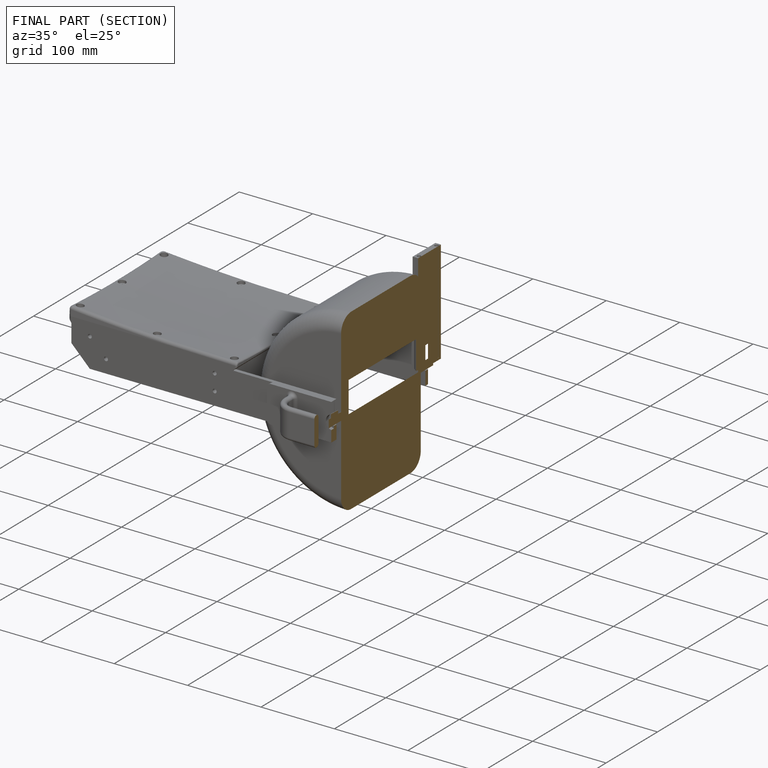
[diagram: finished part — half-section view (interior)]
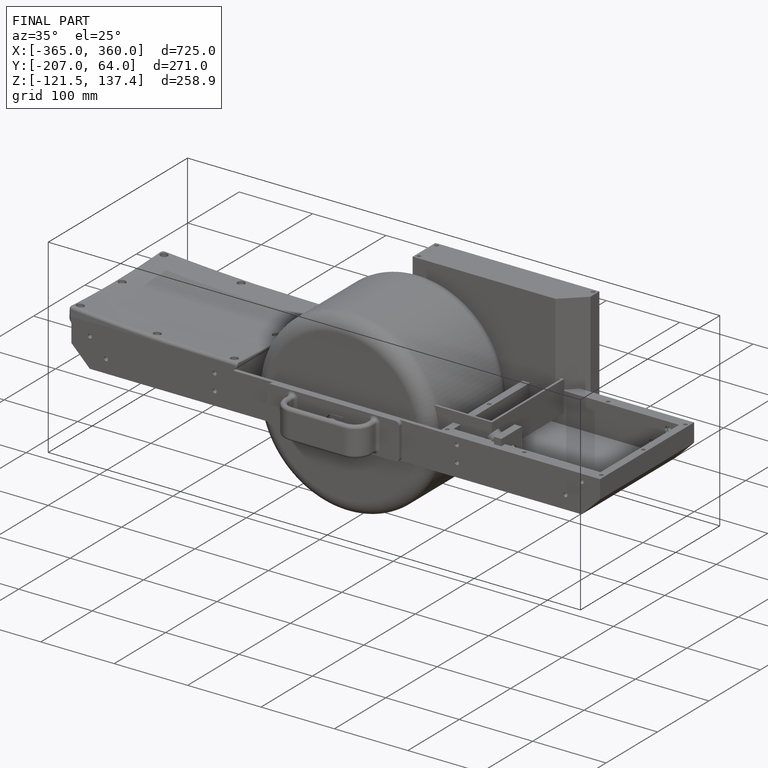
[diagram: finished part — iso view with bounding-box wireframe]
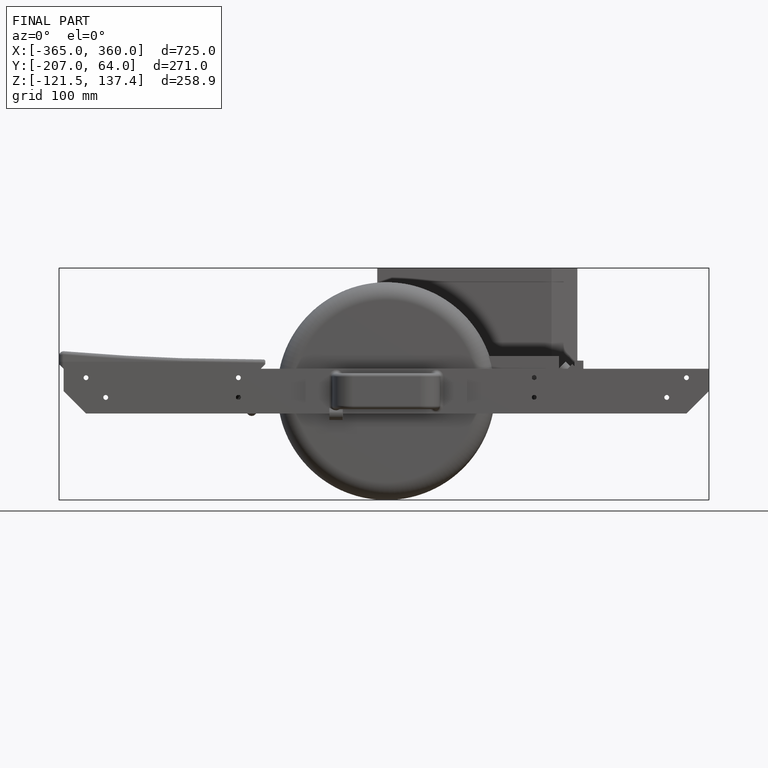
[diagram: finished part — front view with bounding-box wireframe]
